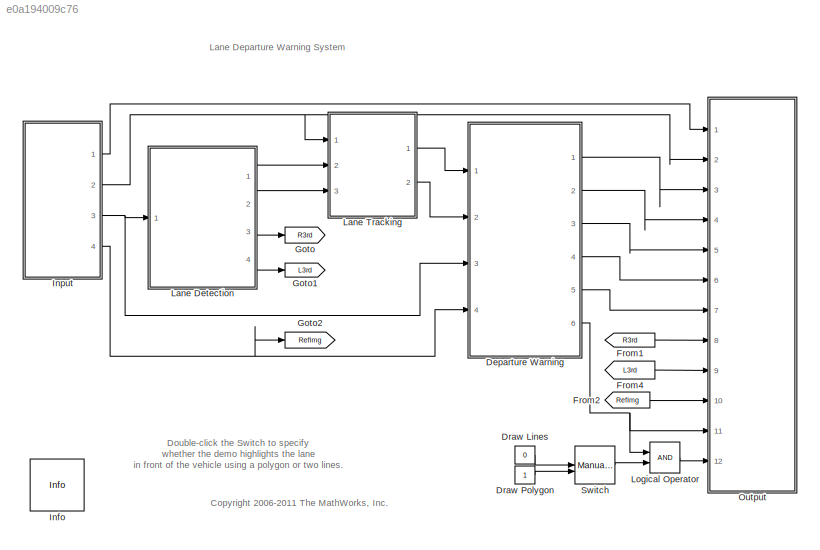
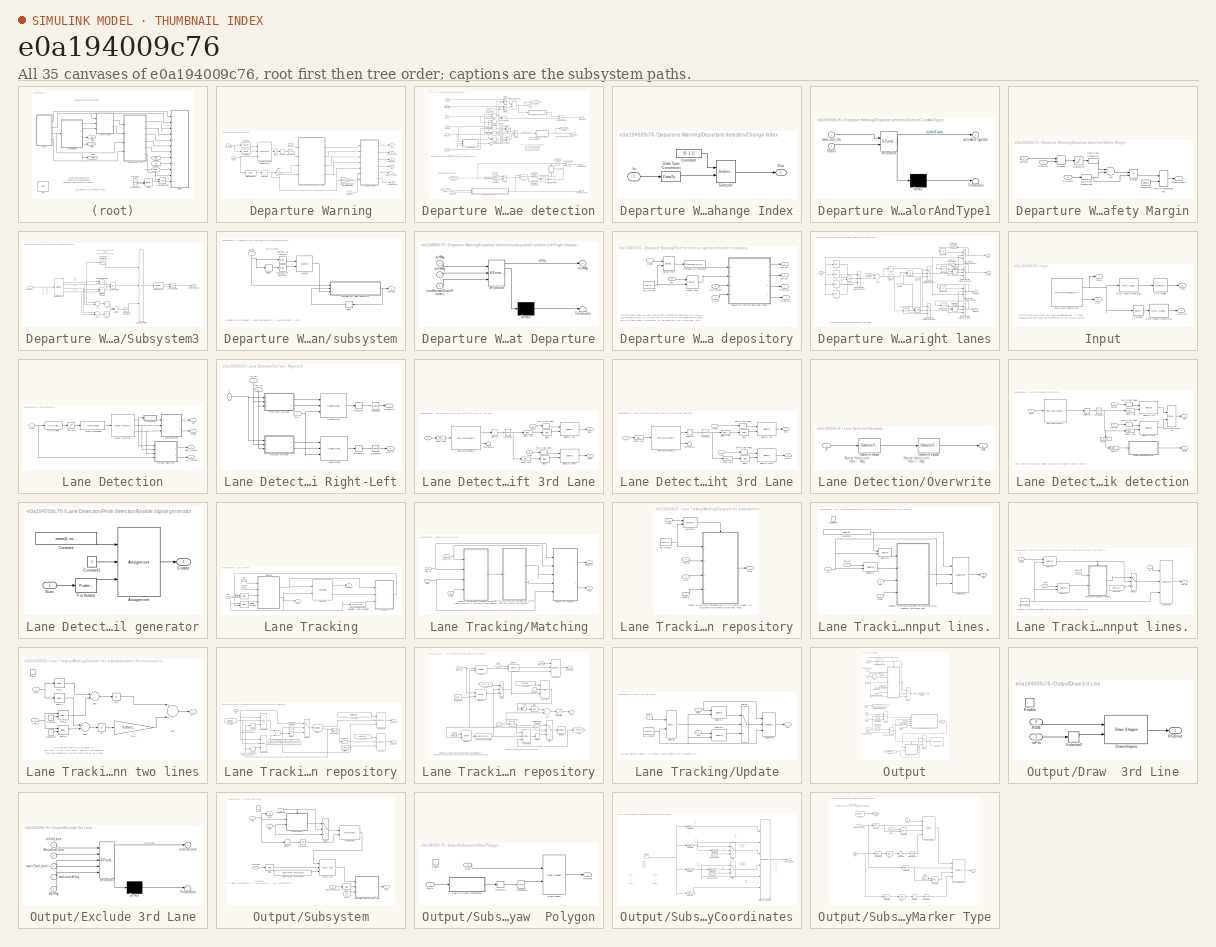
[diagram: thumbnail index - all 35 canvases of the model, root first then tree order]
MODEL slx_e0a194009c76
KIND model
CONFIG AbsTol = auto
CONFIG EnableMultiTasking = on
CONFIG FixedStep = auto
CONFIG MaxStep = auto
CONFIG MinStep = auto
CONFIG RelTol = 1e-3
CONFIG SampleTimeConstraint = Unconstrained
CONFIG Solver = FixedStepDiscrete
CONFIG SolverName = FixedStepDiscrete
CONFIG StartTime = 0.0
CONFIG StopTime = inf
WORKSPACE source: MATLAB code (in-file)
WORKSPACE imgSize = [240 360]
WORKSPACE numRows = floor(imgSize(1)/2)
WORKSPACE numCols = imgSize(2)
WORKSPACE factor = sqrt(sum(imgSize.^2)) / sqrt(sum([240 360].^2))
WORKSPACE startIdxRho_R = floor(factor * 414)
WORKSPACE NumRhos_R = floor(factor * 11)
WORKSPACE startIdxTheta_R = 0
WORKSPACE NumThetas_R = 21
WORKSPACE neighborhood_R = [min(7,NumRhos_R), min(7,NumThetas_R)]
WORKSPACE startIdxRho_L = floor(factor * 379)
WORKSPACE NumRhos_L = floor(factor * 36)
WORKSPACE startIdxTheta_L = 145
WORKSPACE NumThetas_L = 21
WORKSPACE neighborhood_L = [min(7,NumRhos_L), min(7,NumThetas_L)]
WORKSPACE expLaneNum = 2
WORKSPACE maxLaneNum = 20
WORKSPACE angleNum = 180
WORKSPACE trackThreshold = 75
WORKSPACE frameFound = 5
WORKSPACE frameLost = 20
WORKSPACE neighborhood = [301, 81]
WORKSPACE thrWarn = 0.4
WORKSPACE distanceMetricWeight = 200
WORKSPACE code: load viprumbling.mat;
BLOCK [SubSystem] Departure Warning
  Ports = [4, 6]
  RequestExecContextInheritance = off
BLOCK [Bias] Departure Warning/Bias1
  Bias = -1
  SaturateOnIntegerOverflow = off
BLOCK [Outport] Departure Warning/ColorAndTypeIdx
  IconDisplay = Port number
  Port = 5
BLOCK [Reference] Departure Warning/Convert lines from Polar to Cartesian space  REF=visiontransforms/Hough Lines
  Ports = [3, 1]
  SourceBlock = visiontransforms/Hough Lines
  SourceProductBaseCode = VP
  SourceProductName = Computer Vision System Toolbox
  SourceType = Hough Lines
BLOCK [Inport] Departure Warning/Count
  IconDisplay = Port number
  Port = 2
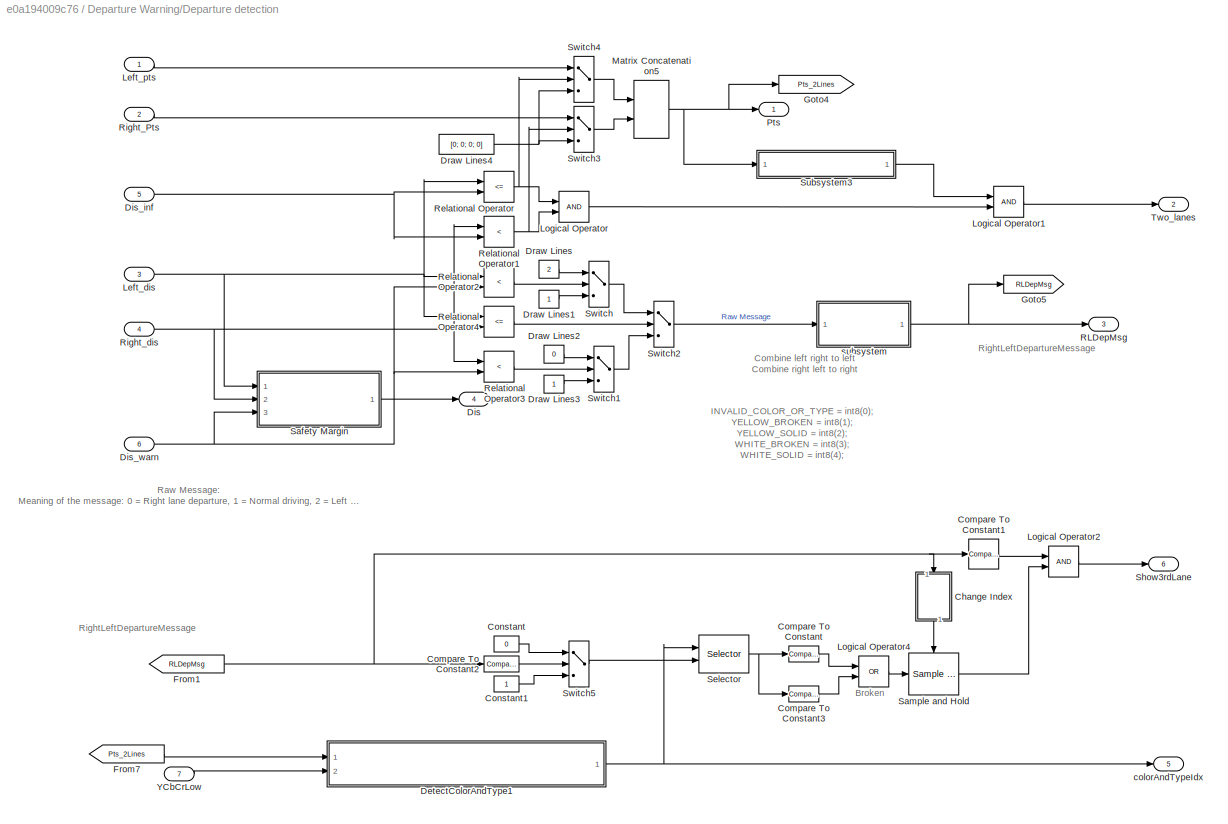
BLOCK [SubSystem] Departure Warning/Departure detection
  Ports = [7, 6]
  RequestExecContextInheritance = off
BLOCK [SubSystem] Departure Warning/Departure detection/Change Index
  Ports = [1, 1]
  RequestExecContextInheritance = off
BLOCK [Constant] Departure Warning/Departure detection/Change Index/Constant
  OutDataTypeStr = int32
  Value = [0 -1 1]
  VectorParams1D = off
BLOCK [DataTypeConversion] Departure Warning/Departure detection/Change Index/Data Type Conversion
  OutDataTypeStr = int32
BLOCK [Inport] Departure Warning/Departure detection/Change Index/In
  IconDisplay = Port number
BLOCK [Outport] Departure Warning/Departure detection/Change Index/Out
  IconDisplay = Port number
BLOCK [Selector] Departure Warning/Departure detection/Change Index/Selector
  IndexMode = Zero-based
  IndexOptions = Index vector (port)
  Indices = [1 3]
  InputPortWidth = 3
  OutputSizes = 1
  Ports = [2, 1]
BLOCK [Reference] Departure Warning/Departure detection/Compare To Constant  REF=simulink/Logic and Bit
Operations/Compare
To Constant
  Ports = [1, 1]
  SourceBlock = simulink/Logic and Bit\nOperations/Compare\nTo Constant
  SourceProductBaseCode = SL
  SourceProductName = Simulink
  SourceType = Compare To Constant
BLOCK [Reference] Departure Warning/Departure detection/Compare To Constant1  REF=simulink/Logic and Bit
Operations/Compare
To Constant
  Ports = [1, 1]
  SourceBlock = simulink/Logic and Bit\nOperations/Compare\nTo Constant
  SourceProductBaseCode = SL
  SourceProductName = Simulink
  SourceType = Compare To Constant
BLOCK [Reference] Departure Warning/Departure detection/Compare To Constant2  REF=simulink/Logic and Bit
Operations/Compare
To Constant
  Ports = [1, 1]
  SourceBlock = simulink/Logic and Bit\nOperations/Compare\nTo Constant
  SourceProductBaseCode = SL
  SourceProductName = Simulink
  SourceType = Compare To Constant
BLOCK [Reference] Departure Warning/Departure detection/Compare To Constant3  REF=simulink/Logic and Bit
Operations/Compare
To Constant
  Ports = [1, 1]
  SourceBlock = simulink/Logic and Bit\nOperations/Compare\nTo Constant
  SourceProductBaseCode = SL
  SourceProductName = Simulink
  SourceType = Compare To Constant
BLOCK [Constant] Departure Warning/Departure detection/Constant
  OutDataTypeStr = int8
  Value = 0
  VectorParams1D = off
BLOCK [Constant] Departure Warning/Departure detection/Constant1
  OutDataTypeStr = int8
  VectorParams1D = off
BLOCK [SubSystem] Departure Warning/Departure detection/DetectColorAndType1
  ErrorFcn = Stateflow.Translate.translate
  PermitHierarchicalResolution = ExplicitOnly
  Ports = [2, 1]
  RequestExecContextInheritance = off
  SFBlockType = MATLAB Function
  TreatAsAtomicUnit = on
BLOCK [Demux] Departure Warning/Departure detection/DetectColorAndType1/ Demux 
  Outputs = 1
  Ports = [1, 1]
BLOCK [S-Function] Departure Warning/Departure detection/DetectColorAndType1/ SFunction 
  EnableBusSupport = off
  FunctionName = sf_sfun
  PortCounts = [2 2]
  Ports = [2, 2]
  SFcnIsStateOwnerBlock = off
  SFunctionDeploymentMode = off
  Tag = Stateflow S-Function lane_departure_warning_system 4
BLOCK [Terminator] Departure Warning/Departure detection/DetectColorAndType1/ Terminator 
BLOCK [Inport] Departure Warning/Departure detection/DetectColorAndType1/YCbCr
  IconDisplay = Port number
  Port = 2
BLOCK [Outport] Departure Warning/Departure detection/DetectColorAndType1/colorAndTypeIdx
  IconDisplay = Port number
BLOCK [Inport] Departure Warning/Departure detection/DetectColorAndType1/twoLines_0b
  IconDisplay = Port number
BLOCK [Outport] Departure Warning/Departure detection/Dis
  IconDisplay = Port number
  Port = 4
BLOCK [Inport] Departure Warning/Departure detection/Dis_inf
  IconDisplay = Port number
  Port = 5
BLOCK [Inport] Departure Warning/Departure detection/Dis_warn
  IconDisplay = Port number
  Port = 6
BLOCK [Constant] Departure Warning/Departure detection/Draw Lines
  OutDataTypeStr = int8
  SampleTime = -1
  Value = 2
  VectorParams1D = off
BLOCK [Constant] Departure Warning/Departure detection/Draw Lines1
  OutDataTypeStr = int8
  SampleTime = -1
  VectorParams1D = off
BLOCK [Constant] Departure Warning/Departure detection/Draw Lines2
  OutDataTypeStr = int8
  SampleTime = -1
  Value = 0
  VectorParams1D = off
BLOCK [Constant] Departure Warning/Departure detection/Draw Lines3
  OutDataTypeStr = int8
  SampleTime = -1
  VectorParams1D = off
BLOCK [Constant] Departure Warning/Departure detection/Draw Lines4
  OutDataTypeStr = int32
  SampleTime = -1
  Value = [0; 0; 0; 0]
  VectorParams1D = off
BLOCK [From] Departure Warning/Departure detection/From1
  GotoTag = RLDepMsg
BLOCK [From] Departure Warning/Departure detection/From7
  GotoTag = Pts_2Lines
BLOCK [Goto] Departure Warning/Departure detection/Goto4
  GotoTag = Pts_2Lines
BLOCK [Goto] Departure Warning/Departure detection/Goto5
  GotoTag = RLDepMsg
BLOCK [Inport] Departure Warning/Departure detection/Left_dis
  IconDisplay = Port number
  Port = 3
BLOCK [Inport] Departure Warning/Departure detection/Left_pts
  IconDisplay = Port number
BLOCK [Logic] Departure Warning/Departure detection/Logical Operator
  AllPortsSameDT = off
  OutDataTypeStr = boolean
  Ports = [2, 1]
BLOCK [Logic] Departure Warning/Departure detection/Logical Operator1
  AllPortsSameDT = off
  OutDataTypeStr = boolean
  Ports = [2, 1]
BLOCK [Logic] Departure Warning/Departure detection/Logical Operator2
  AllPortsSameDT = off
  OutDataTypeStr = boolean
  Ports = [2, 1]
BLOCK [Logic] Departure Warning/Departure detection/Logical Operator4
  AllPortsSameDT = off
  Operator = OR
  OutDataTypeStr = boolean
  Ports = [2, 1]
BLOCK [Concatenate] Departure Warning/Departure detection/Matrix Concatenation5
  ConcatenateDimension = 2
  Mode = Multidimensional array
  Ports = [2, 1]
BLOCK [Outport] Departure Warning/Departure detection/Pts
  IconDisplay = Port number
BLOCK [Outport] Departure Warning/Departure detection/RLDepMsg
  IconDisplay = Port number
  Port = 3
BLOCK [RelationalOperator] Departure Warning/Departure detection/Relational Operator
  InputSameDT = off
  Operator = <=
  OutDataTypeStr = boolean
  Ports = [2, 1]
  ZeroCross = off
BLOCK [RelationalOperator] Departure Warning/Departure detection/Relational Operator1
  InputSameDT = off
  Operator = <
  OutDataTypeStr = boolean
  Ports = [2, 1]
  ZeroCross = off
BLOCK [RelationalOperator] Departure Warning/Departure detection/Relational Operator2
  InputSameDT = off
  Operator = <
  OutDataTypeStr = boolean
  Ports = [2, 1]
  ZeroCross = off
BLOCK [RelationalOperator] Departure Warning/Departure detection/Relational Operator3
  InputSameDT = off
  Operator = <
  OutDataTypeStr = boolean
  Ports = [2, 1]
  ZeroCross = off
BLOCK [RelationalOperator] Departure Warning/Departure detection/Relational Operator4
  InputSameDT = off
  Operator = <=
  OutDataTypeStr = boolean
  Ports = [2, 1]
  ZeroCross = off
BLOCK [Inport] Departure Warning/Departure detection/Right_Pts
  IconDisplay = Port number
  Port = 2
BLOCK [Inport] Departure Warning/Departure detection/Right_dis
  IconDisplay = Port number
  Port = 4
BLOCK [SubSystem] Departure Warning/Departure detection/Safety Margin
  Ports = [3, 1]
  RequestExecContextInheritance = off
BLOCK [Sum] Departure Warning/Departure detection/Safety Margin/Add
  InputSameDT = off
  Inputs = +-
  OutDataTypeStr = Inherit: Inherit via internal rule
  Ports = [2, 1]
  SaturateOnIntegerOverflow = off
BLOCK [DataTypeConversion] Departure Warning/Departure detection/Safety Margin/Data Type Conversion
  OutDataTypeStr = single
BLOCK [DataTypeConversion] Departure Warning/Departure detection/Safety Margin/Data Type Conversion1
  OutDataTypeStr = single
BLOCK [Inport] Departure Warning/Departure detection/Safety Margin/Dis_warn
  IconDisplay = Port number
  Port = 3
BLOCK [Product] Departure Warning/Departure detection/Safety Margin/Divide
  InputSameDT = off
  Inputs = */
  OutDataTypeStr = Inherit: Inherit via internal rule
  Ports = [2, 1]
  RndMeth = Floor
  SaturateOnIntegerOverflow = off
BLOCK [Inport] Departure Warning/Departure detection/Safety Margin/Left_dis
  IconDisplay = Port number
BLOCK [Concatenate] Departure Warning/Departure detection/Safety Margin/Matrix Concatenation2
  Ports = [2, 1]
BLOCK [MinMax] Departure Warning/Departure detection/Safety Margin/MinMax
  InputSameDT = off
  Inputs = 2
  Ports = [2, 1]
  SaturateOnIntegerOverflow = off
BLOCK [Inport] Departure Warning/Departure detection/Safety Margin/Right_dis
  IconDisplay = Port number
  Port = 2
BLOCK [Outport] Departure Warning/Departure detection/Safety Margin/SafetyMargin
  IconDisplay = Port number
BLOCK [Saturate] Departure Warning/Departure detection/Safety Margin/Saturation
  InputPortMap = u0
  LowerLimit = 0
  Ports = [1, 1]
  UpperLimit = numCols/2
BLOCK [Constant] Departure Warning/Departure detection/Safety Margin/min_safety
  Value = single(0)
  VectorParams1D = off
BLOCK [Reference] Departure Warning/Departure detection/Sample and Hold  REF=dspsigops/Sample
and Hold
  Ports = [1, 1, 0, 1]
  SourceBlock = dspsigops/Sample\nand Hold
  SourceProductBaseCode = DS
  SourceProductName = DSP System Toolbox
  SourceType = Sample and Hold
BLOCK [Selector] Departure Warning/Departure detection/Selector
  IndexMode = Zero-based
  IndexOptions = Index vector (port)
  Indices = [1 3]
  InputPortWidth = 2
  OutputSizes = 1
  Ports = [2, 1]
BLOCK [Outport] Departure Warning/Departure detection/Show3rdLane
  IconDisplay = Port number
  Port = 6
BLOCK [SubSystem] Departure Warning/Departure detection/Subsystem3
  Ports = [1, 1]
  RequestExecContextInheritance = off
BLOCK [Abs] Departure Warning/Departure detection/Subsystem3/Abs
  SaturateOnIntegerOverflow = off
BLOCK [Abs] Departure Warning/Departure detection/Subsystem3/Abs1
  SaturateOnIntegerOverflow = off
BLOCK [Sum] Departure Warning/Departure detection/Subsystem3/Add
  InputSameDT = off
  Inputs = +-
  OutDataTypeStr = Inherit: Inherit via internal rule
  Ports = [2, 1]
  SaturateOnIntegerOverflow = off
BLOCK [Sum] Departure Warning/Departure detection/Subsystem3/Add1
  InputSameDT = off
  Inputs = +-
  OutDataTypeStr = Inherit: Inherit via internal rule
  Ports = [2, 1]
  SaturateOnIntegerOverflow = off
BLOCK [Sum] Departure Warning/Departure detection/Subsystem3/Add2
  InputSameDT = off
  OutDataTypeStr = Inherit: Inherit via internal rule
  Ports = [2, 1]
  SaturateOnIntegerOverflow = off
BLOCK [Reference] Departure Warning/Departure detection/Subsystem3/Compare To Constant1  REF=simulink/Logic and Bit
Operations/Compare
To Constant
  Ports = [1, 1]
  SourceBlock = simulink/Logic and Bit\nOperations/Compare\nTo Constant
  SourceProductBaseCode = SL
  SourceProductName = Simulink
  SourceType = Compare To Constant
BLOCK [Reference] Departure Warning/Departure detection/Subsystem3/Compare To Constant10  REF=simulink/Logic and Bit
Operations/Compare
To Constant
  Ports = [1, 1]
  SourceBlock = simulink/Logic and Bit\nOperations/Compare\nTo Constant
  SourceProductBaseCode = SL
  SourceProductName = Simulink
  SourceType = Compare To Constant
BLOCK [Logic] Departure Warning/Departure detection/Subsystem3/Logical Operator
  AllPortsSameDT = off
  OutDataTypeStr = boolean
  Ports = [2, 1]
BLOCK [Logic] Departure Warning/Departure detection/Subsystem3/Logical Operator7
  AllPortsSameDT = off
  Inputs = 3
  OutDataTypeStr = boolean
  Ports = [3, 1]
BLOCK [Logic] Departure Warning/Departure detection/Subsystem3/Logical Operator8
  AllPortsSameDT = off
  Operator = OR
  OutDataTypeStr = boolean
  Ports = [2, 1]
BLOCK [Reference] Departure Warning/Departure detection/Subsystem3/Multiport Selector  REF=dspindex/Multiport
Selector
  Ports = [1, 4]
  SourceBlock = dspindex/Multiport\nSelector
  SourceProductBaseCode = DS
  SourceProductName = DSP System Toolbox
  SourceType = Multiport Selector
BLOCK [Reference] Departure Warning/Departure detection/Subsystem3/Multiport Selector1  REF=dspindex/Multiport
Selector
  Ports = [1, 2]
  SourceBlock = dspindex/Multiport\nSelector
  SourceProductBaseCode = DS
  SourceProductName = DSP System Toolbox
  SourceType = Multiport Selector
BLOCK [RelationalOperator] Departure Warning/Departure detection/Subsystem3/Relational Operator
  InputSameDT = off
  Operator = ~=
  OutDataTypeStr = boolean
  Ports = [2, 1]
BLOCK [RelationalOperator] Departure Warning/Departure detection/Subsystem3/Relational Operator1
  InputSameDT = off
  Operator = ~=
  OutDataTypeStr = boolean
  Ports = [2, 1]
BLOCK [Outport] Departure Warning/Departure detection/Subsystem3/isBothValidLane
  IconDisplay = Port number
BLOCK [Inport] Departure Warning/Departure detection/Subsystem3/twoLanes
  IconDisplay = Port number
BLOCK [Switch] Departure Warning/Departure detection/Switch
  Criteria = u2 ~= 0
  InputSameDT = off
  SaturateOnIntegerOverflow = off
BLOCK [Switch] Departure Warning/Departure detection/Switch1
  Criteria = u2 ~= 0
  InputSameDT = off
  SaturateOnIntegerOverflow = off
BLOCK [Switch] Departure Warning/Departure detection/Switch2
  Criteria = u2 ~= 0
  InputSameDT = off
  SaturateOnIntegerOverflow = off
BLOCK [Switch] Departure Warning/Departure detection/Switch3
  Criteria = u2 ~= 0
  InputSameDT = off
  SaturateOnIntegerOverflow = off
  ZeroCross = off
BLOCK [Switch] Departure Warning/Departure detection/Switch4
  Criteria = u2 ~= 0
  InputSameDT = off
  SaturateOnIntegerOverflow = off
  ZeroCross = off
BLOCK [Switch] Departure Warning/Departure detection/Switch5
  Criteria = u2 ~= 0
  InputSameDT = off
  SaturateOnIntegerOverflow = off
  ZeroCross = off
BLOCK [Outport] Departure Warning/Departure detection/Two_lanes
  IconDisplay = Port number
  Port = 2
BLOCK [Inport] Departure Warning/Departure detection/YCbCrLow
  IconDisplay = Port number
  Port = 7
BLOCK [Outport] Departure Warning/Departure detection/colorAndTypeIdx
  IconDisplay = Port number
  Port = 5
BLOCK [SubSystem] Departure Warning/Departure detection/subsystem
  Ports = [1, 1]
  RequestExecContextInheritance = off
BLOCK [SubSystem] Departure Warning/Departure detection/subsystem/Combine Left Right Departure
  ErrorFcn = Stateflow.Translate.translate
  PermitHierarchicalResolution = ExplicitOnly
  Ports = [3, 1]
  RequestExecContextInheritance = off
  SFBlockType = MATLAB Function
  TreatAsAtomicUnit = on
BLOCK [Demux] Departure Warning/Departure detection/subsystem/Combine Left Right Departure/ Demux 
  Outputs = 1
  Ports = [1, 1]
BLOCK [S-Function] Departure Warning/Departure detection/subsystem/Combine Left Right Departure/ SFunction 
  EnableBusSupport = off
  FunctionName = sf_sfun
  PortCounts = [3 2]
  Ports = [3, 2]
  SFcnIsStateOwnerBlock = off
  SFunctionDeploymentMode = off
  Tag = Stateflow S-Function lane_departure_warning_system 2
BLOCK [Terminator] Departure Warning/Departure detection/subsystem/Combine Left Right Departure/ Terminator 
BLOCK [Inport] Departure Warning/Departure detection/subsystem/Combine Left Right Departure/curMsg
  IconDisplay = Port number
BLOCK [Inport] Departure Warning/Departure detection/subsystem/Combine Left Right Departure/numNormalDrivenFrames
  IconDisplay = Port number
  Port = 3
BLOCK [Outport] Departure Warning/Departure detection/subsystem/Combine Left Right Departure/outMsg
  IconDisplay = Port number
BLOCK [Inport] Departure Warning/Departure detection/subsystem/Combine Left Right Departure/prevMsg
  IconDisplay = Port number
  Port = 2
BLOCK [Reference] Departure Warning/Departure detection/subsystem/Compare To Constant  REF=simulink/Logic and Bit
Operations/Compare
To Constant
  Ports = [1, 1]
  SourceBlock = simulink/Logic and Bit\nOperations/Compare\nTo Constant
  SourceProductBaseCode = SL
  SourceProductName = Simulink
  SourceType = Compare To Constant
BLOCK [Reference] Departure Warning/Departure detection/subsystem/Compare To Constant1  REF=simulink/Logic and Bit
Operations/Compare
To Constant
  Ports = [1, 1]
  SourceBlock = simulink/Logic and Bit\nOperations/Compare\nTo Constant
  SourceProductBaseCode = SL
  SourceProductName = Simulink
  SourceType = Compare To Constant
BLOCK [Reference] Departure Warning/Departure detection/subsystem/Counter  REF=dspswit3/Counter
  Ports = [2, 1]
  SourceBlock = dspswit3/Counter
  SourceProductBaseCode = DS
  SourceProductName = DSP System Toolbox
  SourceType = Counter
BLOCK [Delay] Departure Warning/Departure detection/subsystem/Delay
  DelayLength = 1
  InitialCondition = int8(-1)
  InputPortMap = u0
  Ports = [1, 1]
  UseCircularBuffer = on
  UserDataPersistent = on
BLOCK [Delay] Departure Warning/Departure detection/subsystem/Delay1
  DelayLength = 1
  InitialCondition = int8(-1)
  InputPortMap = u0
  Ports = [1, 1]
  UseCircularBuffer = on
  UserDataPersistent = on
BLOCK [Inport] Departure Warning/Departure detection/subsystem/inMsg
  IconDisplay = Port number
BLOCK [Outport] Departure Warning/Departure detection/subsystem/outMsg
  IconDisplay = Port number
BLOCK [Outport] Departure Warning/Dis
  IconDisplay = Port number
  Port = 3
BLOCK [Gain] Departure Warning/Distance threshold for departure warning
  Gain = thrWarn
  ParamDataTypeStr = Inherit: Inherit via internal rule
  SaturateOnIntegerOverflow = off
BLOCK [SubSystem] Departure Warning/Find the left and right lanes from the depository
  Ports = [4, 4]
  RequestExecContextInheritance = off
  TreatAsAtomicUnit = on
BLOCK [Reference] Departure Warning/Find the left and right lanes from the depository/Compare To Constant2  REF=simulink/Logic and Bit
Operations/Compare
To Constant
  Ports = [1, 1]
  SourceBlock = simulink/Logic and Bit\nOperations/Compare\nTo Constant
  SourceProductBaseCode = SL
  SourceProductName = Simulink
  SourceType = Compare To Constant
BLOCK [Inport] Departure Warning/Find the left and right lanes from the depository/Count
  IconDisplay = Port number
BLOCK [Inport] Departure Warning/Find the left and right lanes from the depository/Dis_inf
  IconDisplay = Port number
  Port = 4
BLOCK [ForIterator] Departure Warning/Find the left and right lanes from the depository/For Iterator
  IterationLimit = maxLaneNum
  Ports = [0, 1]
  ResetStates = reset
BLOCK [Inport] Departure Warning/Find the left and right lanes from the depository/Half_width
  IconDisplay = Port number
  Port = 3
BLOCK [Outport] Departure Warning/Find the left and right lanes from the depository/Left_dis
  IconDisplay = Port number
  Port = 3
BLOCK [Outport] Departure Warning/Find the left and right lanes from the depository/Left_pts
  IconDisplay = Port number
BLOCK [Inport] Departure Warning/Find the left and right lanes from the depository/Pts
  IconDisplay = Port number
  Port = 2
BLOCK [Outport] Departure Warning/Find the left and right lanes from the depository/Right_dis
  IconDisplay = Port number
  Port = 4
BLOCK [Outport] Departure Warning/Find the left and right lanes from the depository/Right_pts
  IconDisplay = Port number
  Port = 2
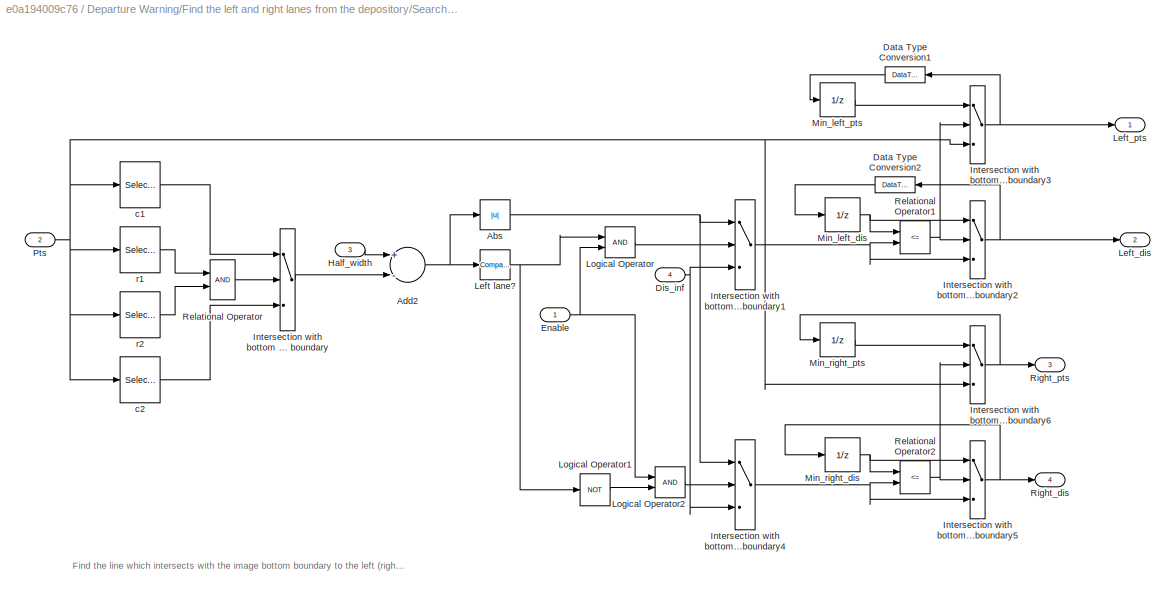
BLOCK [SubSystem] Departure Warning/Find the left and right lanes from the depository/Search for the left and right lanes
  Ports = [4, 4]
  RequestExecContextInheritance = off
BLOCK [Abs] Departure Warning/Find the left and right lanes from the depository/Search for the left and right lanes/Abs
  SaturateOnIntegerOverflow = off
BLOCK [Sum] Departure Warning/Find the left and right lanes from the depository/Search for the left and right lanes/Add2
  InputSameDT = off
  Inputs = +-
  OutDataTypeStr = Inherit: Inherit via internal rule
  Ports = [2, 1]
  SaturateOnIntegerOverflow = off
BLOCK [DataTypeConversion] Departure Warning/Find the left and right lanes from the depository/Search for the left and right lanes/Data Type Conversion1
  OutDataTypeStr = int32
BLOCK [DataTypeConversion] Departure Warning/Find the left and right lanes from the depository/Search for the left and right lanes/Data Type Conversion2
  OutDataTypeStr = int32
BLOCK [Inport] Departure Warning/Find the left and right lanes from the depository/Search for the left and right lanes/Dis_inf
  IconDisplay = Port number
  Port = 4
BLOCK [Inport] Departure Warning/Find the left and right lanes from the depository/Search for the left and right lanes/Enable
  IconDisplay = Port number
BLOCK [Inport] Departure Warning/Find the left and right lanes from the depository/Search for the left and right lanes/Half_width
  IconDisplay = Port number
  Port = 3
BLOCK [Switch] Departure Warning/Find the left and right lanes from the depository/Search for the left and right lanes/Intersection with bottom image boundary
  Criteria = u2 ~= 0
  InputSameDT = off
  SaturateOnIntegerOverflow = off
  ZeroCross = off
BLOCK [Switch] Departure Warning/Find the left and right lanes from the depository/Search for the left and right lanes/Intersection with bottom image boundary1
  Criteria = u2 ~= 0
  InputSameDT = off
  SaturateOnIntegerOverflow = off
  ZeroCross = off
BLOCK [Switch] Departure Warning/Find the left and right lanes from the depository/Search for the left and right lanes/Intersection with bottom image boundary2
  Criteria = u2 ~= 0
  InputSameDT = off
  SaturateOnIntegerOverflow = off
  ZeroCross = off
BLOCK [Switch] Departure Warning/Find the left and right lanes from the depository/Search for the left and right lanes/Intersection with bottom image boundary3
  Criteria = u2 ~= 0
  InputSameDT = off
  SaturateOnIntegerOverflow = off
  ZeroCross = off
BLOCK [Switch] Departure Warning/Find the left and right lanes from the depository/Search for the left and right lanes/Intersection with bottom image boundary4
  Criteria = u2 ~= 0
  InputSameDT = off
  SaturateOnIntegerOverflow = off
  ZeroCross = off
BLOCK [Switch] Departure Warning/Find the left and right lanes from the depository/Search for the left and right lanes/Intersection with bottom image boundary5
  Criteria = u2 ~= 0
  InputSameDT = off
  SaturateOnIntegerOverflow = off
  ZeroCross = off
BLOCK [Switch] Departure Warning/Find the left and right lanes from the depository/Search for the left and right lanes/Intersection with bottom image boundary6
  Criteria = u2 ~= 0
  InputSameDT = off
  SaturateOnIntegerOverflow = off
  ZeroCross = off
BLOCK [Reference] Departure Warning/Find the left and right lanes from the depository/Search for the left and right lanes/Left lane?  REF=simulink/Logic and Bit
Operations/Compare
To Zero
  Ports = [1, 1]
  SourceBlock = simulink/Logic and Bit\nOperations/Compare\nTo Zero
  SourceProductBaseCode = SL
  SourceProductName = Simulink
  SourceType = Compare To Zero
BLOCK [Outport] Departure Warning/Find the left and right lanes from the depository/Search for the left and right lanes/Left_dis
  IconDisplay = Port number
  Port = 2
BLOCK [Outport] Departure Warning/Find the left and right lanes from the depository/Search for the left and right lanes/Left_pts
  IconDisplay = Port number
BLOCK [Logic] Departure Warning/Find the left and right lanes from the depository/Search for the left and right lanes/Logical Operator
  AllPortsSameDT = off
  OutDataTypeStr = boolean
  Ports = [2, 1]
BLOCK [Logic] Departure Warning/Find the left and right lanes from the depository/Search for the left and right lanes/Logical Operator1
  AllPortsSameDT = off
  Operator = NOT
  OutDataTypeStr = boolean
  Ports = [1, 1]
BLOCK [Logic] Departure Warning/Find the left and right lanes from the depository/Search for the left and right lanes/Logical Operator2
  AllPortsSameDT = off
  OutDataTypeStr = boolean
  Ports = [2, 1]
BLOCK [UnitDelay] Departure Warning/Find the left and right lanes from the depository/Search for the left and right lanes/Min_left_dis
  InitialCondition = single(intmax('int16'))
  SampleTime = -1
BLOCK [UnitDelay] Departure Warning/Find the left and right lanes from the depository/Search for the left and right lanes/Min_left_pts
  InitialCondition = [0; 0; 0; 0]
  SampleTime = -1
BLOCK [UnitDelay] Departure Warning/Find the left and right lanes from the depository/Search for the left and right lanes/Min_right_dis
  InitialCondition = single(intmax('int16'))
  SampleTime = -1
BLOCK [UnitDelay] Departure Warning/Find the left and right lanes from the depository/Search for the left and right lanes/Min_right_pts
  InitialCondition = [0; 0; 0; 0]
  SampleTime = -1
BLOCK [Inport] Departure Warning/Find the left and right lanes from the depository/Search for the left and right lanes/Pts
  IconDisplay = Port number
  Port = 2
BLOCK [RelationalOperator] Departure Warning/Find the left and right lanes from the depository/Search for the left and right lanes/Relational Operator
  InputSameDT = off
  OutDataTypeStr = boolean
  Ports = [2, 1]
  ZeroCross = off
BLOCK [RelationalOperator] Departure Warning/Find the left and right lanes from the depository/Search for the left and right lanes/Relational Operator1
  InputSameDT = off
  Operator = <=
  OutDataTypeStr = boolean
  Ports = [2, 1]
BLOCK [RelationalOperator] Departure Warning/Find the left and right lanes from the depository/Search for the left and right lanes/Relational Operator2
  InputSameDT = off
  Operator = <=
  OutDataTypeStr = boolean
  Ports = [2, 1]
BLOCK [Outport] Departure Warning/Find the left and right lanes from the depository/Search for the left and right lanes/Right_dis
  IconDisplay = Port number
  Port = 4
BLOCK [Outport] Departure Warning/Find the left and right lanes from the depository/Search for the left and right lanes/Right_pts
  IconDisplay = Port number
  Port = 3
BLOCK [Selector] Departure Warning/Find the left and right lanes from the depository/Search for the left and right lanes/c1
  IndexOptions = Index vector (dialog)
  Indices = 2
  InputPortWidth = 4
  OutputSizes = 1
  Ports = [1, 1]
BLOCK [Selector] Departure Warning/Find the left and right lanes from the depository/Search for the left and right lanes/c2
  IndexOptions = Index vector (dialog)
  Indices = 4
  InputPortWidth = 4
  OutputSizes = 1
  Ports = [1, 1]
BLOCK [Selector] Departure Warning/Find the left and right lanes from the depository/Search for the left and right lanes/r1
  IndexOptions = Index vector (dialog)
  Indices = 1
  InputPortWidth = 4
  OutputSizes = 1
  Ports = [1, 1]
BLOCK [Selector] Departure Warning/Find the left and right lanes from the depository/Search for the left and right lanes/r2
  IndexOptions = Index vector (dialog)
  Indices = 3
  InputPortWidth = 4
  OutputSizes = 1
  Ports = [1, 1]
BLOCK [Selector] Departure Warning/Find the left and right lanes from the depository/select rho1
  IndexOptions = Select all,Index vector (port)
  Indices = -1,-1
  InputPortWidth = maxLaneNum
  NumberOfDimensions = 2
  OutputSizes = 1
  Ports = [2, 1]
BLOCK [Selector] Departure Warning/Find the left and right lanes from the depository/select rho5
  IndexOptions = Select all,Index vector (port)
  Indices = -1,-1
  InputPortWidth = maxLaneNum
  NumberOfDimensions = 2
  OutputSizes = 1
  Ports = [2, 1]
BLOCK [Inport] Departure Warning/ILow
  IconDisplay = Port number
  Port = 3
BLOCK [Outport] Departure Warning/Message
  IconDisplay = Port number
  Port = 2
BLOCK [Outport] Departure Warning/Pts
  IconDisplay = Port number
BLOCK [Inport] Departure Warning/Repository
  IconDisplay = Port number
BLOCK [Selector] Departure Warning/Selector1
  IndexOptions = Select all,Index vector (dialog)
  Indices = [2 1],[2 1 4 3]
  InputPortWidth = 3
  NumberOfDimensions = 2
  OutputSizes = 1,1
  Ports = [1, 1]
BLOCK [Outport] Departure Warning/Show3rdLane
  IconDisplay = Port number
  Port = 4
BLOCK [Math] Departure Warning/Transpose
  Operator = transpose
  Ports = [1, 1]
BLOCK [Outport] Departure Warning/TwoLanesFlag
  IconDisplay = Port number
  Port = 6
BLOCK [Probe] Departure Warning/Width of the image
  Ports = [1, 1]
  ProbeComplexSignal = off
  ProbeDimensionsDataType = int32
  ProbeSampleTime = off
  ProbeSignalDimensions = on
  ProbeWidth = off
BLOCK [Inport] Departure Warning/YCbCrLow
  IconDisplay = Port number
  Port = 4
BLOCK [Gain] Departure Warning/rho_1
  Gain = 0.5
  ParamDataTypeStr = Inherit: Inherit via internal rule
  SaturateOnIntegerOverflow = off
BLOCK [Selector] Departure Warning/select rho1
  IndexOptions = Index vector (dialog)
  Indices = 2
  InputPortWidth = 2
  OutputSizes = 1
  Ports = [1, 1]
BLOCK [Selector] Departure Warning/select rho2
  IndexOptions = Index vector (dialog),Select all
  Indices = 1,-1
  InputPortWidth = maxLaneNum
  NumberOfDimensions = 2
  OutputSizes = 1
  Ports = [1, 1]
BLOCK [Selector] Departure Warning/select rho5
  IndexOptions = Index vector (dialog),Select all
  Indices = 2,-1
  InputPortWidth = maxLaneNum
  NumberOfDimensions = 2
  OutputSizes = 1
  Ports = [1, 1]
BLOCK [Constant] Draw Lines
  OutDataTypeStr = boolean
  Value = 0
  VectorParams1D = off
BLOCK [Constant] Draw Polygon
  OutDataTypeStr = boolean
  VectorParams1D = off
BLOCK [From] From1
  GotoTag = R3rd
BLOCK [From] From2
  GotoTag = RefImg
BLOCK [From] From4
  GotoTag = L3rd
BLOCK [Goto] Goto
  GotoTag = R3rd
BLOCK [Goto] Goto1
  GotoTag = L3rd
BLOCK [Goto] Goto2
  GotoTag = RefImg
BLOCK [Reference] Info  REF=vipmisc/Info
  Ports = []
  SourceBlock = vipmisc/Info
  SourceProductBaseCode = VP
  SourceProductName = Computer Vision System Toolbox
  SourceType = Info
BLOCK [SubSystem] Input
  Ports = [0, 4]
  RequestExecContextInheritance = off
BLOCK [Reference] Input/Clip image  REF=dspmtrx3/Submatrix
  Ports = [1, 1]
  SourceBlock = dspmtrx3/Submatrix
  SourceProductBaseCode = DS
  SourceProductName = DSP System Toolbox
  SourceType = Submatrix
BLOCK [Reference] Input/Color Space Conversion  REF=visionconversions/Color Space
 Conversion
  Ports = [1, 1]
  SourceBlock = visionconversions/Color Space\n Conversion
  SourceProductBaseCode = VP
  SourceProductName = Computer Vision System Toolbox
  SourceType = Color Space Conversion
BLOCK [Reference] Input/Color Space Conversion1  REF=visionconversions/Color Space
 Conversion
  Ports = [1, 1]
  SourceBlock = visionconversions/Color Space\n Conversion
  SourceProductBaseCode = VP
  SourceProductName = Computer Vision System Toolbox
  SourceType = Color Space Conversion
BLOCK [Outport] Input/EOF
  IconDisplay = Port number
  Port = 2
BLOCK [Reference] Input/From Multimedia File1  REF=dspvision/From Multimedia File
  Ports = [0, 2]
  SourceBlock = dspvision/From Multimedia File
  SourceProductBaseCode = VP
  SourceProductName = Computer Vision System Toolbox
  SourceType = From Multimedia File
BLOCK [Outport] Input/ILow
  IconDisplay = Port number
  Port = 3
BLOCK [Outport] Input/RGB
  IconDisplay = Port number
BLOCK [Selector] Input/Selector
  IndexOptions = Index vector (dialog),Select all,Select all
  Indices = (numRows+1):imgSize(1),1,2
  InputPortWidth = 3
  NumberOfDimensions = 3
  OutputSizes = 1,1,1
  Ports = [1, 1]
BLOCK [Outport] Input/YCbCrLow
  IconDisplay = Port number
  Port = 4
BLOCK [SubSystem] Lane Detection
  Ports = [1, 4]
  RequestExecContextInheritance = off
BLOCK [Reference] Lane Detection/2-D FIR Filter  REF=visionfilter/2-D FIR Filter
  Ports = [1, 1]
  SourceBlock = visionfilter/2-D FIR Filter
  SourceProductBaseCode = VP
  SourceProductName = Computer Vision System Toolbox
  SourceType = 2-D FIR Filter
BLOCK [SubSystem] Lane Detection/3rd lane: Right-Left
  Ports = [4, 2]
  RequestExecContextInheritance = off
BLOCK [SubSystem] Lane Detection/3rd lane: Right-Left/Find Left 3rd Lane
  Ports = [3, 2]
  RequestExecContextInheritance = off
BLOCK [Bias] Lane Detection/3rd lane: Right-Left/Find Left 3rd Lane/Bias2
  Bias = startIdxRho_L
  SaturateOnIntegerOverflow = off
BLOCK [Bias] Lane Detection/3rd lane: Right-Left/Find Left 3rd Lane/Bias3
  Bias = startIdxTheta_L
  SaturateOnIntegerOverflow = off
BLOCK [Reference] Lane Detection/3rd lane: Right-Left/Find Left 3rd Lane/Find Local Maxima1  REF=visionstatistics/Find Local Maxima
  Ports = [1, 2]
  SourceBlock = visionstatistics/Find Local Maxima
  SourceProductBaseCode = VP
  SourceProductName = Computer Vision System Toolbox
  SourceType = Find Local Maxima
BLOCK [Inport] Lane Detection/3rd lane: Right-Left/Find Left 3rd Lane/H
  IconDisplay = Port number
BLOCK [Outport] Lane Detection/3rd lane: Right-Left/Find Left 3rd Lane/Rho
  IconDisplay = Port number
  Port = 2
BLOCK [Selector] Lane Detection/3rd lane: Right-Left/Find Left 3rd Lane/Selector rho
  IndexOptions = Select all,Index vector (port)
  Indices = 1,2
  InputPortWidth = 3
  NumberOfDimensions = 2
  OutputSizes = 1,1
  Ports = [2, 1]
BLOCK [Selector] Lane Detection/3rd lane: Right-Left/Find Left 3rd Lane/Selector theta
  IndexOptions = Select all,Index vector (port)
  Indices = 1,2
  InputPortWidth = 3
  NumberOfDimensions = 2
  OutputSizes = 1,1
  Ports = [2, 1]
BLOCK [Selector] Lane Detection/3rd lane: Right-Left/Find Left 3rd Lane/Selector1
  IndexOptions = Select all,Index vector (dialog)
  Indices = ,[2 1]
  InputPortWidth = 3
  NumberOfDimensions = 2
  OutputSizes = 1,1
  Ports = [1, 1]
BLOCK [Terminator] Lane Detection/3rd lane: Right-Left/Find Left 3rd Lane/Terminator1
BLOCK [Outport] Lane Detection/3rd lane: Right-Left/Find Left 3rd Lane/Theta
  IconDisplay = Port number
BLOCK [Math] Lane Detection/3rd lane: Right-Left/Find Left 3rd Lane/Transpose
  Operator = transpose
  Ports = [1, 1]
BLOCK [ZeroOrderHold] Lane Detection/3rd lane: Right-Left/Find Left 3rd Lane/Zero-Order Hold3
  SampleTime = -1
BLOCK [ZeroOrderHold] Lane Detection/3rd lane: Right-Left/Find Left 3rd Lane/Zero-Order Hold4
  SampleTime = -1
BLOCK [Inport] Lane Detection/3rd lane: Right-Left/Find Left 3rd Lane/rho_list
  IconDisplay = Port number
  Port = 3
BLOCK [Selector] Lane Detection/3rd lane: Right-Left/Find Left 3rd Lane/select rho4
  IndexOptions = Index vector (dialog),Select all
  Indices = 1,-1
  InputPortWidth = 3
  NumberOfDimensions = 2
  OutputSizes = 1
  Ports = [1, 1]
BLOCK [Selector] Lane Detection/3rd lane: Right-Left/Find Left 3rd Lane/select rho5
  IndexMode = Zero-based
  IndexOptions = Index vector (dialog),Index vector (dialog)
  Indices = startIdxRho_L:(startIdxRho_L+NumRhos_L-1),startIdxTheta_L:(startIdxTheta_L+NumThetas_L-1)
  InputPortWidth = 3
  NumberOfDimensions = 2
  OutputSizes = 1
  Ports = [1, 1]
BLOCK [Selector] Lane Detection/3rd lane: Right-Left/Find Left 3rd Lane/select rho7
  IndexOptions = Index vector (dialog),Select all
  Indices = 2,-1
  InputPortWidth = 3
  NumberOfDimensions = 2
  OutputSizes = 1
  Ports = [1, 1]
BLOCK [Inport] Lane Detection/3rd lane: Right-Left/Find Left 3rd Lane/th_list
  IconDisplay = Port number
  Port = 2
BLOCK [SubSystem] Lane Detection/3rd lane: Right-Left/Find Right 3rd Lane
  Ports = [3, 2]
  RequestExecContextInheritance = off
BLOCK [Bias] Lane Detection/3rd lane: Right-Left/Find Right 3rd Lane/Bias2
  Bias = startIdxRho_R
  SaturateOnIntegerOverflow = off
BLOCK [Bias] Lane Detection/3rd lane: Right-Left/Find Right 3rd Lane/Bias3
  Bias = startIdxTheta_R
  SaturateOnIntegerOverflow = off
BLOCK [Reference] Lane Detection/3rd lane: Right-Left/Find Right 3rd Lane/Find Local Maxima1  REF=visionstatistics/Find Local Maxima
  Ports = [1, 2]
  SourceBlock = visionstatistics/Find Local Maxima
  SourceProductBaseCode = VP
  SourceProductName = Computer Vision System Toolbox
  SourceType = Find Local Maxima
BLOCK [Inport] Lane Detection/3rd lane: Right-Left/Find Right 3rd Lane/H
  IconDisplay = Port number
BLOCK [Outport] Lane Detection/3rd lane: Right-Left/Find Right 3rd Lane/Rho
  IconDisplay = Port number
  Port = 2
BLOCK [Selector] Lane Detection/3rd lane: Right-Left/Find Right 3rd Lane/Selector rho
  IndexOptions = Select all,Index vector (port)
  Indices = 1,2
  InputPortWidth = 3
  NumberOfDimensions = 2
  OutputSizes = 1,1
  Ports = [2, 1]
BLOCK [Selector] Lane Detection/3rd lane: Right-Left/Find Right 3rd Lane/Selector theta
  IndexOptions = Select all,Index vector (port)
  Indices = 1,2
  InputPortWidth = 3
  NumberOfDimensions = 2
  OutputSizes = 1,1
  Ports = [2, 1]
BLOCK [Selector] Lane Detection/3rd lane: Right-Left/Find Right 3rd Lane/Selector2
  IndexOptions = Select all,Index vector (dialog)
  Indices = ,[2 1]
  InputPortWidth = 3
  NumberOfDimensions = 2
  OutputSizes = 1,1
  Ports = [1, 1]
BLOCK [Terminator] Lane Detection/3rd lane: Right-Left/Find Right 3rd Lane/Terminator1
BLOCK [Outport] Lane Detection/3rd lane: Right-Left/Find Right 3rd Lane/Theta
  IconDisplay = Port number
BLOCK [Math] Lane Detection/3rd lane: Right-Left/Find Right 3rd Lane/Transpose
  Operator = transpose
  Ports = [1, 1]
BLOCK [ZeroOrderHold] Lane Detection/3rd lane: Right-Left/Find Right 3rd Lane/Zero-Order Hold3
  SampleTime = -1
BLOCK [ZeroOrderHold] Lane Detection/3rd lane: Right-Left/Find Right 3rd Lane/Zero-Order Hold4
  SampleTime = -1
BLOCK [Inport] Lane Detection/3rd lane: Right-Left/Find Right 3rd Lane/rho_list
  IconDisplay = Port number
  Port = 3
BLOCK [Selector] Lane Detection/3rd lane: Right-Left/Find Right 3rd Lane/select rho4
  IndexOptions = Index vector (dialog),Select all
  Indices = 1,-1
  InputPortWidth = 3
  NumberOfDimensions = 2
  OutputSizes = 1
  Ports = [1, 1]
BLOCK [Selector] Lane Detection/3rd lane: Right-Left/Find Right 3rd Lane/select rho5
  IndexMode = Zero-based
  IndexOptions = Index vector (dialog),Index vector (dialog)
  Indices = startIdxRho_R:(startIdxRho_R+NumRhos_R-1),startIdxTheta_R:(startIdxTheta_R+NumThetas_R-1)
  InputPortWidth = 3
  NumberOfDimensions = 2
  OutputSizes = 1
  Ports = [1, 1]
BLOCK [Selector] Lane Detection/3rd lane: Right-Left/Find Right 3rd Lane/select rho7
  IndexOptions = Index vector (dialog),Select all
  Indices = 2,-1
  InputPortWidth = 3
  NumberOfDimensions = 2
  OutputSizes = 1
  Ports = [1, 1]
BLOCK [Inport] Lane Detection/3rd lane: Right-Left/Find Right 3rd Lane/th_list
  IconDisplay = Port number
  Port = 2
BLOCK [Inport] Lane Detection/3rd lane: Right-Left/H
  IconDisplay = Port number
BLOCK [Reference] Lane Detection/3rd lane: Right-Left/Hough Lines  REF=visiontransforms/Hough Lines
  Ports = [3, 1]
  SourceBlock = visiontransforms/Hough Lines
  SourceProductBaseCode = VP
  SourceProductName = Computer Vision System Toolbox
  SourceType = Hough Lines
BLOCK [Reference] Lane Detection/3rd lane: Right-Left/Hough Lines1  REF=visiontransforms/Hough Lines
  Ports = [3, 1]
  SourceBlock = visiontransforms/Hough Lines
  SourceProductBaseCode = VP
  SourceProductName = Computer Vision System Toolbox
  SourceType = Hough Lines
BLOCK [Outport] Lane Detection/3rd lane: Right-Left/LeftPts
  IconDisplay = Port number
  Port = 2
BLOCK [Inport] Lane Detection/3rd lane: Right-Left/Ref I
  IconDisplay = Port number
  Port = 4
BLOCK [Outport] Lane Detection/3rd lane: Right-Left/RightPts
  IconDisplay = Port number
BLOCK [Selector] Lane Detection/3rd lane: Right-Left/Selector1
  IndexOptions = Select all,Index vector (dialog)
  Indices = [2 1],[2 1 4 3]
  InputPortWidth = 3
  NumberOfDimensions = 2
  OutputSizes = 1,1
  Ports = [1, 1]
BLOCK [Selector] Lane Detection/3rd lane: Right-Left/Selector2
  IndexOptions = Select all,Index vector (dialog)
  Indices = [2 1],[2 1 4 3]
  InputPortWidth = 3
  NumberOfDimensions = 2
  OutputSizes = 1,1
  Ports = [1, 1]
BLOCK [Math] Lane Detection/3rd lane: Right-Left/Transpose
  Operator = transpose
  Ports = [1, 1]
BLOCK [Math] Lane Detection/3rd lane: Right-Left/Transpose1
  Operator = transpose
  Ports = [1, 1]
BLOCK [Inport] Lane Detection/3rd lane: Right-Left/rho_list
  IconDisplay = Port number
  Port = 3
BLOCK [Inport] Lane Detection/3rd lane: Right-Left/th_list
  IconDisplay = Port number
  Port = 2
BLOCK [Outport] Lane Detection/Enable
  IconDisplay = Port number
  Port = 2
BLOCK [Reference] Lane Detection/Hough Transform  REF=visiontransforms/Hough Transform
  Ports = [1, 3]
  SourceBlock = visiontransforms/Hough Transform
  SourceProductBaseCode = VP
  SourceProductName = Computer Vision System Toolbox
  SourceType = Hough Transform
BLOCK [Inport] Lane Detection/ILow
  IconDisplay = Port number
BLOCK [Reference] Lane Detection/Image thresholding  REF=visionconversions/Autothreshold
  Ports = [1, 1]
  SourceBlock = visionconversions/Autothreshold
  SourceProductBaseCode = VP
  SourceProductName = Computer Vision System Toolbox
  SourceType = Autothreshold
BLOCK [Outport] Lane Detection/Left_3rdLane
  IconDisplay = Port number
  Port = 4
BLOCK [Outport] Lane Detection/Line
  IconDisplay = Port number
BLOCK [SubSystem] Lane Detection/Overwrite
  Ports = [1, 1]
  RequestExecContextInheritance = off
BLOCK [Inport] Lane Detection/Overwrite/In
  IconDisplay = Port number
BLOCK [Outport] Lane Detection/Overwrite/Out
  IconDisplay = Port number
BLOCK [Reference] Lane Detection/Overwrite/Overwrite Values  REF=dspmtrx3/Overwrite Values
  Ports = [1, 1]
  SourceBlock = dspmtrx3/Overwrite Values
  SourceProductBaseCode = DS
  SourceProductName = DSP System Toolbox
  SourceType = Overwrite Values
BLOCK [Reference] Lane Detection/Overwrite/Overwrite Values1  REF=dspmtrx3/Overwrite Values
  Ports = [1, 1]
  SourceBlock = dspmtrx3/Overwrite Values
  SourceProductBaseCode = DS
  SourceProductName = DSP System Toolbox
  SourceType = Overwrite Values
BLOCK [SubSystem] Lane Detection/Peak detection
  Ports = [3, 2]
  RequestExecContextInheritance = off
BLOCK [Outport] Lane Detection/Peak detection/Enable
  IconDisplay = Port number
  Port = 2
BLOCK [SubSystem] Lane Detection/Peak detection/Enable signal generator
  Ports = [1, 1]
  RequestExecContextInheritance = off
  TreatAsAtomicUnit = on
BLOCK [Assignment] Lane Detection/Peak detection/Enable signal generator/Assignment
  IndexOptions = Assign all,Index vector (port)
  Indices = -1,1
  NumberOfDimensions = 2
  OutputSizes = 1,1
  Ports = [3, 1]
BLOCK [Constant] Lane Detection/Peak detection/Enable signal generator/Constant
  OutDataTypeStr = boolean
  Value = zeros(1, expLaneNum)
  VectorParams1D = off
BLOCK [Constant] Lane Detection/Peak detection/Enable signal generator/Constant1
  OutDataTypeStr = boolean
  VectorParams1D = off
BLOCK [Outport] Lane Detection/Peak detection/Enable signal generator/Enable
  IconDisplay = Port number
BLOCK [ForIterator] Lane Detection/Peak detection/Enable signal generator/For Iterator
  IterationSource = external
  Ports = [1, 1]
  ResetStates = reset
BLOCK [Inport] Lane Detection/Peak detection/Enable signal generator/Num
  IconDisplay = Port number
BLOCK [Reference] Lane Detection/Peak detection/Find Local Maxima  REF=visionstatistics/Find Local Maxima
  Ports = [1, 1]
  SourceBlock = visionstatistics/Find Local Maxima
  SourceProductBaseCode = VP
  SourceProductName = Computer Vision System Toolbox
  SourceType = Find Local Maxima
BLOCK [Inport] Lane Detection/Peak detection/Hough
  IconDisplay = Port number
BLOCK [Outport] Lane Detection/Peak detection/Line
  IconDisplay = Port number
BLOCK [Concatenate] Lane Detection/Peak detection/Matrix Concatenation3
  Mode = Multidimensional array
  Ports = [2, 1]
BLOCK [Probe] Lane Detection/Peak detection/Probe
  Ports = [1, 1]
  ProbeComplexSignal = off
  ProbeSampleTime = off
  ProbeSignalDimensions = on
  ProbeWidth = off
BLOCK [Inport] Lane Detection/Peak detection/Rho_list
  IconDisplay = Port number
  Port = 3
BLOCK [Selector] Lane Detection/Peak detection/Selector
  IndexOptions = Index vector (dialog),Index vector (dialog)
  Indices = 1,2
  InputPortWidth = 3
  NumberOfDimensions = 2
  OutputSizes = 1,1
  Ports = [1, 1]
BLOCK [Selector] Lane Detection/Peak detection/Selector rho
  IndexOptions = Select all,Index vector (port)
  Indices = 1,2
  InputPortWidth = 3
  NumberOfDimensions = 2
  OutputSizes = 1,1
  Ports = [2, 1]
BLOCK [Selector] Lane Detection/Peak detection/Selector theta
  IndexOptions = Select all,Index vector (port)
  Indices = 1,2
  InputPortWidth = 3
  NumberOfDimensions = 2
  OutputSizes = 1,1
  Ports = [2, 1]
BLOCK [Selector] Lane Detection/Peak detection/Selector1
  IndexOptions = Select all,Index vector (dialog)
  Indices = [2 1],[2 1]
  InputPortWidth = 3
  NumberOfDimensions = 2
  OutputSizes = 1,1
  Ports = [1, 1]
BLOCK [Inport] Lane Detection/Peak detection/Theta_list
  IconDisplay = Port number
  Port = 2
BLOCK [Math] Lane Detection/Peak detection/Transpose
  Operator = transpose
  Ports = [1, 1]
BLOCK [ZeroOrderHold] Lane Detection/Peak detection/Zero-Order Hold1
  SampleTime = -1
BLOCK [ZeroOrderHold] Lane Detection/Peak detection/Zero-Order Hold2
  SampleTime = -1
BLOCK [Selector] Lane Detection/Peak detection/select rho
  IndexOptions = Index vector (dialog),Select all
  Indices = 1,-1
  InputPortWidth = 3
  NumberOfDimensions = 2
  OutputSizes = 1
  Ports = [1, 1]
BLOCK [Selector] Lane Detection/Peak detection/select rho3
  IndexOptions = Index vector (dialog),Select all
  Indices = 2,-1
  InputPortWidth = 3
  NumberOfDimensions = 2
  OutputSizes = 1
  Ports = [1, 1]
BLOCK [Outport] Lane Detection/Right_3rdLane
  IconDisplay = Port number
  Port = 3
BLOCK [Saturate] Lane Detection/Saturation
  InputPortMap = u0
  LowerLimit = 0
  Ports = [1, 1]
  UpperLimit = 1
BLOCK [SubSystem] Lane Tracking
  Ports = [3, 2]
  RequestExecContextInheritance = off
BLOCK [Outport] Lane Tracking/Count
  IconDisplay = Port number
  Port = 2
BLOCK [Inport] Lane Tracking/EOF
  IconDisplay = Port number
BLOCK [Inport] Lane Tracking/Enable
  IconDisplay = Port number
  Port = 3
BLOCK [Reference] Lane Tracking/Kalman Filter  REF=dspadpt3/Kalman Filter
  Ports = [2, 2]
  SourceBlock = dspadpt3/Kalman Filter
  SourceProductBaseCode = DS
  SourceProductName = DSP System Toolbox
  SourceType = Kalman Filter
BLOCK [Inport] Lane Tracking/Line
  IconDisplay = Port number
  Port = 2
BLOCK [SubSystem] Lane Tracking/Matching
  Ports = [4, 2]
  RequestExecContextInheritance = off
BLOCK [SubSystem] Lane Tracking/Matching/Calculate the distances between the lines found in the current frame and those in the repository
  Ports = [4, 1]
  RequestExecContextInheritance = off
  TreatAsAtomicUnit = on
BLOCK [Inport] Lane Tracking/Matching/Calculate the distances between the lines found in the current frame and those in the repository/Count
  IconDisplay = Port number
BLOCK [Outport] Lane Tracking/Matching/Calculate the distances between the lines found in the current frame and those in the repository/Dis
  IconDisplay = Port number
BLOCK [Inport] Lane Tracking/Matching/Calculate the distances between the lines found in the current frame and those in the repository/Enable
  IconDisplay = Port number
  Port = 4
BLOCK [ForIterator] Lane Tracking/Matching/Calculate the distances between the lines found in the current frame and those in the repository/For Iterator
  IterationLimit = maxLaneNum
  Ports = [0, 1]
  ResetStates = reset
BLOCK [Inport] Lane Tracking/Matching/Calculate the distances between the lines found in the current frame and those in the repository/Line
  IconDisplay = Port number
  Port = 3
BLOCK [Inport] Lane Tracking/Matching/Calculate the distances between the lines found in the current frame and those in the repository/Rep_ref
  IconDisplay = Port number
  Port = 2
BLOCK [SubSystem] Lane Tracking/Matching/Calculate the distances between the lines found in the current frame and those in the repository/Select a line from the repository; if it is valid (Count > 0), Calculate its distance to the input lines.
  Ports = [4, 1, 1]
  RequestExecContextInheritance = off
BLOCK [Assignment] Lane Tracking/Matching/Calculate the distances between the lines found in the current frame and those in the repository/Select a line from the repository; if it is valid (Count > 0), Calculate its distance to the input lines./Assignment
  IndexOptions = Index vector (port),Assign all
  Indices = -1,-1
  NumberOfDimensions = 2
  OutputSizes = 1,1
  Ports = [3, 1]
BLOCK [SubSystem] Lane Tracking/Matching/Calculate the distances between the lines found in the current frame and those in the repository/Select a line from the repository; if it is valid (Count > 0), Calculate its distance to the input lines./Calculate the distances between the chosen line in the repository and all input lines.
  Ports = [4, 1]
  RequestExecContextInheritance = off
  TreatAsAtomicUnit = on
BLOCK [Assignment] Lane Tracking/Matching/Calculate the distances between the lines found in the current frame and those in the repository/Select a line from the repository; if it is valid (Count > 0), Calculate its distance to the input lines./Calculate the distances between the chosen line in the repository and all input lines./Assignment
  IndexOptions = Index vector (port)
  Indices = 1
  OutputSizes = [1 1]
  Ports = [3, 1]
BLOCK [Constant] Lane Tracking/Matching/Calculate the distances between the lines found in the current frame and those in the repository/Select a line from the repository; if it is valid (Count > 0), Calculate its distance to the input lines./Calculate the distances between the chosen line in the repository and all input lines./Constant
  OutDataTypeStr = int32
  Value = intmax('int16')
  VectorParams1D = off
BLOCK [SubSystem] Lane Tracking/Matching/Calculate the distances between the lines found in the current frame and those in the repository/Select a line from the repository; if it is valid (Count > 0), Calculate its distance to the input lines./Calculate the distances between the chosen line in the repository and all input lines./Difference between two lines
  Ports = [2, 1, 1]
  RequestExecContextInheritance = off
BLOCK [Abs] Lane Tracking/Matching/Calculate the distances between the lines found in the current frame and those in the repository/Select a line from the repository; if it is valid (Count > 0), Calculate its distance to the input lines./Calculate the distances between the chosen line in the repository and all input lines./Difference between two lines/Abs
  SaturateOnIntegerOverflow = off
BLOCK [Abs] Lane Tracking/Matching/Calculate the distances between the lines found in the current frame and those in the repository/Select a line from the repository; if it is valid (Count > 0), Calculate its distance to the input lines./Calculate the distances between the chosen line in the repository and all input lines./Difference between two lines/Abs1
  SaturateOnIntegerOverflow = off
BLOCK [Sum] Lane Tracking/Matching/Calculate the distances between the lines found in the current frame and those in the repository/Select a line from the repository; if it is valid (Count > 0), Calculate its distance to the input lines./Calculate the distances between the chosen line in the repository and all input lines./Difference between two lines/Add1
  InputSameDT = off
  Inputs = +-
  OutDataTypeStr = int32
  Ports = [2, 1]
  SaturateOnIntegerOverflow = off
BLOCK [Sum] Lane Tracking/Matching/Calculate the distances between the lines found in the current frame and those in the repository/Select a line from the repository; if it is valid (Count > 0), Calculate its distance to the input lines./Calculate the distances between the chosen line in the repository and all input lines./Difference between two lines/Add7
  InputSameDT = off
  Ports = [2, 1]
  SaturateOnIntegerOverflow = off
BLOCK [Sum] Lane Tracking/Matching/Calculate the distances between the lines found in the current frame and those in the repository/Select a line from the repository; if it is valid (Count > 0), Calculate its distance to the input lines./Calculate the distances between the chosen line in the repository and all input lines./Difference between two lines/Add8
  InputSameDT = off
  Inputs = +-
  OutDataTypeStr = Inherit: Inherit via internal rule
  Ports = [2, 1]
  SaturateOnIntegerOverflow = off
BLOCK [Constant] Lane Tracking/Matching/Calculate the distances between the lines found in the current frame and those in the repository/Select a line from the repository; if it is valid (Count > 0), Calculate its distance to the input lines./Calculate the distances between the chosen line in the repository and all input lines./Difference between two lines/Constant
BLOCK [Constant] Lane Tracking/Matching/Calculate the distances between the lines found in the current frame and those in the repository/Select a line from the repository; if it is valid (Count > 0), Calculate its distance to the input lines./Calculate the distances between the chosen line in the repository and all input lines./Difference between two lines/Constant1
  Value = 2
BLOCK [Outport] Lane Tracking/Matching/Calculate the distances between the lines found in the current frame and those in the repository/Select a line from the repository; if it is valid (Count > 0), Calculate its distance to the input lines./Calculate the distances between the chosen line in the repository and all input lines./Difference between two lines/Dis
  IconDisplay = Port number
BLOCK [EnablePort] Lane Tracking/Matching/Calculate the distances between the lines found in the current frame and those in the repository/Select a line from the repository; if it is valid (Count > 0), Calculate its distance to the input lines./Calculate the distances between the chosen line in the repository and all input lines./Difference between two lines/Enable
  Ports = []
  PropagateVarSize = During execution
BLOCK [Gain] Lane Tracking/Matching/Calculate the distances between the lines found in the current frame and those in the repository/Select a line from the repository; if it is valid (Count > 0), Calculate its distance to the input lines./Calculate the distances between the chosen line in the repository and all input lines./Difference between two lines/Gain
  Gain = distanceMetricWeight
  OutDataTypeStr = Inherit: Inherit via back propagation
  ParamDataTypeStr = Inherit: Inherit via internal rule
  SaturateOnIntegerOverflow = off
BLOCK [Inport] Lane Tracking/Matching/Calculate the distances between the lines found in the current frame and those in the repository/Select a line from the repository; if it is valid (Count > 0), Calculate its distance to the input lines./Calculate the distances between the chosen line in the repository and all input lines./Difference between two lines/Line_1
  IconDisplay = Port number
BLOCK [Inport] Lane Tracking/Matching/Calculate the distances between the lines found in the current frame and those in the repository/Select a line from the repository; if it is valid (Count > 0), Calculate its distance to the input lines./Calculate the distances between the chosen line in the repository and all input lines./Difference between two lines/Line_2
  IconDisplay = Port number
  Port = 2
BLOCK [Selector] Lane Tracking/Matching/Calculate the distances between the lines found in the current frame and those in the repository/Select a line from the repository; if it is valid (Count > 0), Calculate its distance to the input lines./Calculate the distances between the chosen line in the repository and all input lines./Difference between two lines/Rho_1
  IndexOptions = Index vector (dialog)
  Indices = 1
  InputPortWidth = 2
  OutputSizes = 1
  Ports = [1, 1]
BLOCK [Selector] Lane Tracking/Matching/Calculate the distances between the lines found in the current frame and those in the repository/Select a line from the repository; if it is valid (Count > 0), Calculate its distance to the input lines./Calculate the distances between the chosen line in the repository and all input lines./Difference between two lines/Rho_2
  IndexOptions = Index vector (port)
  Indices = 1
  InputPortWidth = 2
  OutputSizes = 1
  Ports = [2, 1]
BLOCK [Selector] Lane Tracking/Matching/Calculate the distances between the lines found in the current frame and those in the repository/Select a line from the repository; if it is valid (Count > 0), Calculate its distance to the input lines./Calculate the distances between the chosen line in the repository and all input lines./Difference between two lines/Theta_1
  IndexOptions = Index vector (dialog)
  Indices = 2
  InputPortWidth = 2
  OutputSizes = 1
  Ports = [1, 1]
BLOCK [Selector] Lane Tracking/Matching/Calculate the distances between the lines found in the current frame and those in the repository/Select a line from the repository; if it is valid (Count > 0), Calculate its distance to the input lines./Calculate the distances between the chosen line in the repository and all input lines./Difference between two lines/Theta_2
  IndexOptions = Index vector (port)
  Indices = 2
  InputPortWidth = 2
  OutputSizes = 1
  Ports = [2, 1]
BLOCK [Inport] Lane Tracking/Matching/Calculate the distances between the lines found in the current frame and those in the repository/Select a line from the repository; if it is valid (Count > 0), Calculate its distance to the input lines./Calculate the distances between the chosen line in the repository and all input lines./Dis
  IconDisplay = Port number
BLOCK [Outport] Lane Tracking/Matching/Calculate the distances between the lines found in the current frame and those in the repository/Select a line from the repository; if it is valid (Count > 0), Calculate its distance to the input lines./Calculate the distances between the chosen line in the repository and all input lines./Dis_out
  IconDisplay = Port number
BLOCK [Inport] Lane Tracking/Matching/Calculate the distances between the lines found in the current frame and those in the repository/Select a line from the repository; if it is valid (Count > 0), Calculate its distance to the input lines./Calculate the distances between the chosen line in the repository and all input lines./Enable
  IconDisplay = Port number
  Port = 4
BLOCK [ForIterator] Lane Tracking/Matching/Calculate the distances between the lines found in the current frame and those in the repository/Select a line from the repository; if it is valid (Count > 0), Calculate its distance to the input lines./Calculate the distances between the chosen line in the repository and all input lines./For Iterator
  IterationLimit = expLaneNum
  Ports = [0, 1]
  ResetStates = reset
BLOCK [Inport] Lane Tracking/Matching/Calculate the distances between the lines found in the current frame and those in the repository/Select a line from the repository; if it is valid (Count > 0), Calculate its distance to the input lines./Calculate the distances between the chosen line in the repository and all input lines./Line
  IconDisplay = Port number
  Port = 3
BLOCK [Inport] Lane Tracking/Matching/Calculate the distances between the lines found in the current frame and those in the repository/Select a line from the repository; if it is valid (Count > 0), Calculate its distance to the input lines./Calculate the distances between the chosen line in the repository and all input lines./Rep_ref
  IconDisplay = Port number
  Port = 2
BLOCK [Selector] Lane Tracking/Matching/Calculate the distances between the lines found in the current frame and those in the repository/Select a line from the repository; if it is valid (Count > 0), Calculate its distance to the input lines./Calculate the distances between the chosen line in the repository and all input lines./Selector1
  IndexOptions = Select all,Index vector (port)
  Indices = -1,-1
  InputPortWidth = 3
  NumberOfDimensions = 2
  OutputSizes = 1
  Ports = [2, 1]
BLOCK [Selector] Lane Tracking/Matching/Calculate the distances between the lines found in the current frame and those in the repository/Select a line from the repository; if it is valid (Count > 0), Calculate its distance to the input lines./Calculate the distances between the chosen line in the repository and all input lines./Selector2
  IndexOptions = Select all,Index vector (port)
  Indices = -1,-1
  InputPortWidth = 3
  NumberOfDimensions = 2
  OutputSizes = 1
  Ports = [2, 1]
BLOCK [Switch] Lane Tracking/Matching/Calculate the distances between the lines found in the current frame and those in the repository/Select a line from the repository; if it is valid (Count > 0), Calculate its distance to the input lines./Calculate the distances between the chosen line in the repository and all input lines./Switch1
  Criteria = u2 ~= 0
  InputSameDT = off
  SaturateOnIntegerOverflow = off
BLOCK [Constant] Lane Tracking/Matching/Calculate the distances between the lines found in the current frame and those in the repository/Select a line from the repository; if it is valid (Count > 0), Calculate its distance to the input lines./Constant2
  OutDataTypeStr = int32
  Value = intmax('int16') * ones(maxLaneNum,'int16')
  VectorParams1D = off
BLOCK [Outport] Lane Tracking/Matching/Calculate the distances between the lines found in the current frame and those in the repository/Select a line from the repository; if it is valid (Count > 0), Calculate its distance to the input lines./Dis
  IconDisplay = Port number
BLOCK [Inport] Lane Tracking/Matching/Calculate the distances between the lines found in the current frame and those in the repository/Select a line from the repository; if it is valid (Count > 0), Calculate its distance to the input lines./Enable
  IconDisplay = Port number
  Port = 4
BLOCK [EnablePort] Lane Tracking/Matching/Calculate the distances between the lines found in the current frame and those in the repository/Select a line from the repository; if it is valid (Count > 0), Calculate its distance to the input lines./EnablePort
  Ports = []
  PropagateVarSize = During execution
  StatesWhenEnabling = reset
BLOCK [Inport] Lane Tracking/Matching/Calculate the distances between the lines found in the current frame and those in the repository/Select a line from the repository; if it is valid (Count > 0), Calculate its distance to the input lines./Idx
  IconDisplay = Port number
BLOCK [Inport] Lane Tracking/Matching/Calculate the distances between the lines found in the current frame and those in the repository/Select a line from the repository; if it is valid (Count > 0), Calculate its distance to the input lines./Line
  IconDisplay = Port number
  Port = 3
BLOCK [Inport] Lane Tracking/Matching/Calculate the distances between the lines found in the current frame and those in the repository/Select a line from the repository; if it is valid (Count > 0), Calculate its distance to the input lines./Rep_ref
  IconDisplay = Port number
  Port = 2
BLOCK [Selector] Lane Tracking/Matching/Calculate the distances between the lines found in the current frame and those in the repository/Select a line from the repository; if it is valid (Count > 0), Calculate its distance to the input lines./Selector1
  IndexOptions = Index vector (port),Select all
  Indices = -1,-1
  InputPortWidth = 3
  NumberOfDimensions = 2
  OutputSizes = 1
  Ports = [2, 1]
BLOCK [Selector] Lane Tracking/Matching/Calculate the distances between the lines found in the current frame and those in the repository/Select a line from the repository; if it is valid (Count > 0), Calculate its distance to the input lines./Selector2
  IndexOptions = Select all,Index vector (port)
  Indices = -1,-1
  InputPortWidth = 3
  NumberOfDimensions = 2
  OutputSizes = 1
  Ports = [2, 1]
BLOCK [Selector] Lane Tracking/Matching/Calculate the distances between the lines found in the current frame and those in the repository/Selector1
  IndexOptions = Select all,Index vector (port)
  Indices = -1,-1
  InputPortWidth = 3
  NumberOfDimensions = 2
  OutputSizes = 1
  Ports = [2, 1]
BLOCK [Outport] Lane Tracking/Matching/Count
  IconDisplay = Port number
  Port = 2
BLOCK [Inport] Lane Tracking/Matching/Count_ref
  IconDisplay = Port number
  Port = 4
BLOCK [Inport] Lane Tracking/Matching/Enable
  IconDisplay = Port number
  Port = 2
BLOCK [SubSystem] Lane Tracking/Matching/Find the best matches between the current lines and those in the repository
  Ports = [1, 2]
  RequestExecContextInheritance = off
  TreatAsAtomicUnit = on
BLOCK [Sum] Lane Tracking/Matching/Find the best matches between the current lines and those in the repository/Add
  InputSameDT = off
  OutDataTypeStr = Inherit: Inherit via internal rule
  Ports = [2, 1]
  SaturateOnIntegerOverflow = off
BLOCK [Assignment] Lane Tracking/Matching/Find the best matches between the current lines and those in the repository/Assignment
  IndexOptions = Assign all,Index vector (port)
  Indices = -1,-1
  NumberOfDimensions = 2
  OutputSizes = 1,1
  Ports = [3, 1]
BLOCK [Assignment] Lane Tracking/Matching/Find the best matches between the current lines and those in the repository/Assignment1
  IndexOptions = Index vector (port),Assign all
  Indices = 1,-1
  NumberOfDimensions = 2
  OutputSizes = 1,1
  Ports = [3, 1]
BLOCK [Assignment] Lane Tracking/Matching/Find the best matches between the current lines and those in the repository/Assignment2
  IndexOptions = Assign all,Index vector (port)
  Indices = -1,-1
  NumberOfDimensions = 2
  OutputSizes = 1,1
  Ports = [3, 1]
BLOCK [Assignment] Lane Tracking/Matching/Find the best matches between the current lines and those in the repository/Assignment3
  IndexOptions = Assign all,Index vector (port)
  Indices = -1,-1
  NumberOfDimensions = 2
  OutputSizes = 1,1
  Ports = [3, 1]
BLOCK [Reference] Lane Tracking/Matching/Find the best matches between the current lines and those in the repository/Compare To Constant  REF=simulink/Logic and Bit
Operations/Compare
To Constant
  Ports = [1, 1]
  SourceBlock = simulink/Logic and Bit\nOperations/Compare\nTo Constant
  SourceProductBaseCode = SL
  SourceProductName = Simulink
  SourceType = Compare To Constant
BLOCK [Constant] Lane Tracking/Matching/Find the best matches between the current lines and those in the repository/Constant
  OutDataTypeStr = Inherit: Inherit via back propagation
  Value = intmax('int16')
  VectorParams1D = off
BLOCK [Constant] Lane Tracking/Matching/Find the best matches between the current lines and those in the repository/Constant1
  OutDataTypeStr = Inherit: Inherit via back propagation
  Value = intmax('int16')*ones(1,maxLaneNum, 'int16')
  VectorParams1D = off
BLOCK [Constant] Lane Tracking/Matching/Find the best matches between the current lines and those in the repository/Constant2
  OutDataTypeStr = Inherit: Inherit via back propagation
  Value = zeros(2,maxLaneNum)
  VectorParams1D = off
BLOCK [DataTypeConversion] Lane Tracking/Matching/Find the best matches between the current lines and those in the repository/Data Type Conversion3
  OutDataTypeStr = int32
BLOCK [Delay] Lane Tracking/Matching/Find the best matches between the current lines and those in the repository/Delay1
  DelayLength = 1
  InitialCondition = 0
  InputPortMap = u0
  Ports = [1, 1]
  UseCircularBuffer = on
  UserDataPersistent = on
BLOCK [Inport] Lane Tracking/Matching/Find the best matches between the current lines and those in the repository/Dis
  IconDisplay = Port number
BLOCK [ForIterator] Lane Tracking/Matching/Find the best matches between the current lines and those in the repository/For Iterator
  IterationLimit = expLaneNum
  Ports = [0, 1]
BLOCK [Outport] Lane Tracking/Matching/Find the best matches between the current lines and those in the repository/Match_dis
  IconDisplay = Port number
  Port = 2
BLOCK [Outport] Lane Tracking/Matching/Find the best matches between the current lines and those in the repository/Match_list
  IconDisplay = Port number
BLOCK [Reference] Lane Tracking/Matching/Find the best matches between the current lines and those in the repository/Minimum  REF=dspstat3/Minimum
  Ports = [1, 2]
  SourceBlock = dspstat3/Minimum
  SourceProductBaseCode = DS
  SourceProductName = DSP System Toolbox
  SourceType = Minimum
  UserDataPersistent = on
BLOCK [Reshape] Lane Tracking/Matching/Find the best matches between the current lines and those in the repository/Reshape
  OutputDimensionality = Column vector (2-D)
  Ports = [1, 1]
BLOCK [Selector] Lane Tracking/Matching/Find the best matches between the current lines and those in the repository/Selector
  IndexOptions = Index vector (dialog)
  Indices = [2]
  InputPortWidth = 2
  OutputSizes = 1
  Ports = [1, 1]
BLOCK [Selector] Lane Tracking/Matching/Find the best matches between the current lines and those in the repository/Selector1
  IndexOptions = Index vector (dialog)
  Indices = [1]
  InputPortWidth = 2
  OutputSizes = 1
  Ports = [1, 1]
BLOCK [Switch] Lane Tracking/Matching/Find the best matches between the current lines and those in the repository/Switch1
  Criteria = u2 ~= 0
  InputSameDT = off
  SaturateOnIntegerOverflow = off
BLOCK [Inport] Lane Tracking/Matching/Line
  IconDisplay = Port number
BLOCK [Inport] Lane Tracking/Matching/Rep_ref
  IconDisplay = Port number
  Port = 3
BLOCK [Outport] Lane Tracking/Matching/Repository
  IconDisplay = Port number
BLOCK [SubSystem] Lane Tracking/Matching/Update the repository
  Ports = [5, 2]
  RequestExecContextInheritance = off
  TreatAsAtomicUnit = on
BLOCK [Sum] Lane Tracking/Matching/Update the repository/Add
  OutDataTypeStr = Inherit: Inherit via internal rule
  Ports = [2, 1]
  SaturateOnIntegerOverflow = off
BLOCK [Sum] Lane Tracking/Matching/Update the repository/Add1
  OutDataTypeStr = int32
  Ports = [2, 1]
  SaturateOnIntegerOverflow = off
BLOCK [Assignment] Lane Tracking/Matching/Update the repository/Assignment
  IndexOptions = Assign all,Starting index (port)
  Indices = -1,-1
  NumberOfDimensions = 2
  OutputSizes = 1,1
  Ports = [3, 1]
BLOCK [Assignment] Lane Tracking/Matching/Update the repository/Assignment1
  IndexOptions = Assign all,Index vector (port)
  Indices = -1,-1
  NumberOfDimensions = 2
  OutputSizes = slselsubs([1, num_targets],1),slselsubs([1, num_targets],2)
  Ports = [3, 1]
BLOCK [Assignment] Lane Tracking/Matching/Update the repository/Assignment2
  IndexOptions = Index vector (port)
  Indices = -1
  OutputSizes = [1, num_targets]
  Ports = [3, 1]
BLOCK [Bias] Lane Tracking/Matching/Update the repository/Bias
  Bias = -1
  SaturateOnIntegerOverflow = off
BLOCK [Reference] Lane Tracking/Matching/Update the repository/Compare To Constant  REF=simulink/Logic and Bit
Operations/Compare
To Constant
  Ports = [1, 1]
  SourceBlock = simulink/Logic and Bit\nOperations/Compare\nTo Constant
  SourceProductBaseCode = SL
  SourceProductName = Simulink
  SourceType = Compare To Constant
BLOCK [Reference] Lane Tracking/Matching/Update the repository/Compare To Constant1  REF=simulink/Logic and Bit
Operations/Compare
To Constant
  Ports = [1, 1]
  SourceBlock = simulink/Logic and Bit\nOperations/Compare\nTo Constant
  SourceProductBaseCode = SL
  SourceProductName = Simulink
  SourceType = Compare To Constant
BLOCK [Reference] Lane Tracking/Matching/Update the repository/Compare To Zero  REF=simulink/Logic and Bit
Operations/Compare
To Zero
  Ports = [1, 1]
  SourceBlock = simulink/Logic and Bit\nOperations/Compare\nTo Zero
  SourceProductBaseCode = SL
  SourceProductName = Simulink
  SourceType = Compare To Zero
BLOCK [Constant] Lane Tracking/Matching/Update the repository/Constant
  OutDataTypeStr = Inherit: Inherit via back propagation
  VectorParams1D = off
BLOCK [Constant] Lane Tracking/Matching/Update the repository/Constant2
  OutDataTypeStr = int32
  Value = zeros(1, maxLaneNum)
  VectorParams1D = off
BLOCK [Outport] Lane Tracking/Matching/Update the repository/Count
  IconDisplay = Port number
  Port = 2
BLOCK [Inport] Lane Tracking/Matching/Update the repository/Count_ref
  IconDisplay = Port number
  Port = 2
BLOCK [Delay] Lane Tracking/Matching/Update the repository/Delay1
  DelayLength = 1
  InitialCondition = 0
  InputPortMap = u0
  Ports = [1, 1]
  UseCircularBuffer = on
  UserDataPersistent = on
BLOCK [ForIterator] Lane Tracking/Matching/Update the repository/For Iterator
  IterationLimit = expLaneNum
  Ports = [0, 1]
  ResetStates = reset
BLOCK [From] Lane Tracking/Matching/Update the repository/From4
  GotoTag = unused_id
BLOCK [Goto] Lane Tracking/Matching/Update the repository/Goto1
  GotoTag = unused_id
BLOCK [Inport] Lane Tracking/Matching/Update the repository/Line
  IconDisplay = Port number
  Port = 5
BLOCK [Inport] Lane Tracking/Matching/Update the repository/Match_dis
  IconDisplay = Port number
  Port = 4
BLOCK [Inport] Lane Tracking/Matching/Update the repository/Match_list
  IconDisplay = Port number
  Port = 3
BLOCK [Reference] Lane Tracking/Matching/Update the repository/Minimum  REF=dspstat3/Minimum
  Ports = [1, 1]
  SourceBlock = dspstat3/Minimum
  SourceProductBaseCode = DS
  SourceProductName = DSP System Toolbox
  SourceType = Minimum
  UserDataPersistent = on
BLOCK [Inport] Lane Tracking/Matching/Update the repository/Rep_ref
  IconDisplay = Port number
BLOCK [Outport] Lane Tracking/Matching/Update the repository/Repository
  IconDisplay = Port number
BLOCK [Saturate] Lane Tracking/Matching/Update the repository/Saturation
  InputPortMap = u0
  LowerLimit = 0
  Ports = [1, 1]
  UpperLimit = frameFound+frameLost
BLOCK [Selector] Lane Tracking/Matching/Update the repository/Selector
  IndexOptions = Index vector (dialog),Index vector (port)
  Indices = [2],[1]
  InputPortWidth = 3
  NumberOfDimensions = 2
  OutputSizes = 1
  Ports = [2, 1]
BLOCK [Selector] Lane Tracking/Matching/Update the repository/Selector1
  IndexOptions = Index vector (dialog),Index vector (port)
  Indices = [1],[2]
  InputPortWidth = 3
  NumberOfDimensions = 2
  OutputSizes = 1
  Ports = [2, 1]
BLOCK [Selector] Lane Tracking/Matching/Update the repository/Selector2
  IndexOptions = Select all,Index vector (port)
  Indices = -1,1
  InputPortWidth = 3
  NumberOfDimensions = 2
  OutputSizes = 1
  Ports = [2, 1]
BLOCK [Selector] Lane Tracking/Matching/Update the repository/Selector3
  IndexOptions = Select all,Index vector (port)
  Indices = -1,-1
  InputPortWidth = 3
  NumberOfDimensions = 2
  OutputSizes = 1
  Ports = [2, 1]
BLOCK [Switch] Lane Tracking/Matching/Update the repository/Switch1
  Criteria = u2 ~= 0
  InputSameDT = off
  SaturateOnIntegerOverflow = off
BLOCK [Switch] Lane Tracking/Matching/Update the repository/Switch3
  Criteria = u2 ~= 0
  InputSameDT = off
  SaturateOnIntegerOverflow = off
BLOCK [Reference] Lane Tracking/Only update the lines which Kalman filter has been trained for enough time  REF=simulink/Logic and Bit
Operations/Compare
To Constant
  Ports = [1, 1]
  SourceBlock = simulink/Logic and Bit\nOperations/Compare\nTo Constant
  SourceProductBaseCode = SL
  SourceProductName = Simulink
  SourceType = Compare To Constant
BLOCK [Outport] Lane Tracking/Repository
  IconDisplay = Port number
BLOCK [Reference] Lane Tracking/Unit Delay Resettable  REF=simulink_need_slupdate/Unit Delay
Resettable
  Ports = [2, 1]
  SourceBlock = simulink_need_slupdate/Unit Delay\nResettable
  SourceProductBaseCode = SL
  SourceProductName = Simulink
  SourceType = Unit Delay Resettable
BLOCK [Reference] Lane Tracking/Unit Delay Resettable1  REF=simulink_need_slupdate/Unit Delay
Resettable
  Ports = [2, 1]
  SourceBlock = simulink_need_slupdate/Unit Delay\nResettable
  SourceProductBaseCode = SL
  SourceProductName = Simulink
  SourceType = Unit Delay Resettable
BLOCK [SubSystem] Lane Tracking/Update
  Ports = [3, 1]
  RequestExecContextInheritance = off
  TreatAsAtomicUnit = on
BLOCK [Assignment] Lane Tracking/Update/Assignment
  IndexOptions = Assign all,Index vector (port)
  Indices = -1,-1
  NumberOfDimensions = 2
  OutputSizes = 1,1
  Ports = [3, 1]
BLOCK [ForIterator] Lane Tracking/Update/For Iterator
  IterationLimit = maxLaneNum
  Ports = [0, 1]
  ResetStates = reset
BLOCK [Inport] Lane Tracking/Update/New
  IconDisplay = Port number
  Port = 2
BLOCK [Inport] Lane Tracking/Update/Old
  IconDisplay = Port number
BLOCK [Outport] Lane Tracking/Update/Out
  IconDisplay = Port number
BLOCK [Selector] Lane Tracking/Update/Selector
  IndexOptions = Index vector (port)
  Indices = [1 3]
  InputPortWidth = maxLaneNum
  OutputSizes = 1
  Ports = [2, 1]
BLOCK [Selector] Lane Tracking/Update/Selector1
  IndexOptions = Select all,Index vector (port)
  Indices = -1,1
  InputPortWidth = maxLaneNum
  NumberOfDimensions = 2
  OutputSizes = 1
  Ports = [2, 1]
BLOCK [Selector] Lane Tracking/Update/Selector2
  IndexOptions = Select all,Index vector (port)
  Indices = -1,1
  InputPortWidth = maxLaneNum
  NumberOfDimensions = 2
  OutputSizes = 1
  Ports = [2, 1]
BLOCK [Switch] Lane Tracking/Update/Switch1
  Criteria = u2 ~= 0
  InputSameDT = off
  SaturateOnIntegerOverflow = off
BLOCK [Inport] Lane Tracking/Update/Update
  IconDisplay = Port number
  Port = 3
BLOCK [Logic] Logical Operator
  AllPortsSameDT = off
  OutDataTypeStr = boolean
  Ports = [2, 1]
BLOCK [SubSystem] Output
  Ports = [12]
  RequestExecContextInheritance = off
BLOCK [Bias] Output/Bias
  Bias = [numRows, 0, numRows, 0; numRows, 0, numRows, 0]'
  SaturateOnIntegerOverflow = off
BLOCK [Bias] Output/Bias3
  Bias = [numRows, 0, numRows, 0]'
  SaturateOnIntegerOverflow = off
BLOCK [Inport] Output/ColorAndTypeIdx
  IconDisplay = Port number
  Port = 7
BLOCK [Reference] Output/Compare To Constant1  REF=simulink/Logic and Bit
Operations/Compare
To Constant
  Ports = [1, 1]
  SourceBlock = simulink/Logic and Bit\nOperations/Compare\nTo Constant
  SourceProductBaseCode = SL
  SourceProductName = Simulink
  SourceType = Compare To Constant
BLOCK [Reference] Output/Compare To Constant2  REF=simulink/Logic and Bit
Operations/Compare
To Constant
  Ports = [1, 1]
  SourceBlock = simulink/Logic and Bit\nOperations/Compare\nTo Constant
  SourceProductBaseCode = SL
  SourceProductName = Simulink
  SourceType = Compare To Constant
BLOCK [Inport] Output/Dis
  IconDisplay = Port number
  Port = 5
BLOCK [SubSystem] Output/Draw  3rd Line
  Ports = [2, 1, 1]
  RequestExecContextInheritance = off
  TreatAsAtomicUnit = on
BLOCK [Reference] Output/Draw  3rd Line/DrawShapes  REF=visiontextngfix/Draw Shapes
  Ports = [2, 1]
  SourceBlock = visiontextngfix/Draw Shapes
  SourceProductBaseCode = VP
  SourceProductName = Computer Vision System Toolbox
  SourceType = Draw Shapes
BLOCK [EnablePort] Output/Draw  3rd Line/Enable
  Ports = []
  PropagateVarSize = During execution
BLOCK [Inport] Output/Draw  3rd Line/RGB
  IconDisplay = Port number
  Port = 2
BLOCK [Outport] Output/Draw  3rd Line/RGBout
  IconDisplay = Port number
BLOCK [Selector] Output/Draw  3rd Line/Selector2
  IndexOptions = Index vector (dialog)
  Indices = [2 1 4 3]
  InputPortWidth = 4
  OutputSizes = 1
  Ports = [1, 1]
BLOCK [Inport] Output/Draw  3rd Line/inPts
  IconDisplay = Port number
BLOCK [Inport] Output/EOF
  IconDisplay = Port number
  Port = 2
BLOCK [SubSystem] Output/Exclude 3rd Lane
  ErrorFcn = Stateflow.Translate.translate
  PermitHierarchicalResolution = ExplicitOnly
  Ports = [5, 1]
  RequestExecContextInheritance = off
  SFBlockType = MATLAB Function
  TreatAsAtomicUnit = on
BLOCK [Demux] Output/Exclude 3rd Lane/ Demux 
  Outputs = 1
  Ports = [1, 1]
BLOCK [S-Function] Output/Exclude 3rd Lane/ SFunction 
  EnableBusSupport = off
  FunctionName = sf_sfun
  PortCounts = [5 2]
  Ports = [5, 2]
  SFcnIsStateOwnerBlock = off
  SFunctionDeploymentMode = off
  Tag = Stateflow S-Function lane_departure_warning_system 1
BLOCK [Terminator] Output/Exclude 3rd Lane/ Terminator 
BLOCK [Inport] Output/Exclude 3rd Lane/RefImg
  IconDisplay = Port number
  Port = 5
BLOCK [Inport] Output/Exclude 3rd Lane/Show3rdLane
  IconDisplay = Port number
  Port = 2
BLOCK [Inport] Output/Exclude 3rd Lane/in3rdLane
  IconDisplay = Port number
BLOCK [Inport] Output/Exclude 3rd Lane/mainTwoLanes
  IconDisplay = Port number
  Port = 3
BLOCK [Outport] Output/Exclude 3rd Lane/out3rdLane
  IconDisplay = Port number
BLOCK [Inport] Output/Exclude 3rd Lane/twoLanesFlag
  IconDisplay = Port number
  Port = 4
BLOCK [From] Output/From1
  GotoTag = RGB_lineOrPoly
BLOCK [From] Output/From2
  GotoTag = Msg
BLOCK [From] Output/From3
  GotoTag = Pts2
BLOCK [Goto] Output/Goto1
  GotoTag = RGB_lineOrPoly
BLOCK [Goto] Output/Goto2
  GotoTag = Msg
BLOCK [Goto] Output/Goto3
  GotoTag = Pts2
BLOCK [Inport] Output/L3rd
  IconDisplay = Port number
  Port = 9
BLOCK [Logic] Output/Logical Operator2
  AllPortsSameDT = off
  OutDataTypeStr = boolean
  Ports = [2, 1]
BLOCK [Inport] Output/Message
  IconDisplay = Port number
  Port = 4
BLOCK [Reference] Output/N-Sample Enable  REF=dspswit3/N-Sample
Enable
  Ports = [1, 1]
  SourceBlock = dspswit3/N-Sample\nEnable
  SourceProductBaseCode = DS
  SourceProductName = DSP System Toolbox
  SourceType = N-Sample Enable
BLOCK [Inport] Output/Pts
  IconDisplay = Port number
  Port = 3
BLOCK [Inport] Output/R3rd
  IconDisplay = Port number
  Port = 8
BLOCK [Inport] Output/RGB
  IconDisplay = Port number
BLOCK [Inport] Output/RefImg
  IconDisplay = Port number
  Port = 10
BLOCK [VideoViewer] Output/Results
  FigPos = [147 543 410 300]
  Ports = [1]
  ScopeSpecificationString = vipscopes.VideoViewerScopeCfg('CurrentConfiguration', extmgr.ConfigurationSet(extmgr.Configuration('Core','General UI',true),extmgr.Configuration('Core','Source UI',true),extmgr.Configuration('Sources','WiredSimulink',true,'LockSynchronous',true),extmgr.Configuration('Visuals','Video',true,'AxesProperties',struct('Color',[1 1 1],'XColor',[0.15 0.15 0.15],'YColor',[0.15 0.15 0.15],'ZColor',[0.15 0....<+630ch>
  colormapValue = gray(256)
BLOCK [Scope] Output/Safety Margin Signals
  Floating = off
  NumInputPorts = 1
  Ports = [1]
  ScopeSpecificationString = Simulink.scopes.TimeScopeBlockCfg('CurrentConfiguration', extmgr.ConfigurationSet(extmgr.Configuration('Core','General UI',true),extmgr.Configuration('Core','Source UI',true),extmgr.Configuration('Sources','WiredSimulink',true,'DataLoggingSaveFormat','StructureWithTime','DataLoggingLimitDataPoints',true,'DataLoggingDecimation','1'),extmgr.Configuration('Visuals','Time Domain',true,'SerializedDispl...<+1625ch>
BLOCK [Inport] Output/Show3rdLane
  IconDisplay = Port number
  Port = 6
BLOCK [Inport] Output/ShowPolygon
  IconDisplay = Port number
  Port = 12
BLOCK [SubSystem] Output/Subsystem
  Ports = [5, 1, 1]
  RequestExecContextInheritance = off
BLOCK [Bias] Output/Subsystem/Bias
  Bias = 1
  SaturateOnIntegerOverflow = off
BLOCK [Bias] Output/Subsystem/Bias1
  Bias = 1
  SaturateOnIntegerOverflow = off
BLOCK [Inport] Output/Subsystem/ColorAndTypeIdx
  IconDisplay = Port number
  Port = 5
BLOCK [SubSystem] Output/Subsystem/Draw  Polygon
  Ports = [2, 1, 1]
  RequestExecContextInheritance = off
  TreatAsAtomicUnit = on
BLOCK [Reference] Output/Subsystem/Draw  Polygon/DrawShapes  REF=visiontextngfix/Draw Shapes
  Ports = [2, 1]
  SourceBlock = visiontextngfix/Draw Shapes
  SourceProductBaseCode = VP
  SourceProductName = Computer Vision System Toolbox
  SourceType = Draw Shapes
BLOCK [EnablePort] Output/Subsystem/Draw  Polygon/Enable
  Ports = []
  PropagateVarSize = During execution
BLOCK [SubSystem] Output/Subsystem/Draw  Polygon/Line to Polygon Coordinates
  Ports = [1, 1]
  RequestExecContextInheritance = off
BLOCK [Constant] Output/Subsystem/Draw  Polygon/Line to Polygon Coordinates/DSP Constant
  OutDataTypeStr = int32
  SampleTime = 1/30
  Value = [239 0]'
  VectorParams1D = off
BLOCK [Constant] Output/Subsystem/Draw  Polygon/Line to Polygon Coordinates/DSP Constant2
  OutDataTypeStr = int32
  SampleTime = 1/30
  Value = [239 359]'
  VectorParams1D = off
BLOCK [Concatenate] Output/Subsystem/Draw  Polygon/Line to Polygon Coordinates/Matrix Concatenation6
  Mode = Multidimensional array
  NumInputs = 6
  Ports = [6, 1]
BLOCK [Inport] Output/Subsystem/Draw  Polygon/Line to Polygon Coordinates/Pts_line
  IconDisplay = Port number
BLOCK [Outport] Output/Subsystem/Draw  Polygon/Line to Polygon Coordinates/Pts_polygon
  IconDisplay = Port number
BLOCK [Selector] Output/Subsystem/Draw  Polygon/Line to Polygon Coordinates/Selector
  IndexOptions = Index vector (dialog),Index vector (dialog)
  Indices = 3:4,2
  InputPortWidth = 3
  NumberOfDimensions = 2
  OutputSizes = 1
  Ports = [1, 1]
BLOCK [Selector] Output/Subsystem/Draw  Polygon/Line to Polygon Coordinates/Selector1
  IndexOptions = Index vector (dialog),Index vector (dialog)
  Indices = 1:2,1
  InputPortWidth = 3
  NumberOfDimensions = 2
  OutputSizes = 1
  Ports = [1, 1]
BLOCK [Selector] Output/Subsystem/Draw  Polygon/Line to Polygon Coordinates/Selector2
  IndexOptions = Index vector (dialog),Index vector (dialog)
  Indices = 1:2,2
  InputPortWidth = 3
  NumberOfDimensions = 2
  OutputSizes = 1
  Ports = [1, 1]
BLOCK [Selector] Output/Subsystem/Draw  Polygon/Line to Polygon Coordinates/Selector3
  IndexOptions = Index vector (dialog)
  Indices = 1
  InputPortWidth = 2
  OutputSizes = 1
  Ports = [1, 1]
BLOCK [Selector] Output/Subsystem/Draw  Polygon/Line to Polygon Coordinates/Selector4
  IndexOptions = Index vector (dialog),Index vector (dialog)
  Indices = 3:4,1
  InputPortWidth = 3
  NumberOfDimensions = 2
  OutputSizes = 1
  Ports = [1, 1]
BLOCK [Selector] Output/Subsystem/Draw  Polygon/Line to Polygon Coordinates/Selector5
  IndexOptions = Index vector (dialog)
  Indices = 1
  InputPortWidth = 2
  OutputSizes = 1
  Ports = [1, 1]
BLOCK [Switch] Output/Subsystem/Draw  Polygon/Line to Polygon Coordinates/Switch
  InputSameDT = off
  SaturateOnIntegerOverflow = off
  Threshold = 239
BLOCK [Switch] Output/Subsystem/Draw  Polygon/Line to Polygon Coordinates/Switch1
  InputSameDT = off
  SaturateOnIntegerOverflow = off
  Threshold = 239
BLOCK [Inport] Output/Subsystem/Draw  Polygon/RGB
  IconDisplay = Port number
  Port = 2
BLOCK [Outport] Output/Subsystem/Draw  Polygon/RGBout
  IconDisplay = Port number
BLOCK [Selector] Output/Subsystem/Draw  Polygon/Selector2
  IndexOptions = Index vector (dialog),Select all
  Indices = [2 1 4 3 6 5 8 7 10 9 12 11],1
  InputPortWidth = 3
  NumberOfDimensions = 2
  OutputSizes = 1,1
  Ports = [1, 1]
BLOCK [Math] Output/Subsystem/Draw  Polygon/Transpose1
  Operator = transpose
  Ports = [1, 1]
BLOCK [Inport] Output/Subsystem/Draw  Polygon/inPts
  IconDisplay = Port number
BLOCK [SubSystem] Output/Subsystem/Draw Color and Marker Type
  Ports = [3, 1]
  RequestExecContextInheritance = off
BLOCK [Bias] Output/Subsystem/Draw Color and Marker Type/Bias1
  Bias = [-35 0]'
  SaturateOnIntegerOverflow = off
BLOCK [Bias] Output/Subsystem/Draw Color and Marker Type/Bias2
  Bias = [-35 0]'
  SaturateOnIntegerOverflow = off
BLOCK [From] Output/Subsystem/Draw Color and Marker Type/From
  GotoTag = color
BLOCK [From] Output/Subsystem/Draw Color and Marker Type/From1
  GotoTag = color
BLOCK [Goto] Output/Subsystem/Draw Color and Marker Type/Goto
  GotoTag = color
BLOCK [Inport] Output/Subsystem/Draw Color and Marker Type/Image
  IconDisplay = Port number
BLOCK [Reference] Output/Subsystem/Draw Color and Marker Type/Insert Text: Left Lane  REF=visiontextngfix/Insert Text
  Ports = [4, 1]
  SourceBlock = visiontextngfix/Insert Text
  SourceProductBaseCode = VP
  SourceProductName = Computer Vision System Toolbox
  SourceType = Insert Text
BLOCK [Reference] Output/Subsystem/Draw Color and Marker Type/Insert Text: Right Lane  REF=visiontextngfix/Insert Text
  Ports = [4, 1]
  SourceBlock = visiontextngfix/Insert Text
  SourceProductBaseCode = VP
  SourceProductName = Computer Vision System Toolbox
  SourceType = Insert Text
BLOCK [Outport] Output/Subsystem/Draw Color and Marker Type/Out
  IconDisplay = Port number
BLOCK [Inport] Output/Subsystem/Draw Color and Marker Type/Pts
  IconDisplay = Port number
  Port = 3
BLOCK [Selector] Output/Subsystem/Draw Color and Marker Type/Selector
  IndexMode = Zero-based
  IndexOptions = Index vector (dialog)
  Indices = 0
  InputPortWidth = 2
  OutputSizes = 1
  Ports = [1, 1]
BLOCK [Selector] Output/Subsystem/Draw Color and Marker Type/Selector1
  IndexMode = Zero-based
  IndexOptions = Index vector (dialog),Index vector (dialog)
  Indices = [0 1],0
  InputPortWidth = 2
  NumberOfDimensions = 2
  OutputSizes = 1,1
  Ports = [1, 1]
BLOCK [Selector] Output/Subsystem/Draw Color and Marker Type/Selector2
  IndexMode = Zero-based
  IndexOptions = Index vector (dialog)
  Indices = 1
  InputPortWidth = 2
  OutputSizes = 1
  Ports = [1, 1]
BLOCK [Selector] Output/Subsystem/Draw Color and Marker Type/Selector3
  IndexMode = Zero-based
  IndexOptions = Index vector (dialog),Index vector (dialog)
  Indices = 0:1,1
  InputPortWidth = 2
  NumberOfDimensions = 2
  OutputSizes = 1,1
  Ports = [1, 1]
BLOCK [Selector] Output/Subsystem/Draw Color and Marker Type/Selector4
  IndexOptions = Select all,Index vector (port)
  Indices = [1 3],1
  InputPortWidth = 3
  NumberOfDimensions = 2
  OutputSizes = 1,1
  Ports = [2, 1]
BLOCK [Selector] Output/Subsystem/Draw Color and Marker Type/Selector5
  IndexOptions = Select all,Index vector (port)
  Indices = [1 3],1
  InputPortWidth = 3
  NumberOfDimensions = 2
  OutputSizes = 1,1
  Ports = [2, 1]
BLOCK [Selector] Output/Subsystem/Draw Color and Marker Type/Selector6
  IndexOptions = Index vector (dialog),Select all
  Indices = [2 1],[2 1]
  InputPortWidth = 3
  NumberOfDimensions = 2
  OutputSizes = 1,1
  Ports = [1, 1]
BLOCK [Selector] Output/Subsystem/Draw Color and Marker Type/Selector7
  IndexOptions = Index vector (dialog),Select all
  Indices = [2 1],1
  InputPortWidth = 3
  NumberOfDimensions = 2
  OutputSizes = 1,1
  Ports = [1, 1]
BLOCK [Math] Output/Subsystem/Draw Color and Marker Type/Transpose1
  Operator = transpose
  Ports = [1, 1]
BLOCK [Math] Output/Subsystem/Draw Color and Marker Type/Transpose2
  Operator = transpose
  Ports = [1, 1]
BLOCK [Constant] Output/Subsystem/Draw Color and Marker Type/Yellow1
  OutDataTypeStr = single
  Value = [0 0  0;1 1 0; 1 1 0; 1 1 1;1 1 1]'
  VectorParams1D = off
BLOCK [Inport] Output/Subsystem/Draw Color and Marker Type/colorAndTypeIdx
  IconDisplay = Port number
  Port = 2
BLOCK [Reference] Output/Subsystem/DrawShapes  REF=visiontextngfix/Draw Shapes
  Ports = [2, 1]
  SourceBlock = visiontextngfix/Draw Shapes
  SourceProductBaseCode = VP
  SourceProductName = Computer Vision System Toolbox
  SourceType = Draw Shapes
BLOCK [EnablePort] Output/Subsystem/Enable
  Ports = []
  PropagateVarSize = During execution
BLOCK [From] Output/Subsystem/From
  GotoTag = Pts
BLOCK [Goto] Output/Subsystem/Goto
  GotoTag = Pts
BLOCK [Reference] Output/Subsystem/Insert Text  REF=visiontextngfix/Insert Text
  Ports = [3, 1]
  SourceBlock = visiontextngfix/Insert Text
  SourceProductBaseCode = VP
  SourceProductName = Computer Vision System Toolbox
  SourceType = Insert Text
BLOCK [Inport] Output/Subsystem/Message
  IconDisplay = Port number
  Port = 4
BLOCK [Outport] Output/Subsystem/Out
  IconDisplay = Port number
BLOCK [Inport] Output/Subsystem/Pts
  IconDisplay = Port number
  Port = 2
BLOCK [Inport] Output/Subsystem/RGB
  IconDisplay = Port number
  Port = 3
BLOCK [Selector] Output/Subsystem/Selector2
  IndexOptions = Index vector (dialog),Select all
  Indices = [2 1 4 3],1
  InputPortWidth = 3
  NumberOfDimensions = 2
  OutputSizes = 1,1
  Ports = [1, 1]
BLOCK [Inport] Output/Subsystem/ShowPolygon
  IconDisplay = Port number
BLOCK [Reference] Output/Subsystem/Signal From Workspace  REF=dspsrcs4/Signal From
Workspace
  Ports = [0, 1]
  SourceBlock = dspsrcs4/Signal From\nWorkspace
  SourceProductBaseCode = DS
  SourceProductName = DSP System Toolbox
  SourceType = Signal From Workspace
BLOCK [Switch] Output/Subsystem/Switch
  Criteria = u2 ~= 0
  InputSameDT = off
  SaturateOnIntegerOverflow = off
BLOCK [Math] Output/Subsystem/Transpose1
  Operator = transpose
  Ports = [1, 1]
BLOCK [Switch] Output/Switch
  Criteria = u2 ~= 0
  InputSameDT = off
  SaturateOnIntegerOverflow = off
BLOCK [Switch] Output/Switch1
  Criteria = u2 ~= 0
  InputSameDT = off
  SaturateOnIntegerOverflow = off
  ZeroCross = off
BLOCK [Switch] Output/Switch2
  Criteria = u2 ~= 0
  InputSameDT = off
  SaturateOnIntegerOverflow = off
BLOCK [Inport] Output/TwoLanesFlag
  IconDisplay = Port number
  Port = 11
BLOCK [ManualSwitch] Switch
  CurrentSetting = 0
ANNOTATION (root): <copyright redacted>
ANNOTATION (root): Double-click the Switch to specify whether the demo highlights the lane in front of the vehicle using a polygon or two lines.
ANNOTATION (root): Lane Departure Warning System
ANNOTATION Departure Warning/Departure detection: Raw Message: Meaning of the message: 0 = Right lane departure, 1 = Normal driving, 2 = Left lane departure
ANNOTATION Departure Warning/Departure detection: Broken
ANNOTATION Departure Warning/Departure detection: Combine left right to left Combine right left to right
ANNOTATION Departure Warning/Departure detection: INVALID_COLOR_OR_TYPE = int8(0); YELLOW_BROKEN = int8(1); YELLOW_SOLID = int8(2); WHITE_BROKEN = int8(3); WHITE_SOLID = int8(4);
ANNOTATION Departure Warning/Departure detection: RightLeftDepartureMessage
ANNOTATION Departure Warning/Departure detection/Subsystem3: Excludes lane [r1 c1 r2 c2]' if: (1) r1 <0 (2) abs(r1-c1)+abs(r2-c2) <10
ANNOTATION Departure Warning/Departure detection/Subsystem3: R1 R2 C1 C2
ANNOTATION Departure Warning/Departure detection/Subsystem3: c1 C1
ANNOTATION Departure Warning/Departure detection/Subsystem3: c2 C2
ANNOTATION Departure Warning/Departure detection/Subsystem3: r1 r2 c1 c2
ANNOTATION Departure Warning/Departure detection/Subsystem3: r1 R1
ANNOTATION Departure Warning/Departure detection/Subsystem3: r2 R2
ANNOTATION Departure Warning/Departure detection/subsystem: Meaning of the message: 0 = Right lane departure, 1 = Normal driving, 2 = Left lane departure
ANNOTATION Departure Warning/Departure detection/subsystem: Normal Driving
ANNOTATION Departure Warning/Find the left and right lanes from the depository: Left and right lanes are identified by their intersection positions with the bottom image boundary. The intersection point of the left lane is to the left of the image bottom boundary center, and is the one closest to the center. By the same way, but to the right, the right lane is defined.
ANNOTATION Departure Warning/Find the left and right lanes from the depository/Search for the left and right lanes: Find the line which intersects with the image bottom boundary to the left (right) and which is the closest to the image bottom boundary center.
ANNOTATION Input: For different video sizes, set imgSize appropriately in model workspace and then press the "Reinitialize from Source" button.
ANNOTATION Lane Detection/Overwrite: Wipe out Hamtrix with theta < -78deg
ANNOTATION Lane Detection/Overwrite: Wipe out Hamtrix with theta >= 78deg
ANNOTATION Lane Detection/Peak detection: Detect lines in the image by finding the peaks in the Hough transform matrix
ANNOTATION Lane Tracking/Matching/Calculate the distances between the lines found in the current frame and those in the repository/Select a line from the repository; if it is valid (Count > 0), Calculate its distance to the input lines./Calculate the distances between the chosen line in the repository and all input lines.: Calculate the distance between the chosen line in the repository and every input line.
ANNOTATION Lane Tracking/Matching/Calculate the distances between the lines found in the current frame and those in the repository/Select a line from the repository; if it is valid (Count > 0), Calculate its distance to the input lines./Calculate the distances between the chosen line in the repository and all input lines./Difference between two lines: Distance between two lines equals to abs( Rho1 - Rho2) + abs( Theta1 - Theta2) * estImageSize, where estImageSize is the estimated size of the image.
ANNOTATION Lane Tracking/Matching/Find the best matches between the current lines and those in the repository: In the 1st iteration, find minimum element (corresponds to best matching targets) in the distance matrix. Then, use the updated distance matrix where the minimum elements and their corresponding rows and columns have been reset.
ANNOTATION Lane Tracking/Matching/Find the best matches between the current lines and those in the repository: Reset the column where the minimum element lies on.
ANNOTATION Lane Tracking/Matching/Find the best matches between the current lines and those in the repository: Reset the row where the minimum element lies on.
ANNOTATION Lane Tracking/Matching/Update the repository: Find an unused space in the reference target list.
ANNOTATION Lane Tracking/Matching/Update the repository: If a line in the repository matches with an input line, replace it with the input one and increase the count number by one; otherwise, reduce the count number by one. The count number is then saturated.
ANNOTATION Lane Tracking/Update: For each element (column), Out equals to New if Enable is true; or equals to Old otherwise.
ANNOTATION Output: Avoid abrupt jump at the beginning of next video rerun
ANNOTATION Output: Scope
ANNOTATION Output/Subsystem: Message: 0 = Right lane departure, 1 = Normal driving, 2 = Left lane departure
ANNOTATION Output/Subsystem/Draw  Polygon/Line to Polygon Coordinates: (r1,c1) / / / / (r2,c2)
ANNOTATION Output/Subsystem/Draw  Polygon/Line to Polygon Coordinates: (R1,C1) \ \ \ \ (R2,C2)
ANNOTATION Output/Subsystem/Draw  Polygon/Line to Polygon Coordinates: R1 C1
ANNOTATION Output/Subsystem/Draw  Polygon/Line to Polygon Coordinates: R2 C2
ANNOTATION Output/Subsystem/Draw  Polygon/Line to Polygon Coordinates: R2 or 239 C2 or 359
ANNOTATION Output/Subsystem/Draw  Polygon/Line to Polygon Coordinates: r1 c1
ANNOTATION Output/Subsystem/Draw  Polygon/Line to Polygon Coordinates: r1 c1 ---- r2 c2 ---- r2 or 239 c2 or 0 ------ R2 or 239 C2 or 359 ----- R2 C2 ----- R1 C1
ANNOTATION Output/Subsystem/Draw  Polygon/Line to Polygon Coordinates: r1 R1 c1 C1 r2 R2 c2 C2
ANNOTATION Output/Subsystem/Draw  Polygon/Line to Polygon Coordinates: r2 c2
ANNOTATION Output/Subsystem/Draw  Polygon/Line to Polygon Coordinates: r2 or 239 c2 or 0
ANNOTATION Output/Subsystem/Draw Color and Marker Type: Lane colors: invalid, yellow-broken, yellow-solid, white-broken, white-solid
LINE Departure Warning/Bias1:1 -> Departure Warning/Selector1:1
LINE Departure Warning/Convert lines from Polar to Cartesian space:1 -> Departure Warning/Bias1:1
LINE Departure Warning/Count:1 -> Departure Warning/Find the left and right lanes from the depository:1
LINE Departure Warning/Departure detection/Change Index/Constant:1 -> Departure Warning/Departure detection/Change Index/Selector:1
LINE Departure Warning/Departure detection/Change Index/Data Type Conversion:1 -> Departure Warning/Departure detection/Change Index/Selector:2
LINE Departure Warning/Departure detection/Change Index/In:1 -> Departure Warning/Departure detection/Change Index/Data Type Conversion:1
LINE Departure Warning/Departure detection/Change Index/Selector:1 -> Departure Warning/Departure detection/Change Index/Out:1
LINE Departure Warning/Departure detection/Change Index:1 -> Departure Warning/Departure detection/Sample and Hold:trigger
LINE Departure Warning/Departure detection/Compare To Constant1:1 -> Departure Warning/Departure detection/Logical Operator2:1
LINE Departure Warning/Departure detection/Compare To Constant2:1 -> Departure Warning/Departure detection/Switch5:2
LINE Departure Warning/Departure detection/Compare To Constant3:1 -> Departure Warning/Departure detection/Logical Operator4:2
LINE Departure Warning/Departure detection/Compare To Constant:1 -> Departure Warning/Departure detection/Logical Operator4:1
LINE Departure Warning/Departure detection/Constant1:1 -> Departure Warning/Departure detection/Switch5:3
LINE Departure Warning/Departure detection/Constant:1 -> Departure Warning/Departure detection/Switch5:1
NET Departure Warning/Departure detection/DetectColorAndType1:1 -> Departure Warning/Departure detection/Selector:1, Departure Warning/Departure detection/colorAndTypeIdx:1
NET Departure Warning/Departure detection/Dis_inf:1 -> Departure Warning/Departure detection/Relational Operator1:2, Departure Warning/Departure detection/Relational Operator:2
NET Departure Warning/Departure detection/Dis_warn:1 -> Departure Warning/Departure detection/Relational Operator2:2, Departure Warning/Departure detection/Relational Operator3:2, Departure Warning/Departure detection/Safety Margin:3
LINE Departure Warning/Departure detection/Draw Lines1:1 -> Departure Warning/Departure detection/Switch:3
LINE Departure Warning/Departure detection/Draw Lines2:1 -> Departure Warning/Departure detection/Switch1:1
LINE Departure Warning/Departure detection/Draw Lines3:1 -> Departure Warning/Departure detection/Switch1:3
NET Departure Warning/Departure detection/Draw Lines4:1 -> Departure Warning/Departure detection/Switch3:3, Departure Warning/Departure detection/Switch4:3
LINE Departure Warning/Departure detection/Draw Lines:1 -> Departure Warning/Departure detection/Switch:1
NET Departure Warning/Departure detection/From1:1 -> Departure Warning/Departure detection/Change Index:1, Departure Warning/Departure detection/Compare To Constant1:1, Departure Warning/Departure detection/Compare To Constant2:1
LINE Departure Warning/Departure detection/From7:1 -> Departure Warning/Departure detection/DetectColorAndType1:1
NET Departure Warning/Departure detection/Left_dis:1 -> Departure Warning/Departure detection/Relational Operator2:1, Departure Warning/Departure detection/Relational Operator4:1, Departure Warning/Departure detection/Relational Operator:1, Departure Warning/Departure detection/Safety Margin:1
LINE Departure Warning/Departure detection/Left_pts:1 -> Departure Warning/Departure detection/Switch4:1
LINE Departure Warning/Departure detection/Logical Operator1:1 -> Departure Warning/Departure detection/Two_lanes:1
LINE Departure Warning/Departure detection/Logical Operator2:1 -> Departure Warning/Departure detection/Show3rdLane:1
LINE Departure Warning/Departure detection/Logical Operator4:1 -> Departure Warning/Departure detection/Sample and Hold:1
LINE Departure Warning/Departure detection/Logical Operator:1 -> Departure Warning/Departure detection/Logical Operator1:2
NET Departure Warning/Departure detection/Matrix Concatenation5:1 -> Departure Warning/Departure detection/Goto4:1, Departure Warning/Departure detection/Pts:1, Departure Warning/Departure detection/Subsystem3:1
NET Departure Warning/Departure detection/Relational Operator1:1 -> Departure Warning/Departure detection/Logical Operator:2, Departure Warning/Departure detection/Switch3:2
LINE Departure Warning/Departure detection/Relational Operator2:1 -> Departure Warning/Departure detection/Switch:2
LINE Departure Warning/Departure detection/Relational Operator3:1 -> Departure Warning/Departure detection/Switch1:2
LINE Departure Warning/Departure detection/Relational Operator4:1 -> Departure Warning/Departure detection/Switch2:2
NET Departure Warning/Departure detection/Relational Operator:1 -> Departure Warning/Departure detection/Logical Operator:1, Departure Warning/Departure detection/Switch4:2
LINE Departure Warning/Departure detection/Right_Pts:1 -> Departure Warning/Departure detection/Switch3:1
NET Departure Warning/Departure detection/Right_dis:1 -> Departure Warning/Departure detection/Relational Operator1:1, Departure Warning/Departure detection/Relational Operator3:1, Departure Warning/Departure detection/Relational Operator4:2, Departure Warning/Departure detection/Safety Margin:2
LINE Departure Warning/Departure detection/Safety Margin/Add:1 -> Departure Warning/Departure detection/Safety Margin/Divide:1
NET Departure Warning/Departure detection/Safety Margin/Data Type Conversion1:1 -> Departure Warning/Departure detection/Safety Margin/Add:2, Departure Warning/Departure detection/Safety Margin/Divide:2
LINE Departure Warning/Departure detection/Safety Margin/Data Type Conversion:1 -> Departure Warning/Departure detection/Safety Margin/Add:1
LINE Departure Warning/Departure detection/Safety Margin/Dis_warn:1 -> Departure Warning/Departure detection/Safety Margin/Data Type Conversion1:1
LINE Departure Warning/Departure detection/Safety Margin/Divide:1 -> Departure Warning/Departure detection/Safety Margin/Matrix Concatenation2:1
LINE Departure Warning/Departure detection/Safety Margin/Left_dis:1 -> Departure Warning/Departure detection/Safety Margin/MinMax:1
LINE Departure Warning/Departure detection/Safety Margin/Matrix Concatenation2:1 -> Departure Warning/Departure detection/Safety Margin/SafetyMargin:1
LINE Departure Warning/Departure detection/Safety Margin/MinMax:1 -> Departure Warning/Departure detection/Safety Margin/Saturation:1
LINE Departure Warning/Departure detection/Safety Margin/Right_dis:1 -> Departure Warning/Departure detection/Safety Margin/MinMax:2
LINE Departure Warning/Departure detection/Safety Margin/Saturation:1 -> Departure Warning/Departure detection/Safety Margin/Data Type Conversion:1
LINE Departure Warning/Departure detection/Safety Margin/min_safety:1 -> Departure Warning/Departure detection/Safety Margin/Matrix Concatenation2:2
LINE Departure Warning/Departure detection/Safety Margin:1 -> Departure Warning/Departure detection/Dis:1
LINE Departure Warning/Departure detection/Sample and Hold:1 -> Departure Warning/Departure detection/Logical Operator2:2
NET Departure Warning/Departure detection/Selector:1 -> Departure Warning/Departure detection/Compare To Constant3:1, Departure Warning/Departure detection/Compare To Constant:1
LINE Departure Warning/Departure detection/Subsystem3/Abs1:1 -> Departure Warning/Departure detection/Subsystem3/Add2:2
LINE Departure Warning/Departure detection/Subsystem3/Abs:1 -> Departure Warning/Departure detection/Subsystem3/Add2:1
LINE Departure Warning/Departure detection/Subsystem3/Add1:1 -> Departure Warning/Departure detection/Subsystem3/Abs1:1
LINE Departure Warning/Departure detection/Subsystem3/Add2:1 -> Departure Warning/Departure detection/Subsystem3/Compare To Constant1:1
LINE Departure Warning/Departure detection/Subsystem3/Add:1 -> Departure Warning/Departure detection/Subsystem3/Abs:1
LINE Departure Warning/Departure detection/Subsystem3/Compare To Constant10:1 -> Departure Warning/Departure detection/Subsystem3/Logical Operator7:1
LINE Departure Warning/Departure detection/Subsystem3/Compare To Constant1:1 -> Departure Warning/Departure detection/Subsystem3/Logical Operator7:3
LINE Departure Warning/Departure detection/Subsystem3/Logical Operator7:1 -> Departure Warning/Departure detection/Subsystem3/Multiport Selector1:1
LINE Departure Warning/Departure detection/Subsystem3/Logical Operator8:1 -> Departure Warning/Departure detection/Subsystem3/Logical Operator7:2
LINE Departure Warning/Departure detection/Subsystem3/Logical Operator:1 -> Departure Warning/Departure detection/Subsystem3/isBothValidLane:1
LINE Departure Warning/Departure detection/Subsystem3/Multiport Selector1:1 -> Departure Warning/Departure detection/Subsystem3/Logical Operator:1
LINE Departure Warning/Departure detection/Subsystem3/Multiport Selector1:2 -> Departure Warning/Departure detection/Subsystem3/Logical Operator:2
NET Departure Warning/Departure detection/Subsystem3/Multiport Selector:1 -> Departure Warning/Departure detection/Subsystem3/Add:1, Departure Warning/Departure detection/Subsystem3/Compare To Constant10:1, Departure Warning/Departure detection/Subsystem3/Relational Operator:1
NET Departure Warning/Departure detection/Subsystem3/Multiport Selector:2 -> Departure Warning/Departure detection/Subsystem3/Add:2, Departure Warning/Departure detection/Subsystem3/Relational Operator:2
NET Departure Warning/Departure detection/Subsystem3/Multiport Selector:3 -> Departure Warning/Departure detection/Subsystem3/Add1:1, Departure Warning/Departure detection/Subsystem3/Relational Operator1:1
NET Departure Warning/Departure detection/Subsystem3/Multiport Selector:4 -> Departure Warning/Departure detection/Subsystem3/Add1:2, Departure Warning/Departure detection/Subsystem3/Relational Operator1:2
LINE Departure Warning/Departure detection/Subsystem3/Relational Operator1:1 -> Departure Warning/Departure detection/Subsystem3/Logical Operator8:2
LINE Departure Warning/Departure detection/Subsystem3/Relational Operator:1 -> Departure Warning/Departure detection/Subsystem3/Logical Operator8:1
LINE Departure Warning/Departure detection/Subsystem3/twoLanes:1 -> Departure Warning/Departure detection/Subsystem3/Multiport Selector:1
LINE Departure Warning/Departure detection/Subsystem3:1 -> Departure Warning/Departure detection/Logical Operator1:1
LINE Departure Warning/Departure detection/Switch1:1 -> Departure Warning/Departure detection/Switch2:3
LINE Departure Warning/Departure detection/Switch2:1 -> Departure Warning/Departure detection/subsystem:1
LINE Departure Warning/Departure detection/Switch3:1 -> Departure Warning/Departure detection/Matrix Concatenation5:2
LINE Departure Warning/Departure detection/Switch4:1 -> Departure Warning/Departure detection/Matrix Concatenation5:1
LINE Departure Warning/Departure detection/Switch5:1 -> Departure Warning/Departure detection/Selector:2
LINE Departure Warning/Departure detection/Switch:1 -> Departure Warning/Departure detection/Switch2:1
LINE Departure Warning/Departure detection/YCbCrLow:1 -> Departure Warning/Departure detection/DetectColorAndType1:2
NET Departure Warning/Departure detection/subsystem/Combine Left Right Departure:1 -> Departure Warning/Departure detection/subsystem/Delay:1, Departure Warning/Departure detection/subsystem/outMsg:1
LINE Departure Warning/Departure detection/subsystem/Compare To Constant1:1 -> Departure Warning/Departure detection/subsystem/Counter:2
LINE Departure Warning/Departure detection/subsystem/Compare To Constant:1 -> Departure Warning/Departure detection/subsystem/Counter:1
LINE Departure Warning/Departure detection/subsystem/Counter:1 -> Departure Warning/Departure detection/subsystem/Combine Left Right Departure:3
LINE Departure Warning/Departure detection/subsystem/Delay1:1 -> Departure Warning/Departure detection/subsystem/Compare To Constant1:1
LINE Departure Warning/Departure detection/subsystem/Delay:1 -> Departure Warning/Departure detection/subsystem/Combine Left Right Departure:2
NET Departure Warning/Departure detection/subsystem/inMsg:1 -> Departure Warning/Departure detection/subsystem/Combine Left Right Departure:1, Departure Warning/Departure detection/subsystem/Compare To Constant:1, Departure Warning/Departure detection/subsystem/Delay1:1
NET Departure Warning/Departure detection/subsystem:1 -> Departure Warning/Departure detection/Goto5:1, Departure Warning/Departure detection/RLDepMsg:1
LINE Departure Warning/Departure detection:1 -> Departure Warning/Pts:1
LINE Departure Warning/Departure detection:2 -> Departure Warning/TwoLanesFlag:1
LINE Departure Warning/Departure detection:3 -> Departure Warning/Message:1
LINE Departure Warning/Departure detection:4 -> Departure Warning/Dis:1
LINE Departure Warning/Departure detection:5 -> Departure Warning/ColorAndTypeIdx:1
LINE Departure Warning/Departure detection:6 -> Departure Warning/Show3rdLane:1
LINE Departure Warning/Distance threshold for departure warning:1 -> Departure Warning/Departure detection:6
LINE Departure Warning/Find the left and right lanes from the depository/Compare To Constant2:1 -> Departure Warning/Find the left and right lanes from the depository/Search for the left and right lanes:1
LINE Departure Warning/Find the left and right lanes from the depository/Count:1 -> Departure Warning/Find the left and right lanes from the depository/select rho1:1
LINE Departure Warning/Find the left and right lanes from the depository/Dis_inf:1 -> Departure Warning/Find the left and right lanes from the depository/Search for the left and right lanes:4
NET Departure Warning/Find the left and right lanes from the depository/For Iterator:1 -> Departure Warning/Find the left and right lanes from the depository/select rho1:2, Departure Warning/Find the left and right lanes from the depository/select rho5:2
LINE Departure Warning/Find the left and right lanes from the depository/Half_width:1 -> Departure Warning/Find the left and right lanes from the depository/Search for the left and right lanes:3
LINE Departure Warning/Find the left and right lanes from the depository/Pts:1 -> Departure Warning/Find the left and right lanes from the depository/select rho5:1
NET Departure Warning/Find the left and right lanes from the depository/Search for the left and right lanes/Abs:1 -> Departure Warning/Find the left and right lanes from the depository/Search for the left and right lanes/Intersection with bottom image boundary1:1, Departure Warning/Find the left and right lanes from the depository/Search for the left and right lanes/Intersection with bottom image boundary4:1
NET Departure Warning/Find the left and right lanes from the depository/Search for the left and right lanes/Add2:1 -> Departure Warning/Find the left and right lanes from the depository/Search for the left and right lanes/Abs:1, Departure Warning/Find the left and right lanes from the depository/Search for the left and right lanes/Left lane?:1
LINE Departure Warning/Find the left and right lanes from the depository/Search for the left and right lanes/Data Type Conversion1:1 -> Departure Warning/Find the left and right lanes from the depository/Search for the left and right lanes/Min_left_pts:1
LINE Departure Warning/Find the left and right lanes from the depository/Search for the left and right lanes/Data Type Conversion2:1 -> Departure Warning/Find the left and right lanes from the depository/Search for the left and right lanes/Min_left_dis:1
NET Departure Warning/Find the left and right lanes from the depository/Search for the left and right lanes/Dis_inf:1 -> Departure Warning/Find the left and right lanes from the depository/Search for the left and right lanes/Intersection with bottom image boundary1:3, Departure Warning/Find the left and right lanes from the depository/Search for the left and right lanes/Intersection with bottom image boundary4:3
NET Departure Warning/Find the left and right lanes from the depository/Search for the left and right lanes/Enable:1 -> Departure Warning/Find the left and right lanes from the depository/Search for the left and right lanes/Logical Operator2:1, Departure Warning/Find the left and right lanes from the depository/Search for the left and right lanes/Logical Operator:2
LINE Departure Warning/Find the left and right lanes from the depository/Search for the left and right lanes/Half_width:1 -> Departure Warning/Find the left and right lanes from the depository/Search for the left and right lanes/Add2:1
NET Departure Warning/Find the left and right lanes from the depository/Search for the left and right lanes/Intersection with bottom image boundary1:1 -> Departure Warning/Find the left and right lanes from the depository/Search for the left and right lanes/Intersection with bottom image boundary2:3, Departure Warning/Find the left and right lanes from the depository/Search for the left and right lanes/Relational Operator1:2
NET Departure Warning/Find the left and right lanes from the depository/Search for the left and right lanes/Intersection with bottom image boundary2:1 -> Departure Warning/Find the left and right lanes from the depository/Search for the left and right lanes/Data Type Conversion2:1, Departure Warning/Find the left and right lanes from the depository/Search for the left and right lanes/Left_dis:1
NET Departure Warning/Find the left and right lanes from the depository/Search for the left and right lanes/Intersection with bottom image boundary3:1 -> Departure Warning/Find the left and right lanes from the depository/Search for the left and right lanes/Data Type Conversion1:1, Departure Warning/Find the left and right lanes from the depository/Search for the left and right lanes/Left_pts:1
NET Departure Warning/Find the left and right lanes from the depository/Search for the left and right lanes/Intersection with bottom image boundary4:1 -> Departure Warning/Find the left and right lanes from the depository/Search for the left and right lanes/Intersection with bottom image boundary5:3, Departure Warning/Find the left and right lanes from the depository/Search for the left and right lanes/Relational Operator2:2
NET Departure Warning/Find the left and right lanes from the depository/Search for the left and right lanes/Intersection with bottom image boundary5:1 -> Departure Warning/Find the left and right lanes from the depository/Search for the left and right lanes/Min_right_dis:1, Departure Warning/Find the left and right lanes from the depository/Search for the left and right lanes/Right_dis:1
NET Departure Warning/Find the left and right lanes from the depository/Search for the left and right lanes/Intersection with bottom image boundary6:1 -> Departure Warning/Find the left and right lanes from the depository/Search for the left and right lanes/Min_right_pts:1, Departure Warning/Find the left and right lanes from the depository/Search for the left and right lanes/Right_pts:1
LINE Departure Warning/Find the left and right lanes from the depository/Search for the left and right lanes/Intersection with bottom image boundary:1 -> Departure Warning/Find the left and right lanes from the depository/Search for the left and right lanes/Add2:2
NET Departure Warning/Find the left and right lanes from the depository/Search for the left and right lanes/Left lane?:1 -> Departure Warning/Find the left and right lanes from the depository/Search for the left and right lanes/Logical Operator1:1, Departure Warning/Find the left and right lanes from the depository/Search for the left and right lanes/Logical Operator:1
LINE Departure Warning/Find the left and right lanes from the depository/Search for the left and right lanes/Logical Operator1:1 -> Departure Warning/Find the left and right lanes from the depository/Search for the left and right lanes/Logical Operator2:2
LINE Departure Warning/Find the left and right lanes from the depository/Search for the left and right lanes/Logical Operator2:1 -> Departure Warning/Find the left and right lanes from the depository/Search for the left and right lanes/Intersection with bottom image boundary4:2
LINE Departure Warning/Find the left and right lanes from the depository/Search for the left and right lanes/Logical Operator:1 -> Departure Warning/Find the left and right lanes from the depository/Search for the left and right lanes/Intersection with bottom image boundary1:2
NET Departure Warning/Find the left and right lanes from the depository/Search for the left and right lanes/Min_left_dis:1 -> Departure Warning/Find the left and right lanes from the depository/Search for the left and right lanes/Intersection with bottom image boundary2:1, Departure Warning/Find the left and right lanes from the depository/Search for the left and right lanes/Relational Operator1:1
LINE Departure Warning/Find the left and right lanes from the depository/Search for the left and right lanes/Min_left_pts:1 -> Departure Warning/Find the left and right lanes from the depository/Search for the left and right lanes/Intersection with bottom image boundary3:1
NET Departure Warning/Find the left and right lanes from the depository/Search for the left and right lanes/Min_right_dis:1 -> Departure Warning/Find the left and right lanes from the depository/Search for the left and right lanes/Intersection with bottom image boundary5:1, Departure Warning/Find the left and right lanes from the depository/Search for the left and right lanes/Relational Operator2:1
LINE Departure Warning/Find the left and right lanes from the depository/Search for the left and right lanes/Min_right_pts:1 -> Departure Warning/Find the left and right lanes from the depository/Search for the left and right lanes/Intersection with bottom image boundary6:1
NET Departure Warning/Find the left and right lanes from the depository/Search for the left and right lanes/Pts:1 -> Departure Warning/Find the left and right lanes from the depository/Search for the left and right lanes/Intersection with bottom image boundary3:3, Departure Warning/Find the left and right lanes from the depository/Search for the left and right lanes/Intersection with bottom image boundary6:3, Departure Warning/Find the left and right lanes from the depository/Search for the left and right lanes/c1:1, Departure Warning/Find the left and right lanes from the depository/Search for the left and right lanes/c2:1, Departure Warning/Find the left and right lanes from the depository/Search for the left and right lanes/r1:1, Departure Warning/Find the left and right lanes from the depository/Search for the left and right lanes/r2:1
NET Departure Warning/Find the left and right lanes from the depository/Search for the left and right lanes/Relational Operator1:1 -> Departure Warning/Find the left and right lanes from the depository/Search for the left and right lanes/Intersection with bottom image boundary2:2, Departure Warning/Find the left and right lanes from the depository/Search for the left and right lanes/Intersection with bottom image boundary3:2
NET Departure Warning/Find the left and right lanes from the depository/Search for the left and right lanes/Relational Operator2:1 -> Departure Warning/Find the left and right lanes from the depository/Search for the left and right lanes/Intersection with bottom image boundary5:2, Departure Warning/Find the left and right lanes from the depository/Search for the left and right lanes/Intersection with bottom image boundary6:2
LINE Departure Warning/Find the left and right lanes from the depository/Search for the left and right lanes/Relational Operator:1 -> Departure Warning/Find the left and right lanes from the depository/Search for the left and right lanes/Intersection with bottom image boundary:2
LINE Departure Warning/Find the left and right lanes from the depository/Search for the left and right lanes/c1:1 -> Departure Warning/Find the left and right lanes from the depository/Search for the left and right lanes/Intersection with bottom image boundary:1
LINE Departure Warning/Find the left and right lanes from the depository/Search for the left and right lanes/c2:1 -> Departure Warning/Find the left and right lanes from the depository/Search for the left and right lanes/Intersection with bottom image boundary:3
LINE Departure Warning/Find the left and right lanes from the depository/Search for the left and right lanes/r1:1 -> Departure Warning/Find the left and right lanes from the depository/Search for the left and right lanes/Relational Operator:1
LINE Departure Warning/Find the left and right lanes from the depository/Search for the left and right lanes/r2:1 -> Departure Warning/Find the left and right lanes from the depository/Search for the left and right lanes/Relational Operator:2
LINE Departure Warning/Find the left and right lanes from the depository/Search for the left and right lanes:1 -> Departure Warning/Find the left and right lanes from the depository/Left_pts:1
LINE Departure Warning/Find the left and right lanes from the depository/Search for the left and right lanes:2 -> Departure Warning/Find the left and right lanes from the depository/Left_dis:1
LINE Departure Warning/Find the left and right lanes from the depository/Search for the left and right lanes:3 -> Departure Warning/Find the left and right lanes from the depository/Right_pts:1
LINE Departure Warning/Find the left and right lanes from the depository/Search for the left and right lanes:4 -> Departure Warning/Find the left and right lanes from the depository/Right_dis:1
LINE Departure Warning/Find the left and right lanes from the depository/select rho1:1 -> Departure Warning/Find the left and right lanes from the depository/Compare To Constant2:1
LINE Departure Warning/Find the left and right lanes from the depository/select rho5:1 -> Departure Warning/Find the left and right lanes from the depository/Search for the left and right lanes:2
LINE Departure Warning/Find the left and right lanes from the depository:1 -> Departure Warning/Departure detection:1
LINE Departure Warning/Find the left and right lanes from the depository:2 -> Departure Warning/Departure detection:2
LINE Departure Warning/Find the left and right lanes from the depository:3 -> Departure Warning/Departure detection:3
LINE Departure Warning/Find the left and right lanes from the depository:4 -> Departure Warning/Departure detection:4
NET Departure Warning/ILow:1 -> Departure Warning/Convert lines from Polar to Cartesian space:3, Departure Warning/Width of the image:1
NET Departure Warning/Repository:1 -> Departure Warning/select rho2:1, Departure Warning/select rho5:1
LINE Departure Warning/Selector1:1 -> Departure Warning/Transpose:1
LINE Departure Warning/Transpose:1 -> Departure Warning/Find the left and right lanes from the depository:2
LINE Departure Warning/Width of the image:1 -> Departure Warning/select rho1:1
LINE Departure Warning/YCbCrLow:1 -> Departure Warning/Departure detection:7
LINE Departure Warning/rho_1:1 -> Departure Warning/Find the left and right lanes from the depository:3
NET Departure Warning/select rho1:1 -> Departure Warning/Departure detection:5, Departure Warning/Distance threshold for departure warning:1, Departure Warning/Find the left and right lanes from the depository:4, Departure Warning/rho_1:1
LINE Departure Warning/select rho2:1 -> Departure Warning/Convert lines from Polar to Cartesian space:2
LINE Departure Warning/select rho5:1 -> Departure Warning/Convert lines from Polar to Cartesian space:1
LINE Departure Warning:1 -> Output:3
LINE Departure Warning:2 -> Output:4
LINE Departure Warning:3 -> Output:5
LINE Departure Warning:4 -> Output:6
LINE Departure Warning:5 -> Output:7
NET Departure Warning:6 -> Logical Operator:1, Output:11
LINE Draw Lines:1 -> Switch:1
LINE Draw Polygon:1 -> Switch:2
LINE From1:1 -> Output:8
LINE From2:1 -> Output:10
LINE From4:1 -> Output:9
LINE Input/Clip image:1 -> Input/ILow:1
LINE Input/Color Space Conversion1:1 -> Input/YCbCrLow:1
LINE Input/Color Space Conversion:1 -> Input/Clip image:1
NET Input/From Multimedia File1:1 -> Input/Color Space Conversion:1, Input/RGB:1, Input/Selector:1
LINE Input/From Multimedia File1:2 -> Input/EOF:1
LINE Input/Selector:1 -> Input/Color Space Conversion1:1
LINE Input:1 -> Output:1
NET Input:2 -> Lane Tracking:1, Output:2
NET Input:3 -> Departure Warning:3, Lane Detection:1
NET Input:4 -> Departure Warning:4, Goto2:1
LINE Lane Detection/2-D FIR Filter:1 -> Lane Detection/Saturation:1
LINE Lane Detection/3rd lane: Right-Left/Find Left 3rd Lane/Bias2:1 -> Lane Detection/3rd lane: Right-Left/Find Left 3rd Lane/Selector rho:2
LINE Lane Detection/3rd lane: Right-Left/Find Left 3rd Lane/Bias3:1 -> Lane Detection/3rd lane: Right-Left/Find Left 3rd Lane/Selector theta:2
LINE Lane Detection/3rd lane: Right-Left/Find Left 3rd Lane/Find Local Maxima1:1 -> Lane Detection/3rd lane: Right-Left/Find Left 3rd Lane/Selector1:1
LINE Lane Detection/3rd lane: Right-Left/Find Left 3rd Lane/Find Local Maxima1:2 -> Lane Detection/3rd lane: Right-Left/Find Left 3rd Lane/Terminator1:1
LINE Lane Detection/3rd lane: Right-Left/Find Left 3rd Lane/H:1 -> Lane Detection/3rd lane: Right-Left/Find Left 3rd Lane/select rho5:1
LINE Lane Detection/3rd lane: Right-Left/Find Left 3rd Lane/Selector rho:1 -> Lane Detection/3rd lane: Right-Left/Find Left 3rd Lane/Rho:1
LINE Lane Detection/3rd lane: Right-Left/Find Left 3rd Lane/Selector theta:1 -> Lane Detection/3rd lane: Right-Left/Find Left 3rd Lane/Theta:1
LINE Lane Detection/3rd lane: Right-Left/Find Left 3rd Lane/Selector1:1 -> Lane Detection/3rd lane: Right-Left/Find Left 3rd Lane/Transpose:1
NET Lane Detection/3rd lane: Right-Left/Find Left 3rd Lane/Transpose:1 -> Lane Detection/3rd lane: Right-Left/Find Left 3rd Lane/select rho4:1, Lane Detection/3rd lane: Right-Left/Find Left 3rd Lane/select rho7:1
LINE Lane Detection/3rd lane: Right-Left/Find Left 3rd Lane/Zero-Order Hold3:1 -> Lane Detection/3rd lane: Right-Left/Find Left 3rd Lane/Selector theta:1
LINE Lane Detection/3rd lane: Right-Left/Find Left 3rd Lane/Zero-Order Hold4:1 -> Lane Detection/3rd lane: Right-Left/Find Left 3rd Lane/Selector rho:1
LINE Lane Detection/3rd lane: Right-Left/Find Left 3rd Lane/rho_list:1 -> Lane Detection/3rd lane: Right-Left/Find Left 3rd Lane/Zero-Order Hold4:1
LINE Lane Detection/3rd lane: Right-Left/Find Left 3rd Lane/select rho4:1 -> Lane Detection/3rd lane: Right-Left/Find Left 3rd Lane/Bias2:1
LINE Lane Detection/3rd lane: Right-Left/Find Left 3rd Lane/select rho5:1 -> Lane Detection/3rd lane: Right-Left/Find Left 3rd Lane/Find Local Maxima1:1
LINE Lane Detection/3rd lane: Right-Left/Find Left 3rd Lane/select rho7:1 -> Lane Detection/3rd lane: Right-Left/Find Left 3rd Lane/Bias3:1
LINE Lane Detection/3rd lane: Right-Left/Find Left 3rd Lane/th_list:1 -> Lane Detection/3rd lane: Right-Left/Find Left 3rd Lane/Zero-Order Hold3:1
LINE Lane Detection/3rd lane: Right-Left/Find Left 3rd Lane:1 -> Lane Detection/3rd lane: Right-Left/Hough Lines1:1
LINE Lane Detection/3rd lane: Right-Left/Find Left 3rd Lane:2 -> Lane Detection/3rd lane: Right-Left/Hough Lines1:2
LINE Lane Detection/3rd lane: Right-Left/Find Right 3rd Lane/Bias2:1 -> Lane Detection/3rd lane: Right-Left/Find Right 3rd Lane/Selector rho:2
LINE Lane Detection/3rd lane: Right-Left/Find Right 3rd Lane/Bias3:1 -> Lane Detection/3rd lane: Right-Left/Find Right 3rd Lane/Selector theta:2
LINE Lane Detection/3rd lane: Right-Left/Find Right 3rd Lane/Find Local Maxima1:1 -> Lane Detection/3rd lane: Right-Left/Find Right 3rd Lane/Selector2:1
LINE Lane Detection/3rd lane: Right-Left/Find Right 3rd Lane/Find Local Maxima1:2 -> Lane Detection/3rd lane: Right-Left/Find Right 3rd Lane/Terminator1:1
LINE Lane Detection/3rd lane: Right-Left/Find Right 3rd Lane/H:1 -> Lane Detection/3rd lane: Right-Left/Find Right 3rd Lane/select rho5:1
LINE Lane Detection/3rd lane: Right-Left/Find Right 3rd Lane/Selector rho:1 -> Lane Detection/3rd lane: Right-Left/Find Right 3rd Lane/Rho:1
LINE Lane Detection/3rd lane: Right-Left/Find Right 3rd Lane/Selector theta:1 -> Lane Detection/3rd lane: Right-Left/Find Right 3rd Lane/Theta:1
LINE Lane Detection/3rd lane: Right-Left/Find Right 3rd Lane/Selector2:1 -> Lane Detection/3rd lane: Right-Left/Find Right 3rd Lane/Transpose:1
NET Lane Detection/3rd lane: Right-Left/Find Right 3rd Lane/Transpose:1 -> Lane Detection/3rd lane: Right-Left/Find Right 3rd Lane/select rho4:1, Lane Detection/3rd lane: Right-Left/Find Right 3rd Lane/select rho7:1
LINE Lane Detection/3rd lane: Right-Left/Find Right 3rd Lane/Zero-Order Hold3:1 -> Lane Detection/3rd lane: Right-Left/Find Right 3rd Lane/Selector theta:1
LINE Lane Detection/3rd lane: Right-Left/Find Right 3rd Lane/Zero-Order Hold4:1 -> Lane Detection/3rd lane: Right-Left/Find Right 3rd Lane/Selector rho:1
LINE Lane Detection/3rd lane: Right-Left/Find Right 3rd Lane/rho_list:1 -> Lane Detection/3rd lane: Right-Left/Find Right 3rd Lane/Zero-Order Hold4:1
LINE Lane Detection/3rd lane: Right-Left/Find Right 3rd Lane/select rho4:1 -> Lane Detection/3rd lane: Right-Left/Find Right 3rd Lane/Bias2:1
LINE Lane Detection/3rd lane: Right-Left/Find Right 3rd Lane/select rho5:1 -> Lane Detection/3rd lane: Right-Left/Find Right 3rd Lane/Find Local Maxima1:1
LINE Lane Detection/3rd lane: Right-Left/Find Right 3rd Lane/select rho7:1 -> Lane Detection/3rd lane: Right-Left/Find Right 3rd Lane/Bias3:1
LINE Lane Detection/3rd lane: Right-Left/Find Right 3rd Lane/th_list:1 -> Lane Detection/3rd lane: Right-Left/Find Right 3rd Lane/Zero-Order Hold3:1
LINE Lane Detection/3rd lane: Right-Left/Find Right 3rd Lane:1 -> Lane Detection/3rd lane: Right-Left/Hough Lines:1
LINE Lane Detection/3rd lane: Right-Left/Find Right 3rd Lane:2 -> Lane Detection/3rd lane: Right-Left/Hough Lines:2
NET Lane Detection/3rd lane: Right-Left/H:1 -> Lane Detection/3rd lane: Right-Left/Find Left 3rd Lane:1, Lane Detection/3rd lane: Right-Left/Find Right 3rd Lane:1
LINE Lane Detection/3rd lane: Right-Left/Hough Lines1:1 -> Lane Detection/3rd lane: Right-Left/Selector2:1
LINE Lane Detection/3rd lane: Right-Left/Hough Lines:1 -> Lane Detection/3rd lane: Right-Left/Selector1:1
NET Lane Detection/3rd lane: Right-Left/Ref I:1 -> Lane Detection/3rd lane: Right-Left/Hough Lines1:3, Lane Detection/3rd lane: Right-Left/Hough Lines:3
LINE Lane Detection/3rd lane: Right-Left/Selector1:1 -> Lane Detection/3rd lane: Right-Left/Transpose:1
LINE Lane Detection/3rd lane: Right-Left/Selector2:1 -> Lane Detection/3rd lane: Right-Left/Transpose1:1
LINE Lane Detection/3rd lane: Right-Left/Transpose1:1 -> Lane Detection/3rd lane: Right-Left/LeftPts:1
LINE Lane Detection/3rd lane: Right-Left/Transpose:1 -> Lane Detection/3rd lane: Right-Left/RightPts:1
NET Lane Detection/3rd lane: Right-Left/rho_list:1 -> Lane Detection/3rd lane: Right-Left/Find Left 3rd Lane:3, Lane Detection/3rd lane: Right-Left/Find Right 3rd Lane:3
NET Lane Detection/3rd lane: Right-Left/th_list:1 -> Lane Detection/3rd lane: Right-Left/Find Left 3rd Lane:2, Lane Detection/3rd lane: Right-Left/Find Right 3rd Lane:2
LINE Lane Detection/3rd lane: Right-Left:1 -> Lane Detection/Right_3rdLane:1
LINE Lane Detection/3rd lane: Right-Left:2 -> Lane Detection/Left_3rdLane:1
NET Lane Detection/Hough Transform:1 -> Lane Detection/3rd lane: Right-Left:1, Lane Detection/Overwrite:1
NET Lane Detection/Hough Transform:2 -> Lane Detection/3rd lane: Right-Left:2, Lane Detection/Peak detection:2
NET Lane Detection/Hough Transform:3 -> Lane Detection/3rd lane: Right-Left:3, Lane Detection/Peak detection:3
NET Lane Detection/ILow:1 -> Lane Detection/2-D FIR Filter:1, Lane Detection/3rd lane: Right-Left:4
LINE Lane Detection/Image thresholding:1 -> Lane Detection/Hough Transform:1
LINE Lane Detection/Overwrite/In:1 -> Lane Detection/Overwrite/Overwrite Values:1
LINE Lane Detection/Overwrite/Overwrite Values1:1 -> Lane Detection/Overwrite/Out:1
LINE Lane Detection/Overwrite/Overwrite Values:1 -> Lane Detection/Overwrite/Overwrite Values1:1
LINE Lane Detection/Overwrite:1 -> Lane Detection/Peak detection:1
LINE Lane Detection/Peak detection/Enable signal generator/Assignment:1 -> Lane Detection/Peak detection/Enable signal generator/Enable:1
LINE Lane Detection/Peak detection/Enable signal generator/Constant1:1 -> Lane Detection/Peak detection/Enable signal generator/Assignment:2
LINE Lane Detection/Peak detection/Enable signal generator/Constant:1 -> Lane Detection/Peak detection/Enable signal generator/Assignment:1
LINE Lane Detection/Peak detection/Enable signal generator/For Iterator:1 -> Lane Detection/Peak detection/Enable signal generator/Assignment:3
LINE Lane Detection/Peak detection/Enable signal generator/Num:1 -> Lane Detection/Peak detection/Enable signal generator/For Iterator:1
LINE Lane Detection/Peak detection/Enable signal generator:1 -> Lane Detection/Peak detection/Enable:1
LINE Lane Detection/Peak detection/Find Local Maxima:1 -> Lane Detection/Peak detection/Selector1:1
LINE Lane Detection/Peak detection/Hough:1 -> Lane Detection/Peak detection/Find Local Maxima:1
LINE Lane Detection/Peak detection/Matrix Concatenation3:1 -> Lane Detection/Peak detection/Line:1
LINE Lane Detection/Peak detection/Probe:1 -> Lane Detection/Peak detection/Selector:1
LINE Lane Detection/Peak detection/Rho_list:1 -> Lane Detection/Peak detection/Zero-Order Hold2:1
LINE Lane Detection/Peak detection/Selector rho:1 -> Lane Detection/Peak detection/Matrix Concatenation3:1
LINE Lane Detection/Peak detection/Selector theta:1 -> Lane Detection/Peak detection/Matrix Concatenation3:2
LINE Lane Detection/Peak detection/Selector1:1 -> Lane Detection/Peak detection/Transpose:1
LINE Lane Detection/Peak detection/Selector:1 -> Lane Detection/Peak detection/Enable signal generator:1
LINE Lane Detection/Peak detection/Theta_list:1 -> Lane Detection/Peak detection/Zero-Order Hold1:1
NET Lane Detection/Peak detection/Transpose:1 -> Lane Detection/Peak detection/Probe:1, Lane Detection/Peak detection/select rho3:1, Lane Detection/Peak detection/select rho:1
LINE Lane Detection/Peak detection/Zero-Order Hold1:1 -> Lane Detection/Peak detection/Selector theta:1
LINE Lane Detection/Peak detection/Zero-Order Hold2:1 -> Lane Detection/Peak detection/Selector rho:1
LINE Lane Detection/Peak detection/select rho3:1 -> Lane Detection/Peak detection/Selector theta:2
LINE Lane Detection/Peak detection/select rho:1 -> Lane Detection/Peak detection/Selector rho:2
LINE Lane Detection/Peak detection:1 -> Lane Detection/Line:1
LINE Lane Detection/Peak detection:2 -> Lane Detection/Enable:1
LINE Lane Detection/Saturation:1 -> Lane Detection/Image thresholding:1
LINE Lane Detection:1 -> Lane Tracking:2
LINE Lane Detection:2 -> Lane Tracking:3
LINE Lane Detection:3 -> Goto:1
LINE Lane Detection:4 -> Goto1:1
NET Lane Tracking/EOF:1 -> Lane Tracking/Unit Delay Resettable1:2, Lane Tracking/Unit Delay Resettable:2
LINE Lane Tracking/Enable:1 -> Lane Tracking/Matching:2
LINE Lane Tracking/Kalman Filter:1 -> Lane Tracking/Repository:1
LINE Lane Tracking/Kalman Filter:2 -> Lane Tracking/Update:2
LINE Lane Tracking/Line:1 -> Lane Tracking/Matching:1
LINE Lane Tracking/Matching/Calculate the distances between the lines found in the current frame and those in the repository/Count:1 -> Lane Tracking/Matching/Calculate the distances between the lines found in the current frame and those in the repository/Selector1:1
LINE Lane Tracking/Matching/Calculate the distances between the lines found in the current frame and those in the repository/Enable:1 -> Lane Tracking/Matching/Calculate the distances between the lines found in the current frame and those in the repository/Select a line from the repository; if it is valid (Count > 0), Calculate its distance to the input lines.:4
NET Lane Tracking/Matching/Calculate the distances between the lines found in the current frame and those in the repository/For Iterator:1 -> Lane Tracking/Matching/Calculate the distances between the lines found in the current frame and those in the repository/Select a line from the repository; if it is valid (Count > 0), Calculate its distance to the input lines.:1, Lane Tracking/Matching/Calculate the distances between the lines found in the current frame and those in the repository/Selector1:2
LINE Lane Tracking/Matching/Calculate the distances between the lines found in the current frame and those in the repository/Line:1 -> Lane Tracking/Matching/Calculate the distances between the lines found in the current frame and those in the repository/Select a line from the repository; if it is valid (Count > 0), Calculate its distance to the input lines.:3
LINE Lane Tracking/Matching/Calculate the distances between the lines found in the current frame and those in the repository/Rep_ref:1 -> Lane Tracking/Matching/Calculate the distances between the lines found in the current frame and those in the repository/Select a line from the repository; if it is valid (Count > 0), Calculate its distance to the input lines.:2
LINE Lane Tracking/Matching/Calculate the distances between the lines found in the current frame and those in the repository/Select a line from the repository; if it is valid (Count > 0), Calculate its distance to the input lines./Assignment:1 -> Lane Tracking/Matching/Calculate the distances between the lines found in the current frame and those in the repository/Select a line from the repository; if it is valid (Count > 0), Calculate its distance to the input lines./Dis:1
LINE Lane Tracking/Matching/Calculate the distances between the lines found in the current frame and those in the repository/Select a line from the repository; if it is valid (Count > 0), Calculate its distance to the input lines./Calculate the distances between the chosen line in the repository and all input lines./Assignment:1 -> Lane Tracking/Matching/Calculate the distances between the lines found in the current frame and those in the repository/Select a line from the repository; if it is valid (Count > 0), Calculate its distance to the input lines./Calculate the distances between the chosen line in the repository and all input lines./Dis_out:1
LINE Lane Tracking/Matching/Calculate the distances between the lines found in the current frame and those in the repository/Select a line from the repository; if it is valid (Count > 0), Calculate its distance to the input lines./Calculate the distances between the chosen line in the repository and all input lines./Constant:1 -> Lane Tracking/Matching/Calculate the distances between the lines found in the current frame and those in the repository/Select a line from the repository; if it is valid (Count > 0), Calculate its distance to the input lines./Calculate the distances between the chosen line in the repository and all input lines./Switch1:3
LINE Lane Tracking/Matching/Calculate the distances between the lines found in the current frame and those in the repository/Select a line from the repository; if it is valid (Count > 0), Calculate its distance to the input lines./Calculate the distances between the chosen line in the repository and all input lines./Difference between two lines/Abs1:1 -> Lane Tracking/Matching/Calculate the distances between the lines found in the current frame and those in the repository/Select a line from the repository; if it is valid (Count > 0), Calculate its distance to the input lines./Calculate the distances between the chosen line in the repository and all input lines./Difference between two lines/Add7:1
LINE Lane Tracking/Matching/Calculate the distances between the lines found in the current frame and those in the repository/Select a line from the repository; if it is valid (Count > 0), Calculate its distance to the input lines./Calculate the distances between the chosen line in the repository and all input lines./Difference between two lines/Abs:1 -> Lane Tracking/Matching/Calculate the distances between the lines found in the current frame and those in the repository/Select a line from the repository; if it is valid (Count > 0), Calculate its distance to the input lines./Calculate the distances between the chosen line in the repository and all input lines./Difference between two lines/Gain:1
LINE Lane Tracking/Matching/Calculate the distances between the lines found in the current frame and those in the repository/Select a line from the repository; if it is valid (Count > 0), Calculate its distance to the input lines./Calculate the distances between the chosen line in the repository and all input lines./Difference between two lines/Add1:1 -> Lane Tracking/Matching/Calculate the distances between the lines found in the current frame and those in the repository/Select a line from the repository; if it is valid (Count > 0), Calculate its distance to the input lines./Calculate the distances between the chosen line in the repository and all input lines./Difference between two lines/Abs1:1
LINE Lane Tracking/Matching/Calculate the distances between the lines found in the current frame and those in the repository/Select a line from the repository; if it is valid (Count > 0), Calculate its distance to the input lines./Calculate the distances between the chosen line in the repository and all input lines./Difference between two lines/Add7:1 -> Lane Tracking/Matching/Calculate the distances between the lines found in the current frame and those in the repository/Select a line from the repository; if it is valid (Count > 0), Calculate its distance to the input lines./Calculate the distances between the chosen line in the repository and all input lines./Difference between two lines/Dis:1
LINE Lane Tracking/Matching/Calculate the distances between the lines found in the current frame and those in the repository/Select a line from the repository; if it is valid (Count > 0), Calculate its distance to the input lines./Calculate the distances between the chosen line in the repository and all input lines./Difference between two lines/Add8:1 -> Lane Tracking/Matching/Calculate the distances between the lines found in the current frame and those in the repository/Select a line from the repository; if it is valid (Count > 0), Calculate its distance to the input lines./Calculate the distances between the chosen line in the repository and all input lines./Difference between two lines/Abs:1
LINE Lane Tracking/Matching/Calculate the distances between the lines found in the current frame and those in the repository/Select a line from the repository; if it is valid (Count > 0), Calculate its distance to the input lines./Calculate the distances between the chosen line in the repository and all input lines./Difference between two lines/Constant1:1 -> Lane Tracking/Matching/Calculate the distances between the lines found in the current frame and those in the repository/Select a line from the repository; if it is valid (Count > 0), Calculate its distance to the input lines./Calculate the distances between the chosen line in the repository and all input lines./Difference between two lines/Theta_2:2
LINE Lane Tracking/Matching/Calculate the distances between the lines found in the current frame and those in the repository/Select a line from the repository; if it is valid (Count > 0), Calculate its distance to the input lines./Calculate the distances between the chosen line in the repository and all input lines./Difference between two lines/Constant:1 -> Lane Tracking/Matching/Calculate the distances between the lines found in the current frame and those in the repository/Select a line from the repository; if it is valid (Count > 0), Calculate its distance to the input lines./Calculate the distances between the chosen line in the repository and all input lines./Difference between two lines/Rho_2:2
LINE Lane Tracking/Matching/Calculate the distances between the lines found in the current frame and those in the repository/Select a line from the repository; if it is valid (Count > 0), Calculate its distance to the input lines./Calculate the distances between the chosen line in the repository and all input lines./Difference between two lines/Gain:1 -> Lane Tracking/Matching/Calculate the distances between the lines found in the current frame and those in the repository/Select a line from the repository; if it is valid (Count > 0), Calculate its distance to the input lines./Calculate the distances between the chosen line in the repository and all input lines./Difference between two lines/Add7:2
NET Lane Tracking/Matching/Calculate the distances between the lines found in the current frame and those in the repository/Select a line from the repository; if it is valid (Count > 0), Calculate its distance to the input lines./Calculate the distances between the chosen line in the repository and all input lines./Difference between two lines/Line_1:1 -> Lane Tracking/Matching/Calculate the distances between the lines found in the current frame and those in the repository/Select a line from the repository; if it is valid (Count > 0), Calculate its distance to the input lines./Calculate the distances between the chosen line in the repository and all input lines./Difference between two lines/Rho_1:1, Lane Tracking/Matching/Calculate the distances between the lines found in the current frame and those in the repository/Select a line from the repository; if it is valid (Count > 0), Calculate its distance to the input lines./Calculate the distances between the chosen line in the repository and all input lines./Difference between two lines/Theta_1:1
NET Lane Tracking/Matching/Calculate the distances between the lines found in the current frame and those in the repository/Select a line from the repository; if it is valid (Count > 0), Calculate its distance to the input lines./Calculate the distances between the chosen line in the repository and all input lines./Difference between two lines/Line_2:1 -> Lane Tracking/Matching/Calculate the distances between the lines found in the current frame and those in the repository/Select a line from the repository; if it is valid (Count > 0), Calculate its distance to the input lines./Calculate the distances between the chosen line in the repository and all input lines./Difference between two lines/Rho_2:1, Lane Tracking/Matching/Calculate the distances between the lines found in the current frame and those in the repository/Select a line from the repository; if it is valid (Count > 0), Calculate its distance to the input lines./Calculate the distances between the chosen line in the repository and all input lines./Difference between two lines/Theta_2:1
LINE Lane Tracking/Matching/Calculate the distances between the lines found in the current frame and those in the repository/Select a line from the repository; if it is valid (Count > 0), Calculate its distance to the input lines./Calculate the distances between the chosen line in the repository and all input lines./Difference between two lines/Rho_1:1 -> Lane Tracking/Matching/Calculate the distances between the lines found in the current frame and those in the repository/Select a line from the repository; if it is valid (Count > 0), Calculate its distance to the input lines./Calculate the distances between the chosen line in the repository and all input lines./Difference between two lines/Add1:1
LINE Lane Tracking/Matching/Calculate the distances between the lines found in the current frame and those in the repository/Select a line from the repository; if it is valid (Count > 0), Calculate its distance to the input lines./Calculate the distances between the chosen line in the repository and all input lines./Difference between two lines/Rho_2:1 -> Lane Tracking/Matching/Calculate the distances between the lines found in the current frame and those in the repository/Select a line from the repository; if it is valid (Count > 0), Calculate its distance to the input lines./Calculate the distances between the chosen line in the repository and all input lines./Difference between two lines/Add1:2
LINE Lane Tracking/Matching/Calculate the distances between the lines found in the current frame and those in the repository/Select a line from the repository; if it is valid (Count > 0), Calculate its distance to the input lines./Calculate the distances between the chosen line in the repository and all input lines./Difference between two lines/Theta_1:1 -> Lane Tracking/Matching/Calculate the distances between the lines found in the current frame and those in the repository/Select a line from the repository; if it is valid (Count > 0), Calculate its distance to the input lines./Calculate the distances between the chosen line in the repository and all input lines./Difference between two lines/Add8:1
LINE Lane Tracking/Matching/Calculate the distances between the lines found in the current frame and those in the repository/Select a line from the repository; if it is valid (Count > 0), Calculate its distance to the input lines./Calculate the distances between the chosen line in the repository and all input lines./Difference between two lines/Theta_2:1 -> Lane Tracking/Matching/Calculate the distances between the lines found in the current frame and those in the repository/Select a line from the repository; if it is valid (Count > 0), Calculate its distance to the input lines./Calculate the distances between the chosen line in the repository and all input lines./Difference between two lines/Add8:2
LINE Lane Tracking/Matching/Calculate the distances between the lines found in the current frame and those in the repository/Select a line from the repository; if it is valid (Count > 0), Calculate its distance to the input lines./Calculate the distances between the chosen line in the repository and all input lines./Difference between two lines:1 -> Lane Tracking/Matching/Calculate the distances between the lines found in the current frame and those in the repository/Select a line from the repository; if it is valid (Count > 0), Calculate its distance to the input lines./Calculate the distances between the chosen line in the repository and all input lines./Switch1:1
LINE Lane Tracking/Matching/Calculate the distances between the lines found in the current frame and those in the repository/Select a line from the repository; if it is valid (Count > 0), Calculate its distance to the input lines./Calculate the distances between the chosen line in the repository and all input lines./Dis:1 -> Lane Tracking/Matching/Calculate the distances between the lines found in the current frame and those in the repository/Select a line from the repository; if it is valid (Count > 0), Calculate its distance to the input lines./Calculate the distances between the chosen line in the repository and all input lines./Assignment:1
LINE Lane Tracking/Matching/Calculate the distances between the lines found in the current frame and those in the repository/Select a line from the repository; if it is valid (Count > 0), Calculate its distance to the input lines./Calculate the distances between the chosen line in the repository and all input lines./Enable:1 -> Lane Tracking/Matching/Calculate the distances between the lines found in the current frame and those in the repository/Select a line from the repository; if it is valid (Count > 0), Calculate its distance to the input lines./Calculate the distances between the chosen line in the repository and all input lines./Selector2:1
NET Lane Tracking/Matching/Calculate the distances between the lines found in the current frame and those in the repository/Select a line from the repository; if it is valid (Count > 0), Calculate its distance to the input lines./Calculate the distances between the chosen line in the repository and all input lines./For Iterator:1 -> Lane Tracking/Matching/Calculate the distances between the lines found in the current frame and those in the repository/Select a line from the repository; if it is valid (Count > 0), Calculate its distance to the input lines./Calculate the distances between the chosen line in the repository and all input lines./Assignment:3, Lane Tracking/Matching/Calculate the distances between the lines found in the current frame and those in the repository/Select a line from the repository; if it is valid (Count > 0), Calculate its distance to the input lines./Calculate the distances between the chosen line in the repository and all input lines./Selector1:2, Lane Tracking/Matching/Calculate the distances between the lines found in the current frame and those in the repository/Select a line from the repository; if it is valid (Count > 0), Calculate its distance to the input lines./Calculate the distances between the chosen line in the repository and all input lines./Selector2:2
LINE Lane Tracking/Matching/Calculate the distances between the lines found in the current frame and those in the repository/Select a line from the repository; if it is valid (Count > 0), Calculate its distance to the input lines./Calculate the distances between the chosen line in the repository and all input lines./Line:1 -> Lane Tracking/Matching/Calculate the distances between the lines found in the current frame and those in the repository/Select a line from the repository; if it is valid (Count > 0), Calculate its distance to the input lines./Calculate the distances between the chosen line in the repository and all input lines./Selector1:1
LINE Lane Tracking/Matching/Calculate the distances between the lines found in the current frame and those in the repository/Select a line from the repository; if it is valid (Count > 0), Calculate its distance to the input lines./Calculate the distances between the chosen line in the repository and all input lines./Rep_ref:1 -> Lane Tracking/Matching/Calculate the distances between the lines found in the current frame and those in the repository/Select a line from the repository; if it is valid (Count > 0), Calculate its distance to the input lines./Calculate the distances between the chosen line in the repository and all input lines./Difference between two lines:1
LINE Lane Tracking/Matching/Calculate the distances between the lines found in the current frame and those in the repository/Select a line from the repository; if it is valid (Count > 0), Calculate its distance to the input lines./Calculate the distances between the chosen line in the repository and all input lines./Selector1:1 -> Lane Tracking/Matching/Calculate the distances between the lines found in the current frame and those in the repository/Select a line from the repository; if it is valid (Count > 0), Calculate its distance to the input lines./Calculate the distances between the chosen line in the repository and all input lines./Difference between two lines:2
NET Lane Tracking/Matching/Calculate the distances between the lines found in the current frame and those in the repository/Select a line from the repository; if it is valid (Count > 0), Calculate its distance to the input lines./Calculate the distances between the chosen line in the repository and all input lines./Selector2:1 -> Lane Tracking/Matching/Calculate the distances between the lines found in the current frame and those in the repository/Select a line from the repository; if it is valid (Count > 0), Calculate its distance to the input lines./Calculate the distances between the chosen line in the repository and all input lines./Difference between two lines:enable, Lane Tracking/Matching/Calculate the distances between the lines found in the current frame and those in the repository/Select a line from the repository; if it is valid (Count > 0), Calculate its distance to the input lines./Calculate the distances between the chosen line in the repository and all input lines./Switch1:2
LINE Lane Tracking/Matching/Calculate the distances between the lines found in the current frame and those in the repository/Select a line from the repository; if it is valid (Count > 0), Calculate its distance to the input lines./Calculate the distances between the chosen line in the repository and all input lines./Switch1:1 -> Lane Tracking/Matching/Calculate the distances between the lines found in the current frame and those in the repository/Select a line from the repository; if it is valid (Count > 0), Calculate its distance to the input lines./Calculate the distances between the chosen line in the repository and all input lines./Assignment:2
LINE Lane Tracking/Matching/Calculate the distances between the lines found in the current frame and those in the repository/Select a line from the repository; if it is valid (Count > 0), Calculate its distance to the input lines./Calculate the distances between the chosen line in the repository and all input lines.:1 -> Lane Tracking/Matching/Calculate the distances between the lines found in the current frame and those in the repository/Select a line from the repository; if it is valid (Count > 0), Calculate its distance to the input lines./Assignment:2
NET Lane Tracking/Matching/Calculate the distances between the lines found in the current frame and those in the repository/Select a line from the repository; if it is valid (Count > 0), Calculate its distance to the input lines./Constant2:1 -> Lane Tracking/Matching/Calculate the distances between the lines found in the current frame and those in the repository/Select a line from the repository; if it is valid (Count > 0), Calculate its distance to the input lines./Assignment:1, Lane Tracking/Matching/Calculate the distances between the lines found in the current frame and those in the repository/Select a line from the repository; if it is valid (Count > 0), Calculate its distance to the input lines./Selector1:1
LINE Lane Tracking/Matching/Calculate the distances between the lines found in the current frame and those in the repository/Select a line from the repository; if it is valid (Count > 0), Calculate its distance to the input lines./Enable:1 -> Lane Tracking/Matching/Calculate the distances between the lines found in the current frame and those in the repository/Select a line from the repository; if it is valid (Count > 0), Calculate its distance to the input lines./Calculate the distances between the chosen line in the repository and all input lines.:4
NET Lane Tracking/Matching/Calculate the distances between the lines found in the current frame and those in the repository/Select a line from the repository; if it is valid (Count > 0), Calculate its distance to the input lines./Idx:1 -> Lane Tracking/Matching/Calculate the distances between the lines found in the current frame and those in the repository/Select a line from the repository; if it is valid (Count > 0), Calculate its distance to the input lines./Assignment:3, Lane Tracking/Matching/Calculate the distances between the lines found in the current frame and those in the repository/Select a line from the repository; if it is valid (Count > 0), Calculate its distance to the input lines./Selector1:2, Lane Tracking/Matching/Calculate the distances between the lines found in the current frame and those in the repository/Select a line from the repository; if it is valid (Count > 0), Calculate its distance to the input lines./Selector2:2
LINE Lane Tracking/Matching/Calculate the distances between the lines found in the current frame and those in the repository/Select a line from the repository; if it is valid (Count > 0), Calculate its distance to the input lines./Line:1 -> Lane Tracking/Matching/Calculate the distances between the lines found in the current frame and those in the repository/Select a line from the repository; if it is valid (Count > 0), Calculate its distance to the input lines./Calculate the distances between the chosen line in the repository and all input lines.:3
LINE Lane Tracking/Matching/Calculate the distances between the lines found in the current frame and those in the repository/Select a line from the repository; if it is valid (Count > 0), Calculate its distance to the input lines./Rep_ref:1 -> Lane Tracking/Matching/Calculate the distances between the lines found in the current frame and those in the repository/Select a line from the repository; if it is valid (Count > 0), Calculate its distance to the input lines./Selector2:1
LINE Lane Tracking/Matching/Calculate the distances between the lines found in the current frame and those in the repository/Select a line from the repository; if it is valid (Count > 0), Calculate its distance to the input lines./Selector1:1 -> Lane Tracking/Matching/Calculate the distances between the lines found in the current frame and those in the repository/Select a line from the repository; if it is valid (Count > 0), Calculate its distance to the input lines./Calculate the distances between the chosen line in the repository and all input lines.:1
LINE Lane Tracking/Matching/Calculate the distances between the lines found in the current frame and those in the repository/Select a line from the repository; if it is valid (Count > 0), Calculate its distance to the input lines./Selector2:1 -> Lane Tracking/Matching/Calculate the distances between the lines found in the current frame and those in the repository/Select a line from the repository; if it is valid (Count > 0), Calculate its distance to the input lines./Calculate the distances between the chosen line in the repository and all input lines.:2
LINE Lane Tracking/Matching/Calculate the distances between the lines found in the current frame and those in the repository/Select a line from the repository; if it is valid (Count > 0), Calculate its distance to the input lines.:1 -> Lane Tracking/Matching/Calculate the distances between the lines found in the current frame and those in the repository/Dis:1
LINE Lane Tracking/Matching/Calculate the distances between the lines found in the current frame and those in the repository/Selector1:1 -> Lane Tracking/Matching/Calculate the distances between the lines found in the current frame and those in the repository/Select a line from the repository; if it is valid (Count > 0), Calculate its distance to the input lines.:enable
LINE Lane Tracking/Matching/Calculate the distances between the lines found in the current frame and those in the repository:1 -> Lane Tracking/Matching/Find the best matches between the current lines and those in the repository:1
NET Lane Tracking/Matching/Count_ref:1 -> Lane Tracking/Matching/Calculate the distances between the lines found in the current frame and those in the repository:1, Lane Tracking/Matching/Update the repository:2
LINE Lane Tracking/Matching/Enable:1 -> Lane Tracking/Matching/Calculate the distances between the lines found in the current frame and those in the repository:4
LINE Lane Tracking/Matching/Find the best matches between the current lines and those in the repository/Add:1 -> Lane Tracking/Matching/Find the best matches between the current lines and those in the repository/Delay1:1
LINE Lane Tracking/Matching/Find the best matches between the current lines and those in the repository/Assignment1:1 -> Lane Tracking/Matching/Find the best matches between the current lines and those in the repository/Add:1
LINE Lane Tracking/Matching/Find the best matches between the current lines and those in the repository/Assignment2:1 -> Lane Tracking/Matching/Find the best matches between the current lines and those in the repository/Add:2
LINE Lane Tracking/Matching/Find the best matches between the current lines and those in the repository/Assignment3:1 -> Lane Tracking/Matching/Find the best matches between the current lines and those in the repository/Match_dis:1
LINE Lane Tracking/Matching/Find the best matches between the current lines and those in the repository/Assignment:1 -> Lane Tracking/Matching/Find the best matches between the current lines and those in the repository/Match_list:1
LINE Lane Tracking/Matching/Find the best matches between the current lines and those in the repository/Compare To Constant:1 -> Lane Tracking/Matching/Find the best matches between the current lines and those in the repository/Switch1:2
LINE Lane Tracking/Matching/Find the best matches between the current lines and those in the repository/Constant1:1 -> Lane Tracking/Matching/Find the best matches between the current lines and those in the repository/Assignment3:1
LINE Lane Tracking/Matching/Find the best matches between the current lines and those in the repository/Constant2:1 -> Lane Tracking/Matching/Find the best matches between the current lines and those in the repository/Assignment:1
NET Lane Tracking/Matching/Find the best matches between the current lines and those in the repository/Constant:1 -> Lane Tracking/Matching/Find the best matches between the current lines and those in the repository/Assignment1:2, Lane Tracking/Matching/Find the best matches between the current lines and those in the repository/Assignment2:2
LINE Lane Tracking/Matching/Find the best matches between the current lines and those in the repository/Data Type Conversion3:1 -> Lane Tracking/Matching/Find the best matches between the current lines and those in the repository/Reshape:1
LINE Lane Tracking/Matching/Find the best matches between the current lines and those in the repository/Delay1:1 -> Lane Tracking/Matching/Find the best matches between the current lines and those in the repository/Switch1:3
NET Lane Tracking/Matching/Find the best matches between the current lines and those in the repository/Dis:1 -> Lane Tracking/Matching/Find the best matches between the current lines and those in the repository/Assignment1:1, Lane Tracking/Matching/Find the best matches between the current lines and those in the repository/Assignment2:1, Lane Tracking/Matching/Find the best matches between the current lines and those in the repository/Switch1:1
NET Lane Tracking/Matching/Find the best matches between the current lines and those in the repository/For Iterator:1 -> Lane Tracking/Matching/Find the best matches between the current lines and those in the repository/Assignment3:3, Lane Tracking/Matching/Find the best matches between the current lines and those in the repository/Assignment:3, Lane Tracking/Matching/Find the best matches between the current lines and those in the repository/Compare To Constant:1
LINE Lane Tracking/Matching/Find the best matches between the current lines and those in the repository/Minimum:1 -> Lane Tracking/Matching/Find the best matches between the current lines and those in the repository/Assignment3:2
NET Lane Tracking/Matching/Find the best matches between the current lines and those in the repository/Minimum:2 -> Lane Tracking/Matching/Find the best matches between the current lines and those in the repository/Data Type Conversion3:1, Lane Tracking/Matching/Find the best matches between the current lines and those in the repository/Selector1:1, Lane Tracking/Matching/Find the best matches between the current lines and those in the repository/Selector:1
LINE Lane Tracking/Matching/Find the best matches between the current lines and those in the repository/Reshape:1 -> Lane Tracking/Matching/Find the best matches between the current lines and those in the repository/Assignment:2
LINE Lane Tracking/Matching/Find the best matches between the current lines and those in the repository/Selector1:1 -> Lane Tracking/Matching/Find the best matches between the current lines and those in the repository/Assignment1:3
LINE Lane Tracking/Matching/Find the best matches between the current lines and those in the repository/Selector:1 -> Lane Tracking/Matching/Find the best matches between the current lines and those in the repository/Assignment2:3
LINE Lane Tracking/Matching/Find the best matches between the current lines and those in the repository/Switch1:1 -> Lane Tracking/Matching/Find the best matches between the current lines and those in the repository/Minimum:1
LINE Lane Tracking/Matching/Find the best matches between the current lines and those in the repository:1 -> Lane Tracking/Matching/Update the repository:3
LINE Lane Tracking/Matching/Find the best matches between the current lines and those in the repository:2 -> Lane Tracking/Matching/Update the repository:4
NET Lane Tracking/Matching/Line:1 -> Lane Tracking/Matching/Calculate the distances between the lines found in the current frame and those in the repository:3, Lane Tracking/Matching/Update the repository:5
NET Lane Tracking/Matching/Rep_ref:1 -> Lane Tracking/Matching/Calculate the distances between the lines found in the current frame and those in the repository:2, Lane Tracking/Matching/Update the repository:1
LINE Lane Tracking/Matching/Update the repository/Add1:1 -> Lane Tracking/Matching/Update the repository/Bias:1
LINE Lane Tracking/Matching/Update the repository/Add:1 -> Lane Tracking/Matching/Update the repository/Saturation:1
NET Lane Tracking/Matching/Update the repository/Assignment1:1 -> Lane Tracking/Matching/Update the repository/Add1:1, Lane Tracking/Matching/Update the repository/Add1:2
LINE Lane Tracking/Matching/Update the repository/Assignment2:1 -> Lane Tracking/Matching/Update the repository/Delay1:1
LINE Lane Tracking/Matching/Update the repository/Assignment:1 -> Lane Tracking/Matching/Update the repository/Repository:1
LINE Lane Tracking/Matching/Update the repository/Bias:1 -> Lane Tracking/Matching/Update the repository/Add:1
NET Lane Tracking/Matching/Update the repository/Compare To Constant1:1 -> Lane Tracking/Matching/Update the repository/Assignment2:2, Lane Tracking/Matching/Update the repository/Switch3:2
LINE Lane Tracking/Matching/Update the repository/Compare To Constant:1 -> Lane Tracking/Matching/Update the repository/Switch1:2
NET Lane Tracking/Matching/Update the repository/Compare To Zero:1 -> Lane Tracking/Matching/Update the repository/Assignment2:1, Lane Tracking/Matching/Update the repository/Switch1:1
LINE Lane Tracking/Matching/Update the repository/Constant2:1 -> Lane Tracking/Matching/Update the repository/Assignment1:1
LINE Lane Tracking/Matching/Update the repository/Constant:1 -> Lane Tracking/Matching/Update the repository/Assignment1:2
NET Lane Tracking/Matching/Update the repository/Count_ref:1 -> Lane Tracking/Matching/Update the repository/Add:2, Lane Tracking/Matching/Update the repository/Compare To Zero:1
LINE Lane Tracking/Matching/Update the repository/Delay1:1 -> Lane Tracking/Matching/Update the repository/Switch1:3
NET Lane Tracking/Matching/Update the repository/For Iterator:1 -> Lane Tracking/Matching/Update the repository/Compare To Constant:1, Lane Tracking/Matching/Update the repository/Selector1:2, Lane Tracking/Matching/Update the repository/Selector3:2, Lane Tracking/Matching/Update the repository/Selector:2
LINE Lane Tracking/Matching/Update the repository/From4:1 -> Lane Tracking/Matching/Update the repository/Switch3:1
LINE Lane Tracking/Matching/Update the repository/Line:1 -> Lane Tracking/Matching/Update the repository/Selector2:1
LINE Lane Tracking/Matching/Update the repository/Match_dis:1 -> Lane Tracking/Matching/Update the repository/Selector3:1
NET Lane Tracking/Matching/Update the repository/Match_list:1 -> Lane Tracking/Matching/Update the repository/Selector1:1, Lane Tracking/Matching/Update the repository/Selector:1
NET Lane Tracking/Matching/Update the repository/Minimum:1 -> Lane Tracking/Matching/Update the repository/Assignment2:3, Lane Tracking/Matching/Update the repository/Goto1:1
LINE Lane Tracking/Matching/Update the repository/Rep_ref:1 -> Lane Tracking/Matching/Update the repository/Assignment:1
LINE Lane Tracking/Matching/Update the repository/Saturation:1 -> Lane Tracking/Matching/Update the repository/Count:1
LINE Lane Tracking/Matching/Update the repository/Selector1:1 -> Lane Tracking/Matching/Update the repository/Switch3:3
LINE Lane Tracking/Matching/Update the repository/Selector2:1 -> Lane Tracking/Matching/Update the repository/Assignment:2
LINE Lane Tracking/Matching/Update the repository/Selector3:1 -> Lane Tracking/Matching/Update the repository/Compare To Constant1:1
LINE Lane Tracking/Matching/Update the repository/Selector:1 -> Lane Tracking/Matching/Update the repository/Selector2:2
LINE Lane Tracking/Matching/Update the repository/Switch1:1 -> Lane Tracking/Matching/Update the repository/Minimum:1
NET Lane Tracking/Matching/Update the repository/Switch3:1 -> Lane Tracking/Matching/Update the repository/Assignment1:3, Lane Tracking/Matching/Update the repository/Assignment:3
LINE Lane Tracking/Matching/Update the repository:1 -> Lane Tracking/Matching/Repository:1
LINE Lane Tracking/Matching/Update the repository:2 -> Lane Tracking/Matching/Count:1
NET Lane Tracking/Matching:1 -> Lane Tracking/Kalman Filter:1, Lane Tracking/Update:1
NET Lane Tracking/Matching:2 -> Lane Tracking/Count:1, Lane Tracking/Kalman Filter:2, Lane Tracking/Only update the lines which Kalman filter has been trained for enough time:1, Lane Tracking/Unit Delay Resettable:1
LINE Lane Tracking/Only update the lines which Kalman filter has been trained for enough time:1 -> Lane Tracking/Update:3
LINE Lane Tracking/Unit Delay Resettable1:1 -> Lane Tracking/Matching:3
LINE Lane Tracking/Unit Delay Resettable:1 -> Lane Tracking/Matching:4
LINE Lane Tracking/Update/Assignment:1 -> Lane Tracking/Update/Out:1
NET Lane Tracking/Update/For Iterator:1 -> Lane Tracking/Update/Assignment:3, Lane Tracking/Update/Selector1:2, Lane Tracking/Update/Selector2:2, Lane Tracking/Update/Selector:2
NET Lane Tracking/Update/New:1 -> Lane Tracking/Update/Assignment:1, Lane Tracking/Update/Selector1:1
LINE Lane Tracking/Update/Old:1 -> Lane Tracking/Update/Selector2:1
LINE Lane Tracking/Update/Selector1:1 -> Lane Tracking/Update/Switch1:1
LINE Lane Tracking/Update/Selector2:1 -> Lane Tracking/Update/Switch1:3
LINE Lane Tracking/Update/Selector:1 -> Lane Tracking/Update/Switch1:2
LINE Lane Tracking/Update/Switch1:1 -> Lane Tracking/Update/Assignment:2
LINE Lane Tracking/Update/Update:1 -> Lane Tracking/Update/Selector:1
LINE Lane Tracking/Update:1 -> Lane Tracking/Unit Delay Resettable1:1
LINE Lane Tracking:1 -> Departure Warning:1
LINE Lane Tracking:2 -> Departure Warning:2
LINE Logical Operator:1 -> Output:12
LINE Output/Bias3:1 -> Output/Draw  3rd Line:1
LINE Output/Bias:1 -> Output/Subsystem:2
LINE Output/ColorAndTypeIdx:1 -> Output/Subsystem:5
LINE Output/Compare To Constant1:1 -> Output/Logical Operator2:1
LINE Output/Compare To Constant2:1 -> Output/Switch1:2
LINE Output/Dis:1 -> Output/Safety Margin Signals:1
LINE Output/Draw  3rd Line/DrawShapes:1 -> Output/Draw  3rd Line/RGBout:1
LINE Output/Draw  3rd Line/RGB:1 -> Output/Draw  3rd Line/DrawShapes:1
LINE Output/Draw  3rd Line/Selector2:1 -> Output/Draw  3rd Line/DrawShapes:2
LINE Output/Draw  3rd Line/inPts:1 -> Output/Draw  3rd Line/Selector2:1
LINE Output/Draw  3rd Line:1 -> Output/Switch2:1
LINE Output/EOF:1 -> Output/N-Sample Enable:1
LINE Output/Exclude 3rd Lane:1 -> Output/Bias3:1
NET Output/From1:1 -> Output/Draw  3rd Line:2, Output/Switch2:3
NET Output/From2:1 -> Output/Compare To Constant1:1, Output/Compare To Constant2:1
LINE Output/From3:1 -> Output/Exclude 3rd Lane:3
LINE Output/L3rd:1 -> Output/Switch1:3
NET Output/Logical Operator2:1 -> Output/Draw  3rd Line:enable, Output/Exclude 3rd Lane:2, Output/Switch2:2
NET Output/Message:1 -> Output/Goto2:1, Output/Subsystem:4
NET Output/N-Sample Enable:1 -> Output/Subsystem:enable, Output/Switch:2
NET Output/Pts:1 -> Output/Bias:1, Output/Goto3:1
LINE Output/R3rd:1 -> Output/Switch1:1
NET Output/RGB:1 -> Output/Subsystem:3, Output/Switch:3
LINE Output/RefImg:1 -> Output/Exclude 3rd Lane:5
LINE Output/Show3rdLane:1 -> Output/Logical Operator2:2
LINE Output/ShowPolygon:1 -> Output/Subsystem:1
LINE Output/Subsystem/Bias1:1 -> Output/Subsystem/Draw Color and Marker Type:2
LINE Output/Subsystem/Bias:1 -> Output/Subsystem/Insert Text:2
LINE Output/Subsystem/ColorAndTypeIdx:1 -> Output/Subsystem/Bias1:1
LINE Output/Subsystem/Draw  Polygon/DrawShapes:1 -> Output/Subsystem/Draw  Polygon/RGBout:1
LINE Output/Subsystem/Draw  Polygon/Line to Polygon Coordinates/DSP Constant2:1 -> Output/Subsystem/Draw  Polygon/Line to Polygon Coordinates/Switch1:3
LINE Output/Subsystem/Draw  Polygon/Line to Polygon Coordinates/DSP Constant:1 -> Output/Subsystem/Draw  Polygon/Line to Polygon Coordinates/Switch:3
LINE Output/Subsystem/Draw  Polygon/Line to Polygon Coordinates/Matrix Concatenation6:1 -> Output/Subsystem/Draw  Polygon/Line to Polygon Coordinates/Pts_polygon:1
NET Output/Subsystem/Draw  Polygon/Line to Polygon Coordinates/Pts_line:1 -> Output/Subsystem/Draw  Polygon/Line to Polygon Coordinates/Selector1:1, Output/Subsystem/Draw  Polygon/Line to Polygon Coordinates/Selector2:1, Output/Subsystem/Draw  Polygon/Line to Polygon Coordinates/Selector4:1, Output/Subsystem/Draw  Polygon/Line to Polygon Coordinates/Selector:1
LINE Output/Subsystem/Draw  Polygon/Line to Polygon Coordinates/Selector1:1 -> Output/Subsystem/Draw  Polygon/Line to Polygon Coordinates/Matrix Concatenation6:1
LINE Output/Subsystem/Draw  Polygon/Line to Polygon Coordinates/Selector2:1 -> Output/Subsystem/Draw  Polygon/Line to Polygon Coordinates/Matrix Concatenation6:6
LINE Output/Subsystem/Draw  Polygon/Line to Polygon Coordinates/Selector3:1 -> Output/Subsystem/Draw  Polygon/Line to Polygon Coordinates/Switch:2
NET Output/Subsystem/Draw  Polygon/Line to Polygon Coordinates/Selector4:1 -> Output/Subsystem/Draw  Polygon/Line to Polygon Coordinates/Matrix Concatenation6:2, Output/Subsystem/Draw  Polygon/Line to Polygon Coordinates/Selector3:1, Output/Subsystem/Draw  Polygon/Line to Polygon Coordinates/Switch:1
LINE Output/Subsystem/Draw  Polygon/Line to Polygon Coordinates/Selector5:1 -> Output/Subsystem/Draw  Polygon/Line to Polygon Coordinates/Switch1:2
NET Output/Subsystem/Draw  Polygon/Line to Polygon Coordinates/Selector:1 -> Output/Subsystem/Draw  Polygon/Line to Polygon Coordinates/Matrix Concatenation6:5, Output/Subsystem/Draw  Polygon/Line to Polygon Coordinates/Selector5:1, Output/Subsystem/Draw  Polygon/Line to Polygon Coordinates/Switch1:1
LINE Output/Subsystem/Draw  Polygon/Line to Polygon Coordinates/Switch1:1 -> Output/Subsystem/Draw  Polygon/Line to Polygon Coordinates/Matrix Concatenation6:4
LINE Output/Subsystem/Draw  Polygon/Line to Polygon Coordinates/Switch:1 -> Output/Subsystem/Draw  Polygon/Line to Polygon Coordinates/Matrix Concatenation6:3
LINE Output/Subsystem/Draw  Polygon/Line to Polygon Coordinates:1 -> Output/Subsystem/Draw  Polygon/Selector2:1
LINE Output/Subsystem/Draw  Polygon/RGB:1 -> Output/Subsystem/Draw  Polygon/DrawShapes:1
LINE Output/Subsystem/Draw  Polygon/Selector2:1 -> Output/Subsystem/Draw  Polygon/Transpose1:1
LINE Output/Subsystem/Draw  Polygon/Transpose1:1 -> Output/Subsystem/Draw  Polygon/DrawShapes:2
LINE Output/Subsystem/Draw  Polygon/inPts:1 -> Output/Subsystem/Draw  Polygon/Line to Polygon Coordinates:1
LINE Output/Subsystem/Draw  Polygon:1 -> Output/Subsystem/Switch:1
LINE Output/Subsystem/Draw Color and Marker Type/Bias1:1 -> Output/Subsystem/Draw Color and Marker Type/Selector6:1
LINE Output/Subsystem/Draw Color and Marker Type/Bias2:1 -> Output/Subsystem/Draw Color and Marker Type/Selector7:1
LINE Output/Subsystem/Draw Color and Marker Type/From1:1 -> Output/Subsystem/Draw Color and Marker Type/Selector5:1
LINE Output/Subsystem/Draw Color and Marker Type/From:1 -> Output/Subsystem/Draw Color and Marker Type/Selector4:1
LINE Output/Subsystem/Draw Color and Marker Type/Image:1 -> Output/Subsystem/Draw Color and Marker Type/Insert Text: Left Lane:1
LINE Output/Subsystem/Draw Color and Marker Type/Insert Text: Left Lane:1 -> Output/Subsystem/Draw Color and Marker Type/Insert Text: Right Lane:1
LINE Output/Subsystem/Draw Color and Marker Type/Insert Text: Right Lane:1 -> Output/Subsystem/Draw Color and Marker Type/Out:1
NET Output/Subsystem/Draw Color and Marker Type/Pts:1 -> Output/Subsystem/Draw Color and Marker Type/Selector1:1, Output/Subsystem/Draw Color and Marker Type/Selector3:1
LINE Output/Subsystem/Draw Color and Marker Type/Selector1:1 -> Output/Subsystem/Draw Color and Marker Type/Bias1:1
NET Output/Subsystem/Draw Color and Marker Type/Selector2:1 -> Output/Subsystem/Draw Color and Marker Type/Insert Text: Right Lane:2, Output/Subsystem/Draw Color and Marker Type/Selector5:2
LINE Output/Subsystem/Draw Color and Marker Type/Selector3:1 -> Output/Subsystem/Draw Color and Marker Type/Bias2:1
LINE Output/Subsystem/Draw Color and Marker Type/Selector4:1 -> Output/Subsystem/Draw Color and Marker Type/Insert Text: Left Lane:3
LINE Output/Subsystem/Draw Color and Marker Type/Selector5:1 -> Output/Subsystem/Draw Color and Marker Type/Insert Text: Right Lane:3
LINE Output/Subsystem/Draw Color and Marker Type/Selector6:1 -> Output/Subsystem/Draw Color and Marker Type/Transpose1:1
LINE Output/Subsystem/Draw Color and Marker Type/Selector7:1 -> Output/Subsystem/Draw Color and Marker Type/Transpose2:1
NET Output/Subsystem/Draw Color and Marker Type/Selector:1 -> Output/Subsystem/Draw Color and Marker Type/Insert Text: Left Lane:2, Output/Subsystem/Draw Color and Marker Type/Selector4:2
LINE Output/Subsystem/Draw Color and Marker Type/Transpose1:1 -> Output/Subsystem/Draw Color and Marker Type/Insert Text: Left Lane:4
LINE Output/Subsystem/Draw Color and Marker Type/Transpose2:1 -> Output/Subsystem/Draw Color and Marker Type/Insert Text: Right Lane:4
LINE Output/Subsystem/Draw Color and Marker Type/Yellow1:1 -> Output/Subsystem/Draw Color and Marker Type/Goto:1
NET Output/Subsystem/Draw Color and Marker Type/colorAndTypeIdx:1 -> Output/Subsystem/Draw Color and Marker Type/Selector2:1, Output/Subsystem/Draw Color and Marker Type/Selector:1
LINE Output/Subsystem/Draw Color and Marker Type:1 -> Output/Subsystem/Out:1
LINE Output/Subsystem/DrawShapes:1 -> Output/Subsystem/Insert Text:1
LINE Output/Subsystem/From:1 -> Output/Subsystem/Draw Color and Marker Type:3
LINE Output/Subsystem/Insert Text:1 -> Output/Subsystem/Draw Color and Marker Type:1
LINE Output/Subsystem/Message:1 -> Output/Subsystem/Bias:1
NET Output/Subsystem/Pts:1 -> Output/Subsystem/Draw  Polygon:1, Output/Subsystem/Goto:1, Output/Subsystem/Selector2:1
NET Output/Subsystem/RGB:1 -> Output/Subsystem/Draw  Polygon:2, Output/Subsystem/Switch:3
LINE Output/Subsystem/Selector2:1 -> Output/Subsystem/Transpose1:1
NET Output/Subsystem/ShowPolygon:1 -> Output/Subsystem/Draw  Polygon:enable, Output/Subsystem/Switch:2
LINE Output/Subsystem/Signal From Workspace:1 -> Output/Subsystem/Insert Text:3
LINE Output/Subsystem/Switch:1 -> Output/Subsystem/DrawShapes:1
LINE Output/Subsystem/Transpose1:1 -> Output/Subsystem/DrawShapes:2
LINE Output/Subsystem:1 -> Output/Switch:1
LINE Output/Switch1:1 -> Output/Exclude 3rd Lane:1
LINE Output/Switch2:1 -> Output/Results:1
LINE Output/Switch:1 -> Output/Goto1:1
LINE Output/TwoLanesFlag:1 -> Output/Exclude 3rd Lane:4
LINE Switch:1 -> Logical Operator:2
note: NET lines group one-source signal fan-out (src -> all destinations, sorted); 1:1 wires keep LINE
CHART Output/Exclude 3rd Lane states=1 transitions=1
  STATE_LABEL 'eML_blk_kernel()'
  STATE_LABEL 'SCRIPT:\nfunction out3rdLane =Exclude3rdLane(in3rdLane, Show3rdLane, mainTwoLanes, twoLanesFlag, RefImg)  \n\n% Exclude third (left or right lane) if it is very close to the other lane \n% already detected and tracked by Kalman filter.\n\n[rH cW] = size(RefImg(:,:,1));\nout3rdLane = in3rdLane;  \n\nif (Show3rdLane && twoLanesFlag)\n    R1C1R2C2 = in3rdLane;\n    R1 = R1C1R2C2(1)+int32(1); \n    C1 = R1C1R2C2(...<+1159ch>'
CHART Departure Warning/Departure detection/subsystem/Combine Left Right Departure states=1 transitions=1
  STATE_LABEL 'eML_blk_kernel()'
  STATE_LABEL 'SCRIPT:\nfunction outMsg=CombineLeftRightDeparture(curMsg, prevMsg, numNormalDrivenFrames)  \n\n% It combines left-right departure to left departure\n%         and right-left departure to right departure\n% It utilizes the fact that there must be at least 4 frames of normal driving \n% between a left departure warning and a right departure warning\n\n%RIGHT_DEP=0; NORMAL=1; LEFT_DEP=2\nNORMAL = int8(1);\n\ni...<+255ch>'
CHART Departure Warning/Departure detection/DetectColorAndType1 states=1 transitions=1
  STATE_LABEL 'eML_blk_kernel()'
  STATE_LABEL 'SCRIPT:\nfunction colorAndTypeIdx =DetectColorAndType(twoLines_0b, YCbCr)  \n\n% Detects if the lane detected is Yellow/White and Solid/Broken\n% twoLines_0b =  coordinate points of lines (0 based)\n\n% Here, for a line with start point (r1,c1) and end point (r2,c2),\n% we form a ROI with points: \n% (r1,c1-HALF_OFFSET) (r1,c1+HALF_OFFSET) \n% (r2,c2-HALF_OFFSET) (r2,c2+HALF_OFFSET) \n% We search for yellow...<+3608ch>'
